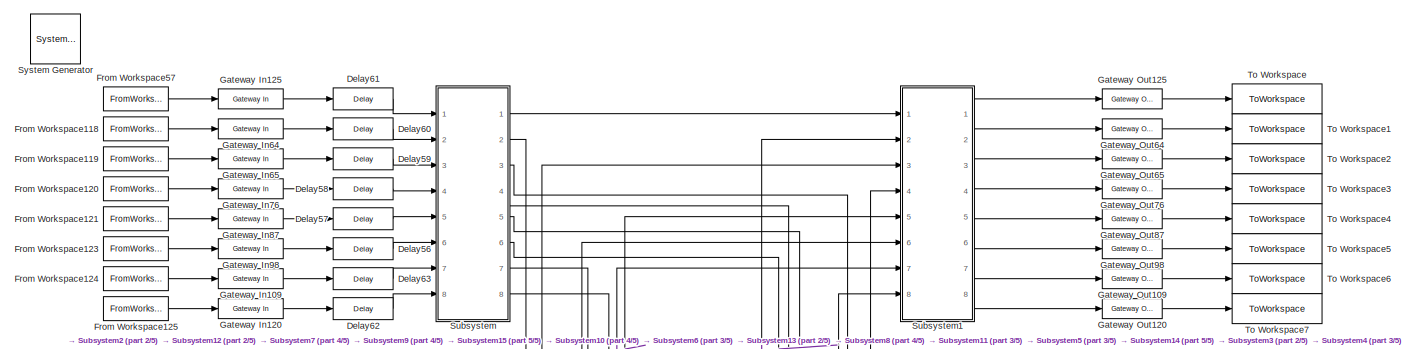
[diagram: root canvas - part 1/5, full width, top band]
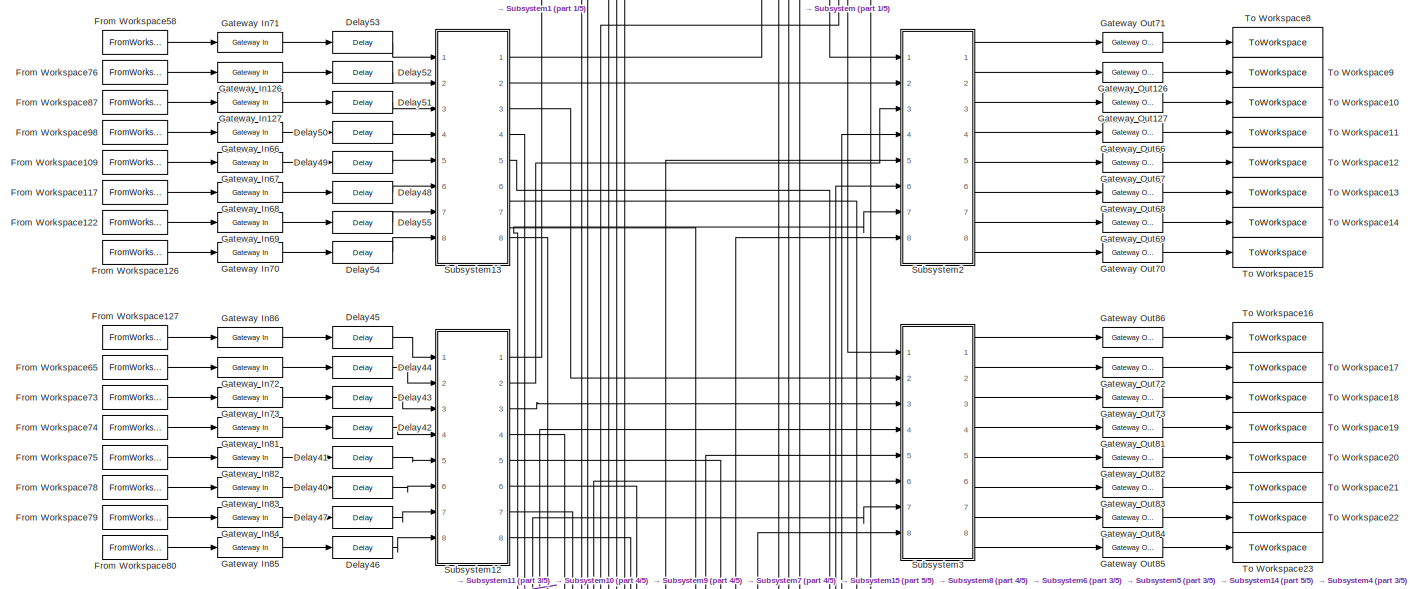
[diagram: root canvas - part 2/5, full width, top band]
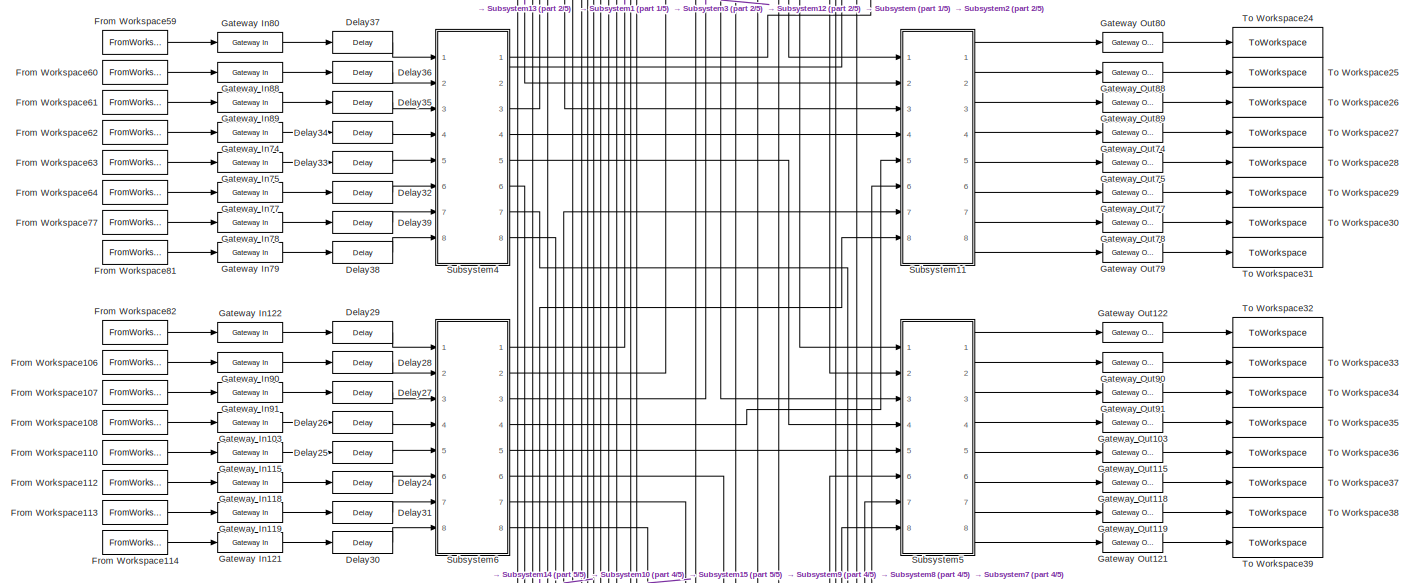
[diagram: root canvas - part 3/5, full width, middle band]
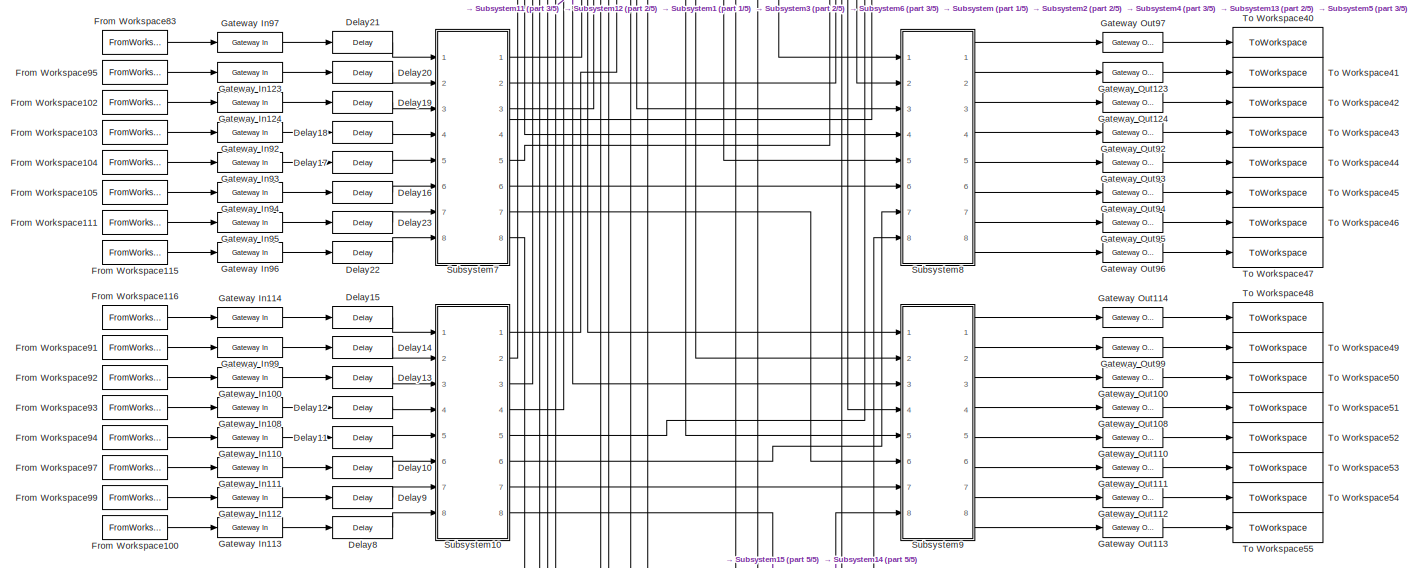
[diagram: root canvas - part 4/5, full width, bottom band]
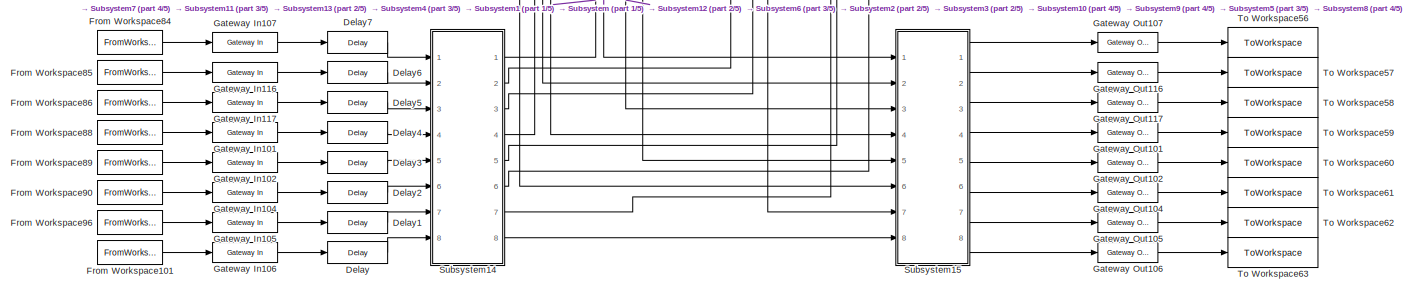
[diagram: root canvas - part 5/5, full width, bottom band]
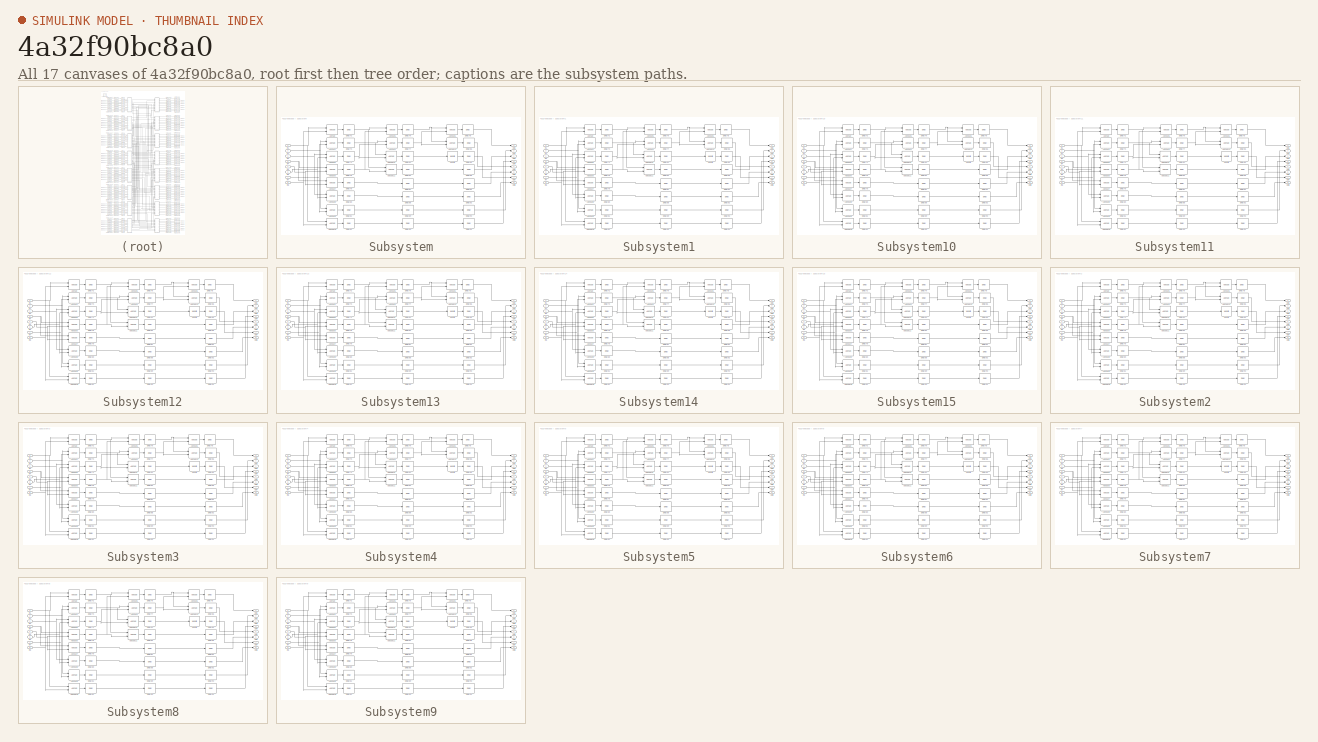
[diagram: thumbnail index - all 17 canvases of the model, root first then tree order]
MODEL slx_4a32f90bc8a0
KIND model
CONFIG AbsTol = auto
CONFIG EnableMultiTasking = off
CONFIG FixedStep = auto
CONFIG MaxStep = auto
CONFIG MinStep = auto
CONFIG RelTol = 1e-3
CONFIG SampleTimeConstraint = Unconstrained
CONFIG SolverName = VariableStepAuto
CONFIG StartTime = 0.0
CONFIG StopTime = 10.0
BLOCK [Reference]  System Generator  REF=xbsIndex_r4/ System Generator
  AttributesFormatString = System\nGenerator
  Ports = []
  SourceBlock = xbsIndex_r4/ System Generator
  SourceType = Xilinx System Generator Block
  Tag = genX
  UserDataPersistent = on
BLOCK [Reference] Delay  REF=xbsIndex_r4/Delay
  Ports = [1, 1]
  SourceBlock = xbsIndex_r4/Delay
  SourceType = Xilinx Delay Block
BLOCK [Reference] Delay1  REF=xbsIndex_r4/Delay
  Ports = [1, 1]
  SourceBlock = xbsIndex_r4/Delay
  SourceType = Xilinx Delay Block
BLOCK [Reference] Delay10  REF=xbsIndex_r4/Delay
  Ports = [1, 1]
  SourceBlock = xbsIndex_r4/Delay
  SourceType = Xilinx Delay Block
BLOCK [Reference] Delay11  REF=xbsIndex_r4/Delay
  Ports = [1, 1]
  SourceBlock = xbsIndex_r4/Delay
  SourceType = Xilinx Delay Block
BLOCK [Reference] Delay12  REF=xbsIndex_r4/Delay
  Ports = [1, 1]
  SourceBlock = xbsIndex_r4/Delay
  SourceType = Xilinx Delay Block
BLOCK [Reference] Delay13  REF=xbsIndex_r4/Delay
  Ports = [1, 1]
  SourceBlock = xbsIndex_r4/Delay
  SourceType = Xilinx Delay Block
BLOCK [Reference] Delay14  REF=xbsIndex_r4/Delay
  Ports = [1, 1]
  SourceBlock = xbsIndex_r4/Delay
  SourceType = Xilinx Delay Block
BLOCK [Reference] Delay15  REF=xbsIndex_r4/Delay
  Ports = [1, 1]
  SourceBlock = xbsIndex_r4/Delay
  SourceType = Xilinx Delay Block
BLOCK [Reference] Delay16  REF=xbsIndex_r4/Delay
  Ports = [1, 1]
  SourceBlock = xbsIndex_r4/Delay
  SourceType = Xilinx Delay Block
BLOCK [Reference] Delay17  REF=xbsIndex_r4/Delay
  Ports = [1, 1]
  SourceBlock = xbsIndex_r4/Delay
  SourceType = Xilinx Delay Block
BLOCK [Reference] Delay18  REF=xbsIndex_r4/Delay
  Ports = [1, 1]
  SourceBlock = xbsIndex_r4/Delay
  SourceType = Xilinx Delay Block
BLOCK [Reference] Delay19  REF=xbsIndex_r4/Delay
  Ports = [1, 1]
  SourceBlock = xbsIndex_r4/Delay
  SourceType = Xilinx Delay Block
BLOCK [Reference] Delay2  REF=xbsIndex_r4/Delay
  Ports = [1, 1]
  SourceBlock = xbsIndex_r4/Delay
  SourceType = Xilinx Delay Block
BLOCK [Reference] Delay20  REF=xbsIndex_r4/Delay
  Ports = [1, 1]
  SourceBlock = xbsIndex_r4/Delay
  SourceType = Xilinx Delay Block
BLOCK [Reference] Delay21  REF=xbsIndex_r4/Delay
  Ports = [1, 1]
  SourceBlock = xbsIndex_r4/Delay
  SourceType = Xilinx Delay Block
BLOCK [Reference] Delay22  REF=xbsIndex_r4/Delay
  Ports = [1, 1]
  SourceBlock = xbsIndex_r4/Delay
  SourceType = Xilinx Delay Block
BLOCK [Reference] Delay23  REF=xbsIndex_r4/Delay
  Ports = [1, 1]
  SourceBlock = xbsIndex_r4/Delay
  SourceType = Xilinx Delay Block
BLOCK [Reference] Delay24  REF=xbsIndex_r4/Delay
  Ports = [1, 1]
  SourceBlock = xbsIndex_r4/Delay
  SourceType = Xilinx Delay Block
BLOCK [Reference] Delay25  REF=xbsIndex_r4/Delay
  Ports = [1, 1]
  SourceBlock = xbsIndex_r4/Delay
  SourceType = Xilinx Delay Block
BLOCK [Reference] Delay26  REF=xbsIndex_r4/Delay
  Ports = [1, 1]
  SourceBlock = xbsIndex_r4/Delay
  SourceType = Xilinx Delay Block
BLOCK [Reference] Delay27  REF=xbsIndex_r4/Delay
  Ports = [1, 1]
  SourceBlock = xbsIndex_r4/Delay
  SourceType = Xilinx Delay Block
BLOCK [Reference] Delay28  REF=xbsIndex_r4/Delay
  Ports = [1, 1]
  SourceBlock = xbsIndex_r4/Delay
  SourceType = Xilinx Delay Block
BLOCK [Reference] Delay29  REF=xbsIndex_r4/Delay
  Ports = [1, 1]
  SourceBlock = xbsIndex_r4/Delay
  SourceType = Xilinx Delay Block
BLOCK [Reference] Delay3  REF=xbsIndex_r4/Delay
  Ports = [1, 1]
  SourceBlock = xbsIndex_r4/Delay
  SourceType = Xilinx Delay Block
BLOCK [Reference] Delay30  REF=xbsIndex_r4/Delay
  Ports = [1, 1]
  SourceBlock = xbsIndex_r4/Delay
  SourceType = Xilinx Delay Block
BLOCK [Reference] Delay31  REF=xbsIndex_r4/Delay
  Ports = [1, 1]
  SourceBlock = xbsIndex_r4/Delay
  SourceType = Xilinx Delay Block
BLOCK [Reference] Delay32  REF=xbsIndex_r4/Delay
  Ports = [1, 1]
  SourceBlock = xbsIndex_r4/Delay
  SourceType = Xilinx Delay Block
BLOCK [Reference] Delay33  REF=xbsIndex_r4/Delay
  Ports = [1, 1]
  SourceBlock = xbsIndex_r4/Delay
  SourceType = Xilinx Delay Block
BLOCK [Reference] Delay34  REF=xbsIndex_r4/Delay
  Ports = [1, 1]
  SourceBlock = xbsIndex_r4/Delay
  SourceType = Xilinx Delay Block
BLOCK [Reference] Delay35  REF=xbsIndex_r4/Delay
  Ports = [1, 1]
  SourceBlock = xbsIndex_r4/Delay
  SourceType = Xilinx Delay Block
BLOCK [Reference] Delay36  REF=xbsIndex_r4/Delay
  Ports = [1, 1]
  SourceBlock = xbsIndex_r4/Delay
  SourceType = Xilinx Delay Block
BLOCK [Reference] Delay37  REF=xbsIndex_r4/Delay
  Ports = [1, 1]
  SourceBlock = xbsIndex_r4/Delay
  SourceType = Xilinx Delay Block
BLOCK [Reference] Delay38  REF=xbsIndex_r4/Delay
  Ports = [1, 1]
  SourceBlock = xbsIndex_r4/Delay
  SourceType = Xilinx Delay Block
BLOCK [Reference] Delay39  REF=xbsIndex_r4/Delay
  Ports = [1, 1]
  SourceBlock = xbsIndex_r4/Delay
  SourceType = Xilinx Delay Block
BLOCK [Reference] Delay4  REF=xbsIndex_r4/Delay
  Ports = [1, 1]
  SourceBlock = xbsIndex_r4/Delay
  SourceType = Xilinx Delay Block
BLOCK [Reference] Delay40  REF=xbsIndex_r4/Delay
  Ports = [1, 1]
  SourceBlock = xbsIndex_r4/Delay
  SourceType = Xilinx Delay Block
BLOCK [Reference] Delay41  REF=xbsIndex_r4/Delay
  Ports = [1, 1]
  SourceBlock = xbsIndex_r4/Delay
  SourceType = Xilinx Delay Block
BLOCK [Reference] Delay42  REF=xbsIndex_r4/Delay
  Ports = [1, 1]
  SourceBlock = xbsIndex_r4/Delay
  SourceType = Xilinx Delay Block
BLOCK [Reference] Delay43  REF=xbsIndex_r4/Delay
  Ports = [1, 1]
  SourceBlock = xbsIndex_r4/Delay
  SourceType = Xilinx Delay Block
BLOCK [Reference] Delay44  REF=xbsIndex_r4/Delay
  Ports = [1, 1]
  SourceBlock = xbsIndex_r4/Delay
  SourceType = Xilinx Delay Block
BLOCK [Reference] Delay45  REF=xbsIndex_r4/Delay
  Ports = [1, 1]
  SourceBlock = xbsIndex_r4/Delay
  SourceType = Xilinx Delay Block
BLOCK [Reference] Delay46  REF=xbsIndex_r4/Delay
  Ports = [1, 1]
  SourceBlock = xbsIndex_r4/Delay
  SourceType = Xilinx Delay Block
BLOCK [Reference] Delay47  REF=xbsIndex_r4/Delay
  Ports = [1, 1]
  SourceBlock = xbsIndex_r4/Delay
  SourceType = Xilinx Delay Block
BLOCK [Reference] Delay48  REF=xbsIndex_r4/Delay
  Ports = [1, 1]
  SourceBlock = xbsIndex_r4/Delay
  SourceType = Xilinx Delay Block
BLOCK [Reference] Delay49  REF=xbsIndex_r4/Delay
  Ports = [1, 1]
  SourceBlock = xbsIndex_r4/Delay
  SourceType = Xilinx Delay Block
BLOCK [Reference] Delay5  REF=xbsIndex_r4/Delay
  Ports = [1, 1]
  SourceBlock = xbsIndex_r4/Delay
  SourceType = Xilinx Delay Block
BLOCK [Reference] Delay50  REF=xbsIndex_r4/Delay
  Ports = [1, 1]
  SourceBlock = xbsIndex_r4/Delay
  SourceType = Xilinx Delay Block
BLOCK [Reference] Delay51  REF=xbsIndex_r4/Delay
  Ports = [1, 1]
  SourceBlock = xbsIndex_r4/Delay
  SourceType = Xilinx Delay Block
BLOCK [Reference] Delay52  REF=xbsIndex_r4/Delay
  Ports = [1, 1]
  SourceBlock = xbsIndex_r4/Delay
  SourceType = Xilinx Delay Block
BLOCK [Reference] Delay53  REF=xbsIndex_r4/Delay
  Ports = [1, 1]
  SourceBlock = xbsIndex_r4/Delay
  SourceType = Xilinx Delay Block
BLOCK [Reference] Delay54  REF=xbsIndex_r4/Delay
  Ports = [1, 1]
  SourceBlock = xbsIndex_r4/Delay
  SourceType = Xilinx Delay Block
BLOCK [Reference] Delay55  REF=xbsIndex_r4/Delay
  Ports = [1, 1]
  SourceBlock = xbsIndex_r4/Delay
  SourceType = Xilinx Delay Block
BLOCK [Reference] Delay56  REF=xbsIndex_r4/Delay
  Ports = [1, 1]
  SourceBlock = xbsIndex_r4/Delay
  SourceType = Xilinx Delay Block
BLOCK [Reference] Delay57  REF=xbsIndex_r4/Delay
  Ports = [1, 1]
  SourceBlock = xbsIndex_r4/Delay
  SourceType = Xilinx Delay Block
BLOCK [Reference] Delay58  REF=xbsIndex_r4/Delay
  Ports = [1, 1]
  SourceBlock = xbsIndex_r4/Delay
  SourceType = Xilinx Delay Block
BLOCK [Reference] Delay59  REF=xbsIndex_r4/Delay
  Ports = [1, 1]
  SourceBlock = xbsIndex_r4/Delay
  SourceType = Xilinx Delay Block
BLOCK [Reference] Delay6  REF=xbsIndex_r4/Delay
  Ports = [1, 1]
  SourceBlock = xbsIndex_r4/Delay
  SourceType = Xilinx Delay Block
BLOCK [Reference] Delay60  REF=xbsIndex_r4/Delay
  Ports = [1, 1]
  SourceBlock = xbsIndex_r4/Delay
  SourceType = Xilinx Delay Block
BLOCK [Reference] Delay61  REF=xbsIndex_r4/Delay
  Ports = [1, 1]
  SourceBlock = xbsIndex_r4/Delay
  SourceType = Xilinx Delay Block
BLOCK [Reference] Delay62  REF=xbsIndex_r4/Delay
  Ports = [1, 1]
  SourceBlock = xbsIndex_r4/Delay
  SourceType = Xilinx Delay Block
BLOCK [Reference] Delay63  REF=xbsIndex_r4/Delay
  Ports = [1, 1]
  SourceBlock = xbsIndex_r4/Delay
  SourceType = Xilinx Delay Block
BLOCK [Reference] Delay7  REF=xbsIndex_r4/Delay
  Ports = [1, 1]
  SourceBlock = xbsIndex_r4/Delay
  SourceType = Xilinx Delay Block
BLOCK [Reference] Delay8  REF=xbsIndex_r4/Delay
  Ports = [1, 1]
  SourceBlock = xbsIndex_r4/Delay
  SourceType = Xilinx Delay Block
BLOCK [Reference] Delay9  REF=xbsIndex_r4/Delay
  Ports = [1, 1]
  SourceBlock = xbsIndex_r4/Delay
  SourceType = Xilinx Delay Block
BLOCK [FromWorkspace] From Workspace100
  VariableName = g8
BLOCK [FromWorkspace] From Workspace101
  VariableName = h8
BLOCK [FromWorkspace] From Workspace102
  VariableName = f3
BLOCK [FromWorkspace] From Workspace103
  VariableName = f4
BLOCK [FromWorkspace] From Workspace104
  VariableName = f5
BLOCK [FromWorkspace] From Workspace105
  VariableName = f6
BLOCK [FromWorkspace] From Workspace106
  VariableName = e2
BLOCK [FromWorkspace] From Workspace107
  VariableName = e3
BLOCK [FromWorkspace] From Workspace108
  VariableName = e4
BLOCK [FromWorkspace] From Workspace109
  VariableName = b5
BLOCK [FromWorkspace] From Workspace110
  VariableName = e5
BLOCK [FromWorkspace] From Workspace111
  VariableName = f7
BLOCK [FromWorkspace] From Workspace112
  VariableName = e6
BLOCK [FromWorkspace] From Workspace113
  VariableName = e7
BLOCK [FromWorkspace] From Workspace114
  VariableName = e8
BLOCK [FromWorkspace] From Workspace115
  VariableName = f8
BLOCK [FromWorkspace] From Workspace116
  VariableName = g1
BLOCK [FromWorkspace] From Workspace117
  VariableName = b6
BLOCK [FromWorkspace] From Workspace118
  VariableName = a2
BLOCK [FromWorkspace] From Workspace119
  VariableName = a3
BLOCK [FromWorkspace] From Workspace120
  VariableName = a4
BLOCK [FromWorkspace] From Workspace121
  VariableName = a5
BLOCK [FromWorkspace] From Workspace122
  VariableName = b7
BLOCK [FromWorkspace] From Workspace123
  VariableName = a6
BLOCK [FromWorkspace] From Workspace124
  VariableName = a7
BLOCK [FromWorkspace] From Workspace125
  VariableName = a8
BLOCK [FromWorkspace] From Workspace126
  VariableName = b8
BLOCK [FromWorkspace] From Workspace127
  VariableName = c1
BLOCK [FromWorkspace] From Workspace57
  VariableName = a1
BLOCK [FromWorkspace] From Workspace58
  VariableName = b1
BLOCK [FromWorkspace] From Workspace59
  VariableName = d1
BLOCK [FromWorkspace] From Workspace60
  VariableName = d2
BLOCK [FromWorkspace] From Workspace61
  VariableName = d3
BLOCK [FromWorkspace] From Workspace62
  VariableName = d4
BLOCK [FromWorkspace] From Workspace63
  VariableName = d5
BLOCK [FromWorkspace] From Workspace64
  VariableName = d6
BLOCK [FromWorkspace] From Workspace65
  VariableName = c2
BLOCK [FromWorkspace] From Workspace73
  VariableName = c3
BLOCK [FromWorkspace] From Workspace74
  VariableName = c4
BLOCK [FromWorkspace] From Workspace75
  VariableName = c5
BLOCK [FromWorkspace] From Workspace76
  VariableName = b2
BLOCK [FromWorkspace] From Workspace77
  VariableName = d7
BLOCK [FromWorkspace] From Workspace78
  VariableName = c6
BLOCK [FromWorkspace] From Workspace79
  VariableName = c7
BLOCK [FromWorkspace] From Workspace80
  VariableName = c8
BLOCK [FromWorkspace] From Workspace81
  VariableName = d8
BLOCK [FromWorkspace] From Workspace82
  VariableName = e1
BLOCK [FromWorkspace] From Workspace83
  VariableName = f1
BLOCK [FromWorkspace] From Workspace84
  VariableName = h1
BLOCK [FromWorkspace] From Workspace85
  VariableName = h2
BLOCK [FromWorkspace] From Workspace86
  VariableName = h3
BLOCK [FromWorkspace] From Workspace87
  VariableName = b3
BLOCK [FromWorkspace] From Workspace88
  VariableName = h4
BLOCK [FromWorkspace] From Workspace89
  VariableName = h5
BLOCK [FromWorkspace] From Workspace90
  VariableName = h6
BLOCK [FromWorkspace] From Workspace91
  VariableName = g2
BLOCK [FromWorkspace] From Workspace92
  VariableName = g3
BLOCK [FromWorkspace] From Workspace93
  VariableName = g4
BLOCK [FromWorkspace] From Workspace94
  VariableName = g5
BLOCK [FromWorkspace] From Workspace95
  VariableName = f2
BLOCK [FromWorkspace] From Workspace96
  VariableName = h7
BLOCK [FromWorkspace] From Workspace97
  VariableName = g6
BLOCK [FromWorkspace] From Workspace98
  VariableName = b4
BLOCK [FromWorkspace] From Workspace99
  VariableName = g7
BLOCK [Reference] Gateway In100  REF=xbsIndex_r4/Gateway In
  Ports = [1, 1]
  SourceBlock = xbsIndex_r4/Gateway In
  SourceType = Xilinx Gateway In Block
BLOCK [Reference] Gateway In101  REF=xbsIndex_r4/Gateway In
  Ports = [1, 1]
  SourceBlock = xbsIndex_r4/Gateway In
  SourceType = Xilinx Gateway In Block
BLOCK [Reference] Gateway In102  REF=xbsIndex_r4/Gateway In
  Ports = [1, 1]
  SourceBlock = xbsIndex_r4/Gateway In
  SourceType = Xilinx Gateway In Block
BLOCK [Reference] Gateway In103  REF=xbsIndex_r4/Gateway In
  Ports = [1, 1]
  SourceBlock = xbsIndex_r4/Gateway In
  SourceType = Xilinx Gateway In Block
BLOCK [Reference] Gateway In104  REF=xbsIndex_r4/Gateway In
  Ports = [1, 1]
  SourceBlock = xbsIndex_r4/Gateway In
  SourceType = Xilinx Gateway In Block
BLOCK [Reference] Gateway In105  REF=xbsIndex_r4/Gateway In
  Ports = [1, 1]
  SourceBlock = xbsIndex_r4/Gateway In
  SourceType = Xilinx Gateway In Block
BLOCK [Reference] Gateway In106  REF=xbsIndex_r4/Gateway In
  Ports = [1, 1]
  SourceBlock = xbsIndex_r4/Gateway In
  SourceType = Xilinx Gateway In Block
BLOCK [Reference] Gateway In107  REF=xbsIndex_r4/Gateway In
  Ports = [1, 1]
  SourceBlock = xbsIndex_r4/Gateway In
  SourceType = Xilinx Gateway In Block
BLOCK [Reference] Gateway In108  REF=xbsIndex_r4/Gateway In
  Ports = [1, 1]
  SourceBlock = xbsIndex_r4/Gateway In
  SourceType = Xilinx Gateway In Block
BLOCK [Reference] Gateway In109  REF=xbsIndex_r4/Gateway In
  Ports = [1, 1]
  SourceBlock = xbsIndex_r4/Gateway In
  SourceType = Xilinx Gateway In Block
BLOCK [Reference] Gateway In110  REF=xbsIndex_r4/Gateway In
  Ports = [1, 1]
  SourceBlock = xbsIndex_r4/Gateway In
  SourceType = Xilinx Gateway In Block
BLOCK [Reference] Gateway In111  REF=xbsIndex_r4/Gateway In
  Ports = [1, 1]
  SourceBlock = xbsIndex_r4/Gateway In
  SourceType = Xilinx Gateway In Block
BLOCK [Reference] Gateway In112  REF=xbsIndex_r4/Gateway In
  Ports = [1, 1]
  SourceBlock = xbsIndex_r4/Gateway In
  SourceType = Xilinx Gateway In Block
BLOCK [Reference] Gateway In113  REF=xbsIndex_r4/Gateway In
  Ports = [1, 1]
  SourceBlock = xbsIndex_r4/Gateway In
  SourceType = Xilinx Gateway In Block
BLOCK [Reference] Gateway In114  REF=xbsIndex_r4/Gateway In
  Ports = [1, 1]
  SourceBlock = xbsIndex_r4/Gateway In
  SourceType = Xilinx Gateway In Block
BLOCK [Reference] Gateway In115  REF=xbsIndex_r4/Gateway In
  Ports = [1, 1]
  SourceBlock = xbsIndex_r4/Gateway In
  SourceType = Xilinx Gateway In Block
BLOCK [Reference] Gateway In116  REF=xbsIndex_r4/Gateway In
  Ports = [1, 1]
  SourceBlock = xbsIndex_r4/Gateway In
  SourceType = Xilinx Gateway In Block
BLOCK [Reference] Gateway In117  REF=xbsIndex_r4/Gateway In
  Ports = [1, 1]
  SourceBlock = xbsIndex_r4/Gateway In
  SourceType = Xilinx Gateway In Block
BLOCK [Reference] Gateway In118  REF=xbsIndex_r4/Gateway In
  Ports = [1, 1]
  SourceBlock = xbsIndex_r4/Gateway In
  SourceType = Xilinx Gateway In Block
BLOCK [Reference] Gateway In119  REF=xbsIndex_r4/Gateway In
  Ports = [1, 1]
  SourceBlock = xbsIndex_r4/Gateway In
  SourceType = Xilinx Gateway In Block
BLOCK [Reference] Gateway In120  REF=xbsIndex_r4/Gateway In
  Ports = [1, 1]
  SourceBlock = xbsIndex_r4/Gateway In
  SourceType = Xilinx Gateway In Block
BLOCK [Reference] Gateway In121  REF=xbsIndex_r4/Gateway In
  Ports = [1, 1]
  SourceBlock = xbsIndex_r4/Gateway In
  SourceType = Xilinx Gateway In Block
BLOCK [Reference] Gateway In122  REF=xbsIndex_r4/Gateway In
  Ports = [1, 1]
  SourceBlock = xbsIndex_r4/Gateway In
  SourceType = Xilinx Gateway In Block
BLOCK [Reference] Gateway In123  REF=xbsIndex_r4/Gateway In
  Ports = [1, 1]
  SourceBlock = xbsIndex_r4/Gateway In
  SourceType = Xilinx Gateway In Block
BLOCK [Reference] Gateway In124  REF=xbsIndex_r4/Gateway In
  Ports = [1, 1]
  SourceBlock = xbsIndex_r4/Gateway In
  SourceType = Xilinx Gateway In Block
BLOCK [Reference] Gateway In125  REF=xbsIndex_r4/Gateway In
  Ports = [1, 1]
  SourceBlock = xbsIndex_r4/Gateway In
  SourceType = Xilinx Gateway In Block
BLOCK [Reference] Gateway In126  REF=xbsIndex_r4/Gateway In
  Ports = [1, 1]
  SourceBlock = xbsIndex_r4/Gateway In
  SourceType = Xilinx Gateway In Block
BLOCK [Reference] Gateway In127  REF=xbsIndex_r4/Gateway In
  Ports = [1, 1]
  SourceBlock = xbsIndex_r4/Gateway In
  SourceType = Xilinx Gateway In Block
BLOCK [Reference] Gateway In64  REF=xbsIndex_r4/Gateway In
  Ports = [1, 1]
  SourceBlock = xbsIndex_r4/Gateway In
  SourceType = Xilinx Gateway In Block
BLOCK [Reference] Gateway In65  REF=xbsIndex_r4/Gateway In
  Ports = [1, 1]
  SourceBlock = xbsIndex_r4/Gateway In
  SourceType = Xilinx Gateway In Block
BLOCK [Reference] Gateway In66  REF=xbsIndex_r4/Gateway In
  Ports = [1, 1]
  SourceBlock = xbsIndex_r4/Gateway In
  SourceType = Xilinx Gateway In Block
BLOCK [Reference] Gateway In67  REF=xbsIndex_r4/Gateway In
  Ports = [1, 1]
  SourceBlock = xbsIndex_r4/Gateway In
  SourceType = Xilinx Gateway In Block
BLOCK [Reference] Gateway In68  REF=xbsIndex_r4/Gateway In
  Ports = [1, 1]
  SourceBlock = xbsIndex_r4/Gateway In
  SourceType = Xilinx Gateway In Block
BLOCK [Reference] Gateway In69  REF=xbsIndex_r4/Gateway In
  Ports = [1, 1]
  SourceBlock = xbsIndex_r4/Gateway In
  SourceType = Xilinx Gateway In Block
BLOCK [Reference] Gateway In70  REF=xbsIndex_r4/Gateway In
  Ports = [1, 1]
  SourceBlock = xbsIndex_r4/Gateway In
  SourceType = Xilinx Gateway In Block
BLOCK [Reference] Gateway In71  REF=xbsIndex_r4/Gateway In
  Ports = [1, 1]
  SourceBlock = xbsIndex_r4/Gateway In
  SourceType = Xilinx Gateway In Block
BLOCK [Reference] Gateway In72  REF=xbsIndex_r4/Gateway In
  Ports = [1, 1]
  SourceBlock = xbsIndex_r4/Gateway In
  SourceType = Xilinx Gateway In Block
BLOCK [Reference] Gateway In73  REF=xbsIndex_r4/Gateway In
  Ports = [1, 1]
  SourceBlock = xbsIndex_r4/Gateway In
  SourceType = Xilinx Gateway In Block
BLOCK [Reference] Gateway In74  REF=xbsIndex_r4/Gateway In
  Ports = [1, 1]
  SourceBlock = xbsIndex_r4/Gateway In
  SourceType = Xilinx Gateway In Block
BLOCK [Reference] Gateway In75  REF=xbsIndex_r4/Gateway In
  Ports = [1, 1]
  SourceBlock = xbsIndex_r4/Gateway In
  SourceType = Xilinx Gateway In Block
BLOCK [Reference] Gateway In76  REF=xbsIndex_r4/Gateway In
  Ports = [1, 1]
  SourceBlock = xbsIndex_r4/Gateway In
  SourceType = Xilinx Gateway In Block
BLOCK [Reference] Gateway In77  REF=xbsIndex_r4/Gateway In
  Ports = [1, 1]
  SourceBlock = xbsIndex_r4/Gateway In
  SourceType = Xilinx Gateway In Block
BLOCK [Reference] Gateway In78  REF=xbsIndex_r4/Gateway In
  Ports = [1, 1]
  SourceBlock = xbsIndex_r4/Gateway In
  SourceType = Xilinx Gateway In Block
BLOCK [Reference] Gateway In79  REF=xbsIndex_r4/Gateway In
  Ports = [1, 1]
  SourceBlock = xbsIndex_r4/Gateway In
  SourceType = Xilinx Gateway In Block
BLOCK [Reference] Gateway In80  REF=xbsIndex_r4/Gateway In
  Ports = [1, 1]
  SourceBlock = xbsIndex_r4/Gateway In
  SourceType = Xilinx Gateway In Block
BLOCK [Reference] Gateway In81  REF=xbsIndex_r4/Gateway In
  Ports = [1, 1]
  SourceBlock = xbsIndex_r4/Gateway In
  SourceType = Xilinx Gateway In Block
BLOCK [Reference] Gateway In82  REF=xbsIndex_r4/Gateway In
  Ports = [1, 1]
  SourceBlock = xbsIndex_r4/Gateway In
  SourceType = Xilinx Gateway In Block
BLOCK [Reference] Gateway In83  REF=xbsIndex_r4/Gateway In
  Ports = [1, 1]
  SourceBlock = xbsIndex_r4/Gateway In
  SourceType = Xilinx Gateway In Block
BLOCK [Reference] Gateway In84  REF=xbsIndex_r4/Gateway In
  Ports = [1, 1]
  SourceBlock = xbsIndex_r4/Gateway In
  SourceType = Xilinx Gateway In Block
BLOCK [Reference] Gateway In85  REF=xbsIndex_r4/Gateway In
  Ports = [1, 1]
  SourceBlock = xbsIndex_r4/Gateway In
  SourceType = Xilinx Gateway In Block
BLOCK [Reference] Gateway In86  REF=xbsIndex_r4/Gateway In
  Ports = [1, 1]
  SourceBlock = xbsIndex_r4/Gateway In
  SourceType = Xilinx Gateway In Block
BLOCK [Reference] Gateway In87  REF=xbsIndex_r4/Gateway In
  Ports = [1, 1]
  SourceBlock = xbsIndex_r4/Gateway In
  SourceType = Xilinx Gateway In Block
BLOCK [Reference] Gateway In88  REF=xbsIndex_r4/Gateway In
  Ports = [1, 1]
  SourceBlock = xbsIndex_r4/Gateway In
  SourceType = Xilinx Gateway In Block
BLOCK [Reference] Gateway In89  REF=xbsIndex_r4/Gateway In
  Ports = [1, 1]
  SourceBlock = xbsIndex_r4/Gateway In
  SourceType = Xilinx Gateway In Block
BLOCK [Reference] Gateway In90  REF=xbsIndex_r4/Gateway In
  Ports = [1, 1]
  SourceBlock = xbsIndex_r4/Gateway In
  SourceType = Xilinx Gateway In Block
BLOCK [Reference] Gateway In91  REF=xbsIndex_r4/Gateway In
  Ports = [1, 1]
  SourceBlock = xbsIndex_r4/Gateway In
  SourceType = Xilinx Gateway In Block
BLOCK [Reference] Gateway In92  REF=xbsIndex_r4/Gateway In
  Ports = [1, 1]
  SourceBlock = xbsIndex_r4/Gateway In
  SourceType = Xilinx Gateway In Block
BLOCK [Reference] Gateway In93  REF=xbsIndex_r4/Gateway In
  Ports = [1, 1]
  SourceBlock = xbsIndex_r4/Gateway In
  SourceType = Xilinx Gateway In Block
BLOCK [Reference] Gateway In94  REF=xbsIndex_r4/Gateway In
  Ports = [1, 1]
  SourceBlock = xbsIndex_r4/Gateway In
  SourceType = Xilinx Gateway In Block
BLOCK [Reference] Gateway In95  REF=xbsIndex_r4/Gateway In
  Ports = [1, 1]
  SourceBlock = xbsIndex_r4/Gateway In
  SourceType = Xilinx Gateway In Block
BLOCK [Reference] Gateway In96  REF=xbsIndex_r4/Gateway In
  Ports = [1, 1]
  SourceBlock = xbsIndex_r4/Gateway In
  SourceType = Xilinx Gateway In Block
BLOCK [Reference] Gateway In97  REF=xbsIndex_r4/Gateway In
  Ports = [1, 1]
  SourceBlock = xbsIndex_r4/Gateway In
  SourceType = Xilinx Gateway In Block
BLOCK [Reference] Gateway In98  REF=xbsIndex_r4/Gateway In
  Ports = [1, 1]
  SourceBlock = xbsIndex_r4/Gateway In
  SourceType = Xilinx Gateway In Block
BLOCK [Reference] Gateway In99  REF=xbsIndex_r4/Gateway In
  Ports = [1, 1]
  SourceBlock = xbsIndex_r4/Gateway In
  SourceType = Xilinx Gateway In Block
BLOCK [Reference] Gateway Out100  REF=xbsIndex_r4/Gateway Out
  Ports = [1, 1]
  SourceBlock = xbsIndex_r4/Gateway Out
  SourceType = Xilinx Gateway Out Block
BLOCK [Reference] Gateway Out101  REF=xbsIndex_r4/Gateway Out
  Ports = [1, 1]
  SourceBlock = xbsIndex_r4/Gateway Out
  SourceType = Xilinx Gateway Out Block
BLOCK [Reference] Gateway Out102  REF=xbsIndex_r4/Gateway Out
  Ports = [1, 1]
  SourceBlock = xbsIndex_r4/Gateway Out
  SourceType = Xilinx Gateway Out Block
BLOCK [Reference] Gateway Out103  REF=xbsIndex_r4/Gateway Out
  Ports = [1, 1]
  SourceBlock = xbsIndex_r4/Gateway Out
  SourceType = Xilinx Gateway Out Block
BLOCK [Reference] Gateway Out104  REF=xbsIndex_r4/Gateway Out
  Ports = [1, 1]
  SourceBlock = xbsIndex_r4/Gateway Out
  SourceType = Xilinx Gateway Out Block
BLOCK [Reference] Gateway Out105  REF=xbsIndex_r4/Gateway Out
  Ports = [1, 1]
  SourceBlock = xbsIndex_r4/Gateway Out
  SourceType = Xilinx Gateway Out Block
BLOCK [Reference] Gateway Out106  REF=xbsIndex_r4/Gateway Out
  Ports = [1, 1]
  SourceBlock = xbsIndex_r4/Gateway Out
  SourceType = Xilinx Gateway Out Block
BLOCK [Reference] Gateway Out107  REF=xbsIndex_r4/Gateway Out
  Ports = [1, 1]
  SourceBlock = xbsIndex_r4/Gateway Out
  SourceType = Xilinx Gateway Out Block
BLOCK [Reference] Gateway Out108  REF=xbsIndex_r4/Gateway Out
  Ports = [1, 1]
  SourceBlock = xbsIndex_r4/Gateway Out
  SourceType = Xilinx Gateway Out Block
BLOCK [Reference] Gateway Out109  REF=xbsIndex_r4/Gateway Out
  Ports = [1, 1]
  SourceBlock = xbsIndex_r4/Gateway Out
  SourceType = Xilinx Gateway Out Block
BLOCK [Reference] Gateway Out110  REF=xbsIndex_r4/Gateway Out
  Ports = [1, 1]
  SourceBlock = xbsIndex_r4/Gateway Out
  SourceType = Xilinx Gateway Out Block
BLOCK [Reference] Gateway Out111  REF=xbsIndex_r4/Gateway Out
  Ports = [1, 1]
  SourceBlock = xbsIndex_r4/Gateway Out
  SourceType = Xilinx Gateway Out Block
BLOCK [Reference] Gateway Out112  REF=xbsIndex_r4/Gateway Out
  Ports = [1, 1]
  SourceBlock = xbsIndex_r4/Gateway Out
  SourceType = Xilinx Gateway Out Block
BLOCK [Reference] Gateway Out113  REF=xbsIndex_r4/Gateway Out
  Ports = [1, 1]
  SourceBlock = xbsIndex_r4/Gateway Out
  SourceType = Xilinx Gateway Out Block
BLOCK [Reference] Gateway Out114  REF=xbsIndex_r4/Gateway Out
  Ports = [1, 1]
  SourceBlock = xbsIndex_r4/Gateway Out
  SourceType = Xilinx Gateway Out Block
BLOCK [Reference] Gateway Out115  REF=xbsIndex_r4/Gateway Out
  Ports = [1, 1]
  SourceBlock = xbsIndex_r4/Gateway Out
  SourceType = Xilinx Gateway Out Block
BLOCK [Reference] Gateway Out116  REF=xbsIndex_r4/Gateway Out
  Ports = [1, 1]
  SourceBlock = xbsIndex_r4/Gateway Out
  SourceType = Xilinx Gateway Out Block
BLOCK [Reference] Gateway Out117  REF=xbsIndex_r4/Gateway Out
  Ports = [1, 1]
  SourceBlock = xbsIndex_r4/Gateway Out
  SourceType = Xilinx Gateway Out Block
BLOCK [Reference] Gateway Out118  REF=xbsIndex_r4/Gateway Out
  Ports = [1, 1]
  SourceBlock = xbsIndex_r4/Gateway Out
  SourceType = Xilinx Gateway Out Block
BLOCK [Reference] Gateway Out119  REF=xbsIndex_r4/Gateway Out
  Ports = [1, 1]
  SourceBlock = xbsIndex_r4/Gateway Out
  SourceType = Xilinx Gateway Out Block
BLOCK [Reference] Gateway Out120  REF=xbsIndex_r4/Gateway Out
  Ports = [1, 1]
  SourceBlock = xbsIndex_r4/Gateway Out
  SourceType = Xilinx Gateway Out Block
BLOCK [Reference] Gateway Out121  REF=xbsIndex_r4/Gateway Out
  Ports = [1, 1]
  SourceBlock = xbsIndex_r4/Gateway Out
  SourceType = Xilinx Gateway Out Block
BLOCK [Reference] Gateway Out122  REF=xbsIndex_r4/Gateway Out
  Ports = [1, 1]
  SourceBlock = xbsIndex_r4/Gateway Out
  SourceType = Xilinx Gateway Out Block
BLOCK [Reference] Gateway Out123  REF=xbsIndex_r4/Gateway Out
  Ports = [1, 1]
  SourceBlock = xbsIndex_r4/Gateway Out
  SourceType = Xilinx Gateway Out Block
BLOCK [Reference] Gateway Out124  REF=xbsIndex_r4/Gateway Out
  Ports = [1, 1]
  SourceBlock = xbsIndex_r4/Gateway Out
  SourceType = Xilinx Gateway Out Block
BLOCK [Reference] Gateway Out125  REF=xbsIndex_r4/Gateway Out
  Ports = [1, 1]
  SourceBlock = xbsIndex_r4/Gateway Out
  SourceType = Xilinx Gateway Out Block
BLOCK [Reference] Gateway Out126  REF=xbsIndex_r4/Gateway Out
  Ports = [1, 1]
  SourceBlock = xbsIndex_r4/Gateway Out
  SourceType = Xilinx Gateway Out Block
BLOCK [Reference] Gateway Out127  REF=xbsIndex_r4/Gateway Out
  Ports = [1, 1]
  SourceBlock = xbsIndex_r4/Gateway Out
  SourceType = Xilinx Gateway Out Block
BLOCK [Reference] Gateway Out64  REF=xbsIndex_r4/Gateway Out
  Ports = [1, 1]
  SourceBlock = xbsIndex_r4/Gateway Out
  SourceType = Xilinx Gateway Out Block
BLOCK [Reference] Gateway Out65  REF=xbsIndex_r4/Gateway Out
  Ports = [1, 1]
  SourceBlock = xbsIndex_r4/Gateway Out
  SourceType = Xilinx Gateway Out Block
BLOCK [Reference] Gateway Out66  REF=xbsIndex_r4/Gateway Out
  Ports = [1, 1]
  SourceBlock = xbsIndex_r4/Gateway Out
  SourceType = Xilinx Gateway Out Block
BLOCK [Reference] Gateway Out67  REF=xbsIndex_r4/Gateway Out
  Ports = [1, 1]
  SourceBlock = xbsIndex_r4/Gateway Out
  SourceType = Xilinx Gateway Out Block
BLOCK [Reference] Gateway Out68  REF=xbsIndex_r4/Gateway Out
  Ports = [1, 1]
  SourceBlock = xbsIndex_r4/Gateway Out
  SourceType = Xilinx Gateway Out Block
BLOCK [Reference] Gateway Out69  REF=xbsIndex_r4/Gateway Out
  Ports = [1, 1]
  SourceBlock = xbsIndex_r4/Gateway Out
  SourceType = Xilinx Gateway Out Block
BLOCK [Reference] Gateway Out70  REF=xbsIndex_r4/Gateway Out
  Ports = [1, 1]
  SourceBlock = xbsIndex_r4/Gateway Out
  SourceType = Xilinx Gateway Out Block
BLOCK [Reference] Gateway Out71  REF=xbsIndex_r4/Gateway Out
  Ports = [1, 1]
  SourceBlock = xbsIndex_r4/Gateway Out
  SourceType = Xilinx Gateway Out Block
BLOCK [Reference] Gateway Out72  REF=xbsIndex_r4/Gateway Out
  Ports = [1, 1]
  SourceBlock = xbsIndex_r4/Gateway Out
  SourceType = Xilinx Gateway Out Block
BLOCK [Reference] Gateway Out73  REF=xbsIndex_r4/Gateway Out
  Ports = [1, 1]
  SourceBlock = xbsIndex_r4/Gateway Out
  SourceType = Xilinx Gateway Out Block
BLOCK [Reference] Gateway Out74  REF=xbsIndex_r4/Gateway Out
  Ports = [1, 1]
  SourceBlock = xbsIndex_r4/Gateway Out
  SourceType = Xilinx Gateway Out Block
BLOCK [Reference] Gateway Out75  REF=xbsIndex_r4/Gateway Out
  Ports = [1, 1]
  SourceBlock = xbsIndex_r4/Gateway Out
  SourceType = Xilinx Gateway Out Block
BLOCK [Reference] Gateway Out76  REF=xbsIndex_r4/Gateway Out
  Ports = [1, 1]
  SourceBlock = xbsIndex_r4/Gateway Out
  SourceType = Xilinx Gateway Out Block
BLOCK [Reference] Gateway Out77  REF=xbsIndex_r4/Gateway Out
  Ports = [1, 1]
  SourceBlock = xbsIndex_r4/Gateway Out
  SourceType = Xilinx Gateway Out Block
BLOCK [Reference] Gateway Out78  REF=xbsIndex_r4/Gateway Out
  Ports = [1, 1]
  SourceBlock = xbsIndex_r4/Gateway Out
  SourceType = Xilinx Gateway Out Block
BLOCK [Reference] Gateway Out79  REF=xbsIndex_r4/Gateway Out
  Ports = [1, 1]
  SourceBlock = xbsIndex_r4/Gateway Out
  SourceType = Xilinx Gateway Out Block
BLOCK [Reference] Gateway Out80  REF=xbsIndex_r4/Gateway Out
  Ports = [1, 1]
  SourceBlock = xbsIndex_r4/Gateway Out
  SourceType = Xilinx Gateway Out Block
BLOCK [Reference] Gateway Out81  REF=xbsIndex_r4/Gateway Out
  Ports = [1, 1]
  SourceBlock = xbsIndex_r4/Gateway Out
  SourceType = Xilinx Gateway Out Block
BLOCK [Reference] Gateway Out82  REF=xbsIndex_r4/Gateway Out
  Ports = [1, 1]
  SourceBlock = xbsIndex_r4/Gateway Out
  SourceType = Xilinx Gateway Out Block
BLOCK [Reference] Gateway Out83  REF=xbsIndex_r4/Gateway Out
  Ports = [1, 1]
  SourceBlock = xbsIndex_r4/Gateway Out
  SourceType = Xilinx Gateway Out Block
BLOCK [Reference] Gateway Out84  REF=xbsIndex_r4/Gateway Out
  Ports = [1, 1]
  SourceBlock = xbsIndex_r4/Gateway Out
  SourceType = Xilinx Gateway Out Block
BLOCK [Reference] Gateway Out85  REF=xbsIndex_r4/Gateway Out
  Ports = [1, 1]
  SourceBlock = xbsIndex_r4/Gateway Out
  SourceType = Xilinx Gateway Out Block
BLOCK [Reference] Gateway Out86  REF=xbsIndex_r4/Gateway Out
  Ports = [1, 1]
  SourceBlock = xbsIndex_r4/Gateway Out
  SourceType = Xilinx Gateway Out Block
BLOCK [Reference] Gateway Out87  REF=xbsIndex_r4/Gateway Out
  Ports = [1, 1]
  SourceBlock = xbsIndex_r4/Gateway Out
  SourceType = Xilinx Gateway Out Block
BLOCK [Reference] Gateway Out88  REF=xbsIndex_r4/Gateway Out
  Ports = [1, 1]
  SourceBlock = xbsIndex_r4/Gateway Out
  SourceType = Xilinx Gateway Out Block
BLOCK [Reference] Gateway Out89  REF=xbsIndex_r4/Gateway Out
  Ports = [1, 1]
  SourceBlock = xbsIndex_r4/Gateway Out
  SourceType = Xilinx Gateway Out Block
BLOCK [Reference] Gateway Out90  REF=xbsIndex_r4/Gateway Out
  Ports = [1, 1]
  SourceBlock = xbsIndex_r4/Gateway Out
  SourceType = Xilinx Gateway Out Block
BLOCK [Reference] Gateway Out91  REF=xbsIndex_r4/Gateway Out
  Ports = [1, 1]
  SourceBlock = xbsIndex_r4/Gateway Out
  SourceType = Xilinx Gateway Out Block
BLOCK [Reference] Gateway Out92  REF=xbsIndex_r4/Gateway Out
  Ports = [1, 1]
  SourceBlock = xbsIndex_r4/Gateway Out
  SourceType = Xilinx Gateway Out Block
BLOCK [Reference] Gateway Out93  REF=xbsIndex_r4/Gateway Out
  Ports = [1, 1]
  SourceBlock = xbsIndex_r4/Gateway Out
  SourceType = Xilinx Gateway Out Block
BLOCK [Reference] Gateway Out94  REF=xbsIndex_r4/Gateway Out
  Ports = [1, 1]
  SourceBlock = xbsIndex_r4/Gateway Out
  SourceType = Xilinx Gateway Out Block
BLOCK [Reference] Gateway Out95  REF=xbsIndex_r4/Gateway Out
  Ports = [1, 1]
  SourceBlock = xbsIndex_r4/Gateway Out
  SourceType = Xilinx Gateway Out Block
BLOCK [Reference] Gateway Out96  REF=xbsIndex_r4/Gateway Out
  Ports = [1, 1]
  SourceBlock = xbsIndex_r4/Gateway Out
  SourceType = Xilinx Gateway Out Block
BLOCK [Reference] Gateway Out97  REF=xbsIndex_r4/Gateway Out
  Ports = [1, 1]
  SourceBlock = xbsIndex_r4/Gateway Out
  SourceType = Xilinx Gateway Out Block
BLOCK [Reference] Gateway Out98  REF=xbsIndex_r4/Gateway Out
  Ports = [1, 1]
  SourceBlock = xbsIndex_r4/Gateway Out
  SourceType = Xilinx Gateway Out Block
BLOCK [Reference] Gateway Out99  REF=xbsIndex_r4/Gateway Out
  Ports = [1, 1]
  SourceBlock = xbsIndex_r4/Gateway Out
  SourceType = Xilinx Gateway Out Block
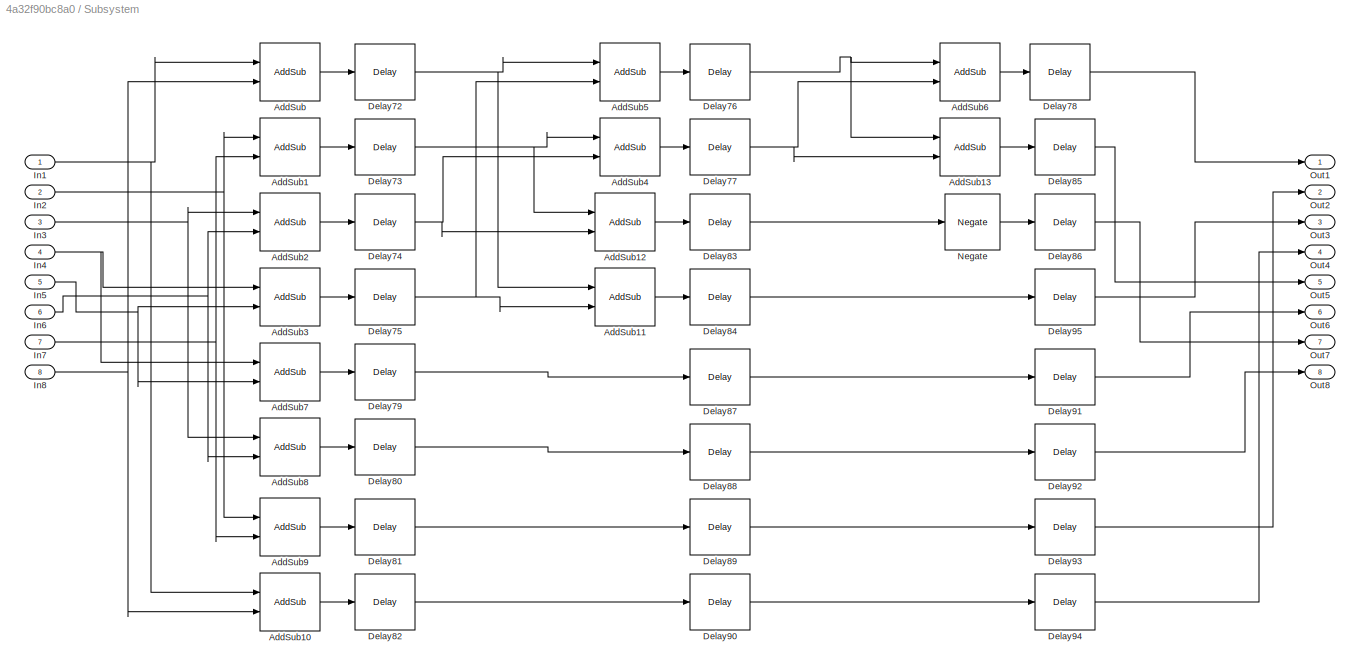
BLOCK [SubSystem] Subsystem
  Ports = [8, 8]
  RequestExecContextInheritance = off
BLOCK [Reference] Subsystem/AddSub  REF=xbsIndex_r4/AddSub
  Ports = [2, 1]
  SourceBlock = xbsIndex_r4/AddSub
  SourceType = Xilinx Adder/Subtracter Block
BLOCK [Reference] Subsystem/AddSub1  REF=xbsIndex_r4/AddSub
  Ports = [2, 1]
  SourceBlock = xbsIndex_r4/AddSub
  SourceType = Xilinx Adder/Subtracter Block
BLOCK [Reference] Subsystem/AddSub10  REF=xbsIndex_r4/AddSub
  Ports = [2, 1]
  SourceBlock = xbsIndex_r4/AddSub
  SourceType = Xilinx Adder/Subtracter Block
BLOCK [Reference] Subsystem/AddSub11  REF=xbsIndex_r4/AddSub
  Ports = [2, 1]
  SourceBlock = xbsIndex_r4/AddSub
  SourceType = Xilinx Adder/Subtracter Block
BLOCK [Reference] Subsystem/AddSub12  REF=xbsIndex_r4/AddSub
  Ports = [2, 1]
  SourceBlock = xbsIndex_r4/AddSub
  SourceType = Xilinx Adder/Subtracter Block
BLOCK [Reference] Subsystem/AddSub13  REF=xbsIndex_r4/AddSub
  Ports = [2, 1]
  SourceBlock = xbsIndex_r4/AddSub
  SourceType = Xilinx Adder/Subtracter Block
BLOCK [Reference] Subsystem/AddSub2  REF=xbsIndex_r4/AddSub
  Ports = [2, 1]
  SourceBlock = xbsIndex_r4/AddSub
  SourceType = Xilinx Adder/Subtracter Block
BLOCK [Reference] Subsystem/AddSub3  REF=xbsIndex_r4/AddSub
  Ports = [2, 1]
  SourceBlock = xbsIndex_r4/AddSub
  SourceType = Xilinx Adder/Subtracter Block
BLOCK [Reference] Subsystem/AddSub4  REF=xbsIndex_r4/AddSub
  Ports = [2, 1]
  SourceBlock = xbsIndex_r4/AddSub
  SourceType = Xilinx Adder/Subtracter Block
BLOCK [Reference] Subsystem/AddSub5  REF=xbsIndex_r4/AddSub
  Ports = [2, 1]
  SourceBlock = xbsIndex_r4/AddSub
  SourceType = Xilinx Adder/Subtracter Block
BLOCK [Reference] Subsystem/AddSub6  REF=xbsIndex_r4/AddSub
  Ports = [2, 1]
  SourceBlock = xbsIndex_r4/AddSub
  SourceType = Xilinx Adder/Subtracter Block
BLOCK [Reference] Subsystem/AddSub7  REF=xbsIndex_r4/AddSub
  Ports = [2, 1]
  SourceBlock = xbsIndex_r4/AddSub
  SourceType = Xilinx Adder/Subtracter Block
BLOCK [Reference] Subsystem/AddSub8  REF=xbsIndex_r4/AddSub
  Ports = [2, 1]
  SourceBlock = xbsIndex_r4/AddSub
  SourceType = Xilinx Adder/Subtracter Block
BLOCK [Reference] Subsystem/AddSub9  REF=xbsIndex_r4/AddSub
  Ports = [2, 1]
  SourceBlock = xbsIndex_r4/AddSub
  SourceType = Xilinx Adder/Subtracter Block
BLOCK [Reference] Subsystem/Delay72  REF=xbsIndex_r4/Delay
  Ports = [1, 1]
  SourceBlock = xbsIndex_r4/Delay
  SourceType = Xilinx Delay Block
BLOCK [Reference] Subsystem/Delay73  REF=xbsIndex_r4/Delay
  Ports = [1, 1]
  SourceBlock = xbsIndex_r4/Delay
  SourceType = Xilinx Delay Block
BLOCK [Reference] Subsystem/Delay74  REF=xbsIndex_r4/Delay
  Ports = [1, 1]
  SourceBlock = xbsIndex_r4/Delay
  SourceType = Xilinx Delay Block
BLOCK [Reference] Subsystem/Delay75  REF=xbsIndex_r4/Delay
  Ports = [1, 1]
  SourceBlock = xbsIndex_r4/Delay
  SourceType = Xilinx Delay Block
BLOCK [Reference] Subsystem/Delay76  REF=xbsIndex_r4/Delay
  Ports = [1, 1]
  SourceBlock = xbsIndex_r4/Delay
  SourceType = Xilinx Delay Block
BLOCK [Reference] Subsystem/Delay77  REF=xbsIndex_r4/Delay
  Ports = [1, 1]
  SourceBlock = xbsIndex_r4/Delay
  SourceType = Xilinx Delay Block
BLOCK [Reference] Subsystem/Delay78  REF=xbsIndex_r4/Delay
  Ports = [1, 1]
  SourceBlock = xbsIndex_r4/Delay
  SourceType = Xilinx Delay Block
BLOCK [Reference] Subsystem/Delay79  REF=xbsIndex_r4/Delay
  Ports = [1, 1]
  SourceBlock = xbsIndex_r4/Delay
  SourceType = Xilinx Delay Block
BLOCK [Reference] Subsystem/Delay80  REF=xbsIndex_r4/Delay
  Ports = [1, 1]
  SourceBlock = xbsIndex_r4/Delay
  SourceType = Xilinx Delay Block
BLOCK [Reference] Subsystem/Delay81  REF=xbsIndex_r4/Delay
  Ports = [1, 1]
  SourceBlock = xbsIndex_r4/Delay
  SourceType = Xilinx Delay Block
BLOCK [Reference] Subsystem/Delay82  REF=xbsIndex_r4/Delay
  Ports = [1, 1]
  SourceBlock = xbsIndex_r4/Delay
  SourceType = Xilinx Delay Block
BLOCK [Reference] Subsystem/Delay83  REF=xbsIndex_r4/Delay
  Ports = [1, 1]
  SourceBlock = xbsIndex_r4/Delay
  SourceType = Xilinx Delay Block
BLOCK [Reference] Subsystem/Delay84  REF=xbsIndex_r4/Delay
  Ports = [1, 1]
  SourceBlock = xbsIndex_r4/Delay
  SourceType = Xilinx Delay Block
BLOCK [Reference] Subsystem/Delay85  REF=xbsIndex_r4/Delay
  Ports = [1, 1]
  SourceBlock = xbsIndex_r4/Delay
  SourceType = Xilinx Delay Block
BLOCK [Reference] Subsystem/Delay86  REF=xbsIndex_r4/Delay
  Ports = [1, 1]
  SourceBlock = xbsIndex_r4/Delay
  SourceType = Xilinx Delay Block
BLOCK [Reference] Subsystem/Delay87  REF=xbsIndex_r4/Delay
  Ports = [1, 1]
  SourceBlock = xbsIndex_r4/Delay
  SourceType = Xilinx Delay Block
BLOCK [Reference] Subsystem/Delay88  REF=xbsIndex_r4/Delay
  Ports = [1, 1]
  SourceBlock = xbsIndex_r4/Delay
  SourceType = Xilinx Delay Block
BLOCK [Reference] Subsystem/Delay89  REF=xbsIndex_r4/Delay
  Ports = [1, 1]
  SourceBlock = xbsIndex_r4/Delay
  SourceType = Xilinx Delay Block
BLOCK [Reference] Subsystem/Delay90  REF=xbsIndex_r4/Delay
  Ports = [1, 1]
  SourceBlock = xbsIndex_r4/Delay
  SourceType = Xilinx Delay Block
BLOCK [Reference] Subsystem/Delay91  REF=xbsIndex_r4/Delay
  Ports = [1, 1]
  SourceBlock = xbsIndex_r4/Delay
  SourceType = Xilinx Delay Block
BLOCK [Reference] Subsystem/Delay92  REF=xbsIndex_r4/Delay
  Ports = [1, 1]
  SourceBlock = xbsIndex_r4/Delay
  SourceType = Xilinx Delay Block
BLOCK [Reference] Subsystem/Delay93  REF=xbsIndex_r4/Delay
  Ports = [1, 1]
  SourceBlock = xbsIndex_r4/Delay
  SourceType = Xilinx Delay Block
BLOCK [Reference] Subsystem/Delay94  REF=xbsIndex_r4/Delay
  Ports = [1, 1]
  SourceBlock = xbsIndex_r4/Delay
  SourceType = Xilinx Delay Block
BLOCK [Reference] Subsystem/Delay95  REF=xbsIndex_r4/Delay
  Ports = [1, 1]
  SourceBlock = xbsIndex_r4/Delay
  SourceType = Xilinx Delay Block
BLOCK [Inport] Subsystem/In1
BLOCK [Inport] Subsystem/In2
  Port = 2
BLOCK [Inport] Subsystem/In3
  Port = 3
BLOCK [Inport] Subsystem/In4
  Port = 4
BLOCK [Inport] Subsystem/In5
  Port = 5
BLOCK [Inport] Subsystem/In6
  Port = 6
BLOCK [Inport] Subsystem/In7
  Port = 7
BLOCK [Inport] Subsystem/In8
  Port = 8
BLOCK [Reference] Subsystem/Negate  REF=xbsIndex_r4/Negate
  Ports = [1, 1]
  SourceBlock = xbsIndex_r4/Negate
  SourceType = Xilinx Negate Block Block
BLOCK [Outport] Subsystem/Out1
BLOCK [Outport] Subsystem/Out2
  Port = 2
BLOCK [Outport] Subsystem/Out3
  Port = 3
BLOCK [Outport] Subsystem/Out4
  Port = 4
BLOCK [Outport] Subsystem/Out5
  Port = 5
BLOCK [Outport] Subsystem/Out6
  Port = 6
BLOCK [Outport] Subsystem/Out7
  Port = 7
BLOCK [Outport] Subsystem/Out8
  Port = 8
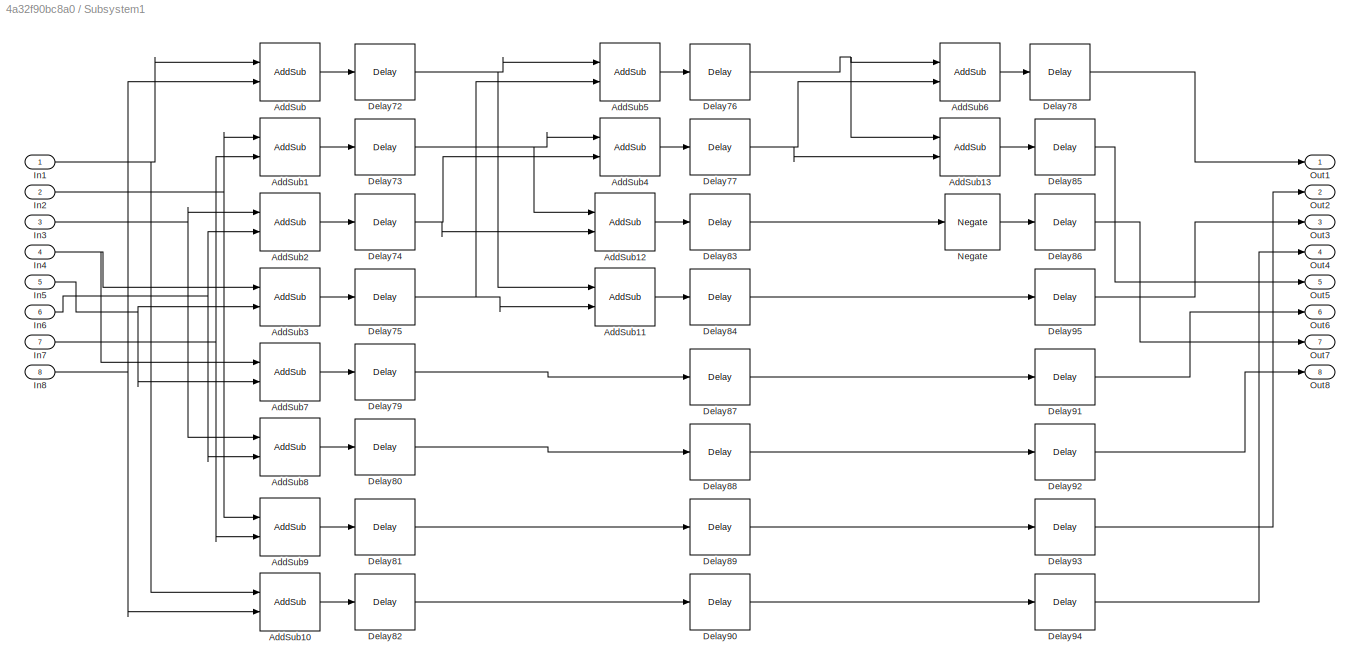
BLOCK [SubSystem] Subsystem1
  Ports = [8, 8]
  RequestExecContextInheritance = off
BLOCK [Reference] Subsystem1/AddSub  REF=xbsIndex_r4/AddSub
  Ports = [2, 1]
  SourceBlock = xbsIndex_r4/AddSub
  SourceType = Xilinx Adder/Subtracter Block
BLOCK [Reference] Subsystem1/AddSub1  REF=xbsIndex_r4/AddSub
  Ports = [2, 1]
  SourceBlock = xbsIndex_r4/AddSub
  SourceType = Xilinx Adder/Subtracter Block
BLOCK [Reference] Subsystem1/AddSub10  REF=xbsIndex_r4/AddSub
  Ports = [2, 1]
  SourceBlock = xbsIndex_r4/AddSub
  SourceType = Xilinx Adder/Subtracter Block
BLOCK [Reference] Subsystem1/AddSub11  REF=xbsIndex_r4/AddSub
  Ports = [2, 1]
  SourceBlock = xbsIndex_r4/AddSub
  SourceType = Xilinx Adder/Subtracter Block
BLOCK [Reference] Subsystem1/AddSub12  REF=xbsIndex_r4/AddSub
  Ports = [2, 1]
  SourceBlock = xbsIndex_r4/AddSub
  SourceType = Xilinx Adder/Subtracter Block
BLOCK [Reference] Subsystem1/AddSub13  REF=xbsIndex_r4/AddSub
  Ports = [2, 1]
  SourceBlock = xbsIndex_r4/AddSub
  SourceType = Xilinx Adder/Subtracter Block
BLOCK [Reference] Subsystem1/AddSub2  REF=xbsIndex_r4/AddSub
  Ports = [2, 1]
  SourceBlock = xbsIndex_r4/AddSub
  SourceType = Xilinx Adder/Subtracter Block
BLOCK [Reference] Subsystem1/AddSub3  REF=xbsIndex_r4/AddSub
  Ports = [2, 1]
  SourceBlock = xbsIndex_r4/AddSub
  SourceType = Xilinx Adder/Subtracter Block
BLOCK [Reference] Subsystem1/AddSub4  REF=xbsIndex_r4/AddSub
  Ports = [2, 1]
  SourceBlock = xbsIndex_r4/AddSub
  SourceType = Xilinx Adder/Subtracter Block
BLOCK [Reference] Subsystem1/AddSub5  REF=xbsIndex_r4/AddSub
  Ports = [2, 1]
  SourceBlock = xbsIndex_r4/AddSub
  SourceType = Xilinx Adder/Subtracter Block
BLOCK [Reference] Subsystem1/AddSub6  REF=xbsIndex_r4/AddSub
  Ports = [2, 1]
  SourceBlock = xbsIndex_r4/AddSub
  SourceType = Xilinx Adder/Subtracter Block
BLOCK [Reference] Subsystem1/AddSub7  REF=xbsIndex_r4/AddSub
  Ports = [2, 1]
  SourceBlock = xbsIndex_r4/AddSub
  SourceType = Xilinx Adder/Subtracter Block
BLOCK [Reference] Subsystem1/AddSub8  REF=xbsIndex_r4/AddSub
  Ports = [2, 1]
  SourceBlock = xbsIndex_r4/AddSub
  SourceType = Xilinx Adder/Subtracter Block
BLOCK [Reference] Subsystem1/AddSub9  REF=xbsIndex_r4/AddSub
  Ports = [2, 1]
  SourceBlock = xbsIndex_r4/AddSub
  SourceType = Xilinx Adder/Subtracter Block
BLOCK [Reference] Subsystem1/Delay72  REF=xbsIndex_r4/Delay
  Ports = [1, 1]
  SourceBlock = xbsIndex_r4/Delay
  SourceType = Xilinx Delay Block
BLOCK [Reference] Subsystem1/Delay73  REF=xbsIndex_r4/Delay
  Ports = [1, 1]
  SourceBlock = xbsIndex_r4/Delay
  SourceType = Xilinx Delay Block
BLOCK [Reference] Subsystem1/Delay74  REF=xbsIndex_r4/Delay
  Ports = [1, 1]
  SourceBlock = xbsIndex_r4/Delay
  SourceType = Xilinx Delay Block
BLOCK [Reference] Subsystem1/Delay75  REF=xbsIndex_r4/Delay
  Ports = [1, 1]
  SourceBlock = xbsIndex_r4/Delay
  SourceType = Xilinx Delay Block
BLOCK [Reference] Subsystem1/Delay76  REF=xbsIndex_r4/Delay
  Ports = [1, 1]
  SourceBlock = xbsIndex_r4/Delay
  SourceType = Xilinx Delay Block
BLOCK [Reference] Subsystem1/Delay77  REF=xbsIndex_r4/Delay
  Ports = [1, 1]
  SourceBlock = xbsIndex_r4/Delay
  SourceType = Xilinx Delay Block
BLOCK [Reference] Subsystem1/Delay78  REF=xbsIndex_r4/Delay
  Ports = [1, 1]
  SourceBlock = xbsIndex_r4/Delay
  SourceType = Xilinx Delay Block
BLOCK [Reference] Subsystem1/Delay79  REF=xbsIndex_r4/Delay
  Ports = [1, 1]
  SourceBlock = xbsIndex_r4/Delay
  SourceType = Xilinx Delay Block
BLOCK [Reference] Subsystem1/Delay80  REF=xbsIndex_r4/Delay
  Ports = [1, 1]
  SourceBlock = xbsIndex_r4/Delay
  SourceType = Xilinx Delay Block
BLOCK [Reference] Subsystem1/Delay81  REF=xbsIndex_r4/Delay
  Ports = [1, 1]
  SourceBlock = xbsIndex_r4/Delay
  SourceType = Xilinx Delay Block
BLOCK [Reference] Subsystem1/Delay82  REF=xbsIndex_r4/Delay
  Ports = [1, 1]
  SourceBlock = xbsIndex_r4/Delay
  SourceType = Xilinx Delay Block
BLOCK [Reference] Subsystem1/Delay83  REF=xbsIndex_r4/Delay
  Ports = [1, 1]
  SourceBlock = xbsIndex_r4/Delay
  SourceType = Xilinx Delay Block
BLOCK [Reference] Subsystem1/Delay84  REF=xbsIndex_r4/Delay
  Ports = [1, 1]
  SourceBlock = xbsIndex_r4/Delay
  SourceType = Xilinx Delay Block
BLOCK [Reference] Subsystem1/Delay85  REF=xbsIndex_r4/Delay
  Ports = [1, 1]
  SourceBlock = xbsIndex_r4/Delay
  SourceType = Xilinx Delay Block
BLOCK [Reference] Subsystem1/Delay86  REF=xbsIndex_r4/Delay
  Ports = [1, 1]
  SourceBlock = xbsIndex_r4/Delay
  SourceType = Xilinx Delay Block
BLOCK [Reference] Subsystem1/Delay87  REF=xbsIndex_r4/Delay
  Ports = [1, 1]
  SourceBlock = xbsIndex_r4/Delay
  SourceType = Xilinx Delay Block
BLOCK [Reference] Subsystem1/Delay88  REF=xbsIndex_r4/Delay
  Ports = [1, 1]
  SourceBlock = xbsIndex_r4/Delay
  SourceType = Xilinx Delay Block
BLOCK [Reference] Subsystem1/Delay89  REF=xbsIndex_r4/Delay
  Ports = [1, 1]
  SourceBlock = xbsIndex_r4/Delay
  SourceType = Xilinx Delay Block
BLOCK [Reference] Subsystem1/Delay90  REF=xbsIndex_r4/Delay
  Ports = [1, 1]
  SourceBlock = xbsIndex_r4/Delay
  SourceType = Xilinx Delay Block
BLOCK [Reference] Subsystem1/Delay91  REF=xbsIndex_r4/Delay
  Ports = [1, 1]
  SourceBlock = xbsIndex_r4/Delay
  SourceType = Xilinx Delay Block
BLOCK [Reference] Subsystem1/Delay92  REF=xbsIndex_r4/Delay
  Ports = [1, 1]
  SourceBlock = xbsIndex_r4/Delay
  SourceType = Xilinx Delay Block
BLOCK [Reference] Subsystem1/Delay93  REF=xbsIndex_r4/Delay
  Ports = [1, 1]
  SourceBlock = xbsIndex_r4/Delay
  SourceType = Xilinx Delay Block
BLOCK [Reference] Subsystem1/Delay94  REF=xbsIndex_r4/Delay
  Ports = [1, 1]
  SourceBlock = xbsIndex_r4/Delay
  SourceType = Xilinx Delay Block
BLOCK [Reference] Subsystem1/Delay95  REF=xbsIndex_r4/Delay
  Ports = [1, 1]
  SourceBlock = xbsIndex_r4/Delay
  SourceType = Xilinx Delay Block
BLOCK [Inport] Subsystem1/In1
BLOCK [Inport] Subsystem1/In2
  Port = 2
BLOCK [Inport] Subsystem1/In3
  Port = 3
BLOCK [Inport] Subsystem1/In4
  Port = 4
BLOCK [Inport] Subsystem1/In5
  Port = 5
BLOCK [Inport] Subsystem1/In6
  Port = 6
BLOCK [Inport] Subsystem1/In7
  Port = 7
BLOCK [Inport] Subsystem1/In8
  Port = 8
BLOCK [Reference] Subsystem1/Negate  REF=xbsIndex_r4/Negate
  Ports = [1, 1]
  SourceBlock = xbsIndex_r4/Negate
  SourceType = Xilinx Negate Block Block
BLOCK [Outport] Subsystem1/Out1
BLOCK [Outport] Subsystem1/Out2
  Port = 2
BLOCK [Outport] Subsystem1/Out3
  Port = 3
BLOCK [Outport] Subsystem1/Out4
  Port = 4
BLOCK [Outport] Subsystem1/Out5
  Port = 5
BLOCK [Outport] Subsystem1/Out6
  Port = 6
BLOCK [Outport] Subsystem1/Out7
  Port = 7
BLOCK [Outport] Subsystem1/Out8
  Port = 8
BLOCK [SubSystem] Subsystem10
  Ports = [8, 8]
  RequestExecContextInheritance = off
BLOCK [Reference] Subsystem10/AddSub  REF=xbsIndex_r4/AddSub
  Ports = [2, 1]
  SourceBlock = xbsIndex_r4/AddSub
  SourceType = Xilinx Adder/Subtracter Block
BLOCK [Reference] Subsystem10/AddSub1  REF=xbsIndex_r4/AddSub
  Ports = [2, 1]
  SourceBlock = xbsIndex_r4/AddSub
  SourceType = Xilinx Adder/Subtracter Block
BLOCK [Reference] Subsystem10/AddSub10  REF=xbsIndex_r4/AddSub
  Ports = [2, 1]
  SourceBlock = xbsIndex_r4/AddSub
  SourceType = Xilinx Adder/Subtracter Block
BLOCK [Reference] Subsystem10/AddSub11  REF=xbsIndex_r4/AddSub
  Ports = [2, 1]
  SourceBlock = xbsIndex_r4/AddSub
  SourceType = Xilinx Adder/Subtracter Block
BLOCK [Reference] Subsystem10/AddSub12  REF=xbsIndex_r4/AddSub
  Ports = [2, 1]
  SourceBlock = xbsIndex_r4/AddSub
  SourceType = Xilinx Adder/Subtracter Block
BLOCK [Reference] Subsystem10/AddSub13  REF=xbsIndex_r4/AddSub
  Ports = [2, 1]
  SourceBlock = xbsIndex_r4/AddSub
  SourceType = Xilinx Adder/Subtracter Block
BLOCK [Reference] Subsystem10/AddSub2  REF=xbsIndex_r4/AddSub
  Ports = [2, 1]
  SourceBlock = xbsIndex_r4/AddSub
  SourceType = Xilinx Adder/Subtracter Block
BLOCK [Reference] Subsystem10/AddSub3  REF=xbsIndex_r4/AddSub
  Ports = [2, 1]
  SourceBlock = xbsIndex_r4/AddSub
  SourceType = Xilinx Adder/Subtracter Block
BLOCK [Reference] Subsystem10/AddSub4  REF=xbsIndex_r4/AddSub
  Ports = [2, 1]
  SourceBlock = xbsIndex_r4/AddSub
  SourceType = Xilinx Adder/Subtracter Block
BLOCK [Reference] Subsystem10/AddSub5  REF=xbsIndex_r4/AddSub
  Ports = [2, 1]
  SourceBlock = xbsIndex_r4/AddSub
  SourceType = Xilinx Adder/Subtracter Block
BLOCK [Reference] Subsystem10/AddSub6  REF=xbsIndex_r4/AddSub
  Ports = [2, 1]
  SourceBlock = xbsIndex_r4/AddSub
  SourceType = Xilinx Adder/Subtracter Block
BLOCK [Reference] Subsystem10/AddSub7  REF=xbsIndex_r4/AddSub
  Ports = [2, 1]
  SourceBlock = xbsIndex_r4/AddSub
  SourceType = Xilinx Adder/Subtracter Block
BLOCK [Reference] Subsystem10/AddSub8  REF=xbsIndex_r4/AddSub
  Ports = [2, 1]
  SourceBlock = xbsIndex_r4/AddSub
  SourceType = Xilinx Adder/Subtracter Block
BLOCK [Reference] Subsystem10/AddSub9  REF=xbsIndex_r4/AddSub
  Ports = [2, 1]
  SourceBlock = xbsIndex_r4/AddSub
  SourceType = Xilinx Adder/Subtracter Block
BLOCK [Reference] Subsystem10/Delay72  REF=xbsIndex_r4/Delay
  Ports = [1, 1]
  SourceBlock = xbsIndex_r4/Delay
  SourceType = Xilinx Delay Block
BLOCK [Reference] Subsystem10/Delay73  REF=xbsIndex_r4/Delay
  Ports = [1, 1]
  SourceBlock = xbsIndex_r4/Delay
  SourceType = Xilinx Delay Block
BLOCK [Reference] Subsystem10/Delay74  REF=xbsIndex_r4/Delay
  Ports = [1, 1]
  SourceBlock = xbsIndex_r4/Delay
  SourceType = Xilinx Delay Block
BLOCK [Reference] Subsystem10/Delay75  REF=xbsIndex_r4/Delay
  Ports = [1, 1]
  SourceBlock = xbsIndex_r4/Delay
  SourceType = Xilinx Delay Block
BLOCK [Reference] Subsystem10/Delay76  REF=xbsIndex_r4/Delay
  Ports = [1, 1]
  SourceBlock = xbsIndex_r4/Delay
  SourceType = Xilinx Delay Block
BLOCK [Reference] Subsystem10/Delay77  REF=xbsIndex_r4/Delay
  Ports = [1, 1]
  SourceBlock = xbsIndex_r4/Delay
  SourceType = Xilinx Delay Block
BLOCK [Reference] Subsystem10/Delay78  REF=xbsIndex_r4/Delay
  Ports = [1, 1]
  SourceBlock = xbsIndex_r4/Delay
  SourceType = Xilinx Delay Block
BLOCK [Reference] Subsystem10/Delay79  REF=xbsIndex_r4/Delay
  Ports = [1, 1]
  SourceBlock = xbsIndex_r4/Delay
  SourceType = Xilinx Delay Block
BLOCK [Reference] Subsystem10/Delay80  REF=xbsIndex_r4/Delay
  Ports = [1, 1]
  SourceBlock = xbsIndex_r4/Delay
  SourceType = Xilinx Delay Block
BLOCK [Reference] Subsystem10/Delay81  REF=xbsIndex_r4/Delay
  Ports = [1, 1]
  SourceBlock = xbsIndex_r4/Delay
  SourceType = Xilinx Delay Block
BLOCK [Reference] Subsystem10/Delay82  REF=xbsIndex_r4/Delay
  Ports = [1, 1]
  SourceBlock = xbsIndex_r4/Delay
  SourceType = Xilinx Delay Block
BLOCK [Reference] Subsystem10/Delay83  REF=xbsIndex_r4/Delay
  Ports = [1, 1]
  SourceBlock = xbsIndex_r4/Delay
  SourceType = Xilinx Delay Block
BLOCK [Reference] Subsystem10/Delay84  REF=xbsIndex_r4/Delay
  Ports = [1, 1]
  SourceBlock = xbsIndex_r4/Delay
  SourceType = Xilinx Delay Block
BLOCK [Reference] Subsystem10/Delay85  REF=xbsIndex_r4/Delay
  Ports = [1, 1]
  SourceBlock = xbsIndex_r4/Delay
  SourceType = Xilinx Delay Block
BLOCK [Reference] Subsystem10/Delay86  REF=xbsIndex_r4/Delay
  Ports = [1, 1]
  SourceBlock = xbsIndex_r4/Delay
  SourceType = Xilinx Delay Block
BLOCK [Reference] Subsystem10/Delay87  REF=xbsIndex_r4/Delay
  Ports = [1, 1]
  SourceBlock = xbsIndex_r4/Delay
  SourceType = Xilinx Delay Block
BLOCK [Reference] Subsystem10/Delay88  REF=xbsIndex_r4/Delay
  Ports = [1, 1]
  SourceBlock = xbsIndex_r4/Delay
  SourceType = Xilinx Delay Block
BLOCK [Reference] Subsystem10/Delay89  REF=xbsIndex_r4/Delay
  Ports = [1, 1]
  SourceBlock = xbsIndex_r4/Delay
  SourceType = Xilinx Delay Block
BLOCK [Reference] Subsystem10/Delay90  REF=xbsIndex_r4/Delay
  Ports = [1, 1]
  SourceBlock = xbsIndex_r4/Delay
  SourceType = Xilinx Delay Block
BLOCK [Reference] Subsystem10/Delay91  REF=xbsIndex_r4/Delay
  Ports = [1, 1]
  SourceBlock = xbsIndex_r4/Delay
  SourceType = Xilinx Delay Block
BLOCK [Reference] Subsystem10/Delay92  REF=xbsIndex_r4/Delay
  Ports = [1, 1]
  SourceBlock = xbsIndex_r4/Delay
  SourceType = Xilinx Delay Block
BLOCK [Reference] Subsystem10/Delay93  REF=xbsIndex_r4/Delay
  Ports = [1, 1]
  SourceBlock = xbsIndex_r4/Delay
  SourceType = Xilinx Delay Block
BLOCK [Reference] Subsystem10/Delay94  REF=xbsIndex_r4/Delay
  Ports = [1, 1]
  SourceBlock = xbsIndex_r4/Delay
  SourceType = Xilinx Delay Block
BLOCK [Reference] Subsystem10/Delay95  REF=xbsIndex_r4/Delay
  Ports = [1, 1]
  SourceBlock = xbsIndex_r4/Delay
  SourceType = Xilinx Delay Block
BLOCK [Inport] Subsystem10/In1
BLOCK [Inport] Subsystem10/In2
  Port = 2
BLOCK [Inport] Subsystem10/In3
  Port = 3
BLOCK [Inport] Subsystem10/In4
  Port = 4
BLOCK [Inport] Subsystem10/In5
  Port = 5
BLOCK [Inport] Subsystem10/In6
  Port = 6
BLOCK [Inport] Subsystem10/In7
  Port = 7
BLOCK [Inport] Subsystem10/In8
  Port = 8
BLOCK [Reference] Subsystem10/Negate  REF=xbsIndex_r4/Negate
  Ports = [1, 1]
  SourceBlock = xbsIndex_r4/Negate
  SourceType = Xilinx Negate Block Block
BLOCK [Outport] Subsystem10/Out1
BLOCK [Outport] Subsystem10/Out2
  Port = 2
BLOCK [Outport] Subsystem10/Out3
  Port = 3
BLOCK [Outport] Subsystem10/Out4
  Port = 4
BLOCK [Outport] Subsystem10/Out5
  Port = 5
BLOCK [Outport] Subsystem10/Out6
  Port = 6
BLOCK [Outport] Subsystem10/Out7
  Port = 7
BLOCK [Outport] Subsystem10/Out8
  Port = 8
BLOCK [SubSystem] Subsystem11
  Ports = [8, 8]
  RequestExecContextInheritance = off
BLOCK [Reference] Subsystem11/AddSub  REF=xbsIndex_r4/AddSub
  Ports = [2, 1]
  SourceBlock = xbsIndex_r4/AddSub
  SourceType = Xilinx Adder/Subtracter Block
BLOCK [Reference] Subsystem11/AddSub1  REF=xbsIndex_r4/AddSub
  Ports = [2, 1]
  SourceBlock = xbsIndex_r4/AddSub
  SourceType = Xilinx Adder/Subtracter Block
BLOCK [Reference] Subsystem11/AddSub10  REF=xbsIndex_r4/AddSub
  Ports = [2, 1]
  SourceBlock = xbsIndex_r4/AddSub
  SourceType = Xilinx Adder/Subtracter Block
BLOCK [Reference] Subsystem11/AddSub11  REF=xbsIndex_r4/AddSub
  Ports = [2, 1]
  SourceBlock = xbsIndex_r4/AddSub
  SourceType = Xilinx Adder/Subtracter Block
BLOCK [Reference] Subsystem11/AddSub12  REF=xbsIndex_r4/AddSub
  Ports = [2, 1]
  SourceBlock = xbsIndex_r4/AddSub
  SourceType = Xilinx Adder/Subtracter Block
BLOCK [Reference] Subsystem11/AddSub13  REF=xbsIndex_r4/AddSub
  Ports = [2, 1]
  SourceBlock = xbsIndex_r4/AddSub
  SourceType = Xilinx Adder/Subtracter Block
BLOCK [Reference] Subsystem11/AddSub2  REF=xbsIndex_r4/AddSub
  Ports = [2, 1]
  SourceBlock = xbsIndex_r4/AddSub
  SourceType = Xilinx Adder/Subtracter Block
BLOCK [Reference] Subsystem11/AddSub3  REF=xbsIndex_r4/AddSub
  Ports = [2, 1]
  SourceBlock = xbsIndex_r4/AddSub
  SourceType = Xilinx Adder/Subtracter Block
BLOCK [Reference] Subsystem11/AddSub4  REF=xbsIndex_r4/AddSub
  Ports = [2, 1]
  SourceBlock = xbsIndex_r4/AddSub
  SourceType = Xilinx Adder/Subtracter Block
BLOCK [Reference] Subsystem11/AddSub5  REF=xbsIndex_r4/AddSub
  Ports = [2, 1]
  SourceBlock = xbsIndex_r4/AddSub
  SourceType = Xilinx Adder/Subtracter Block
BLOCK [Reference] Subsystem11/AddSub6  REF=xbsIndex_r4/AddSub
  Ports = [2, 1]
  SourceBlock = xbsIndex_r4/AddSub
  SourceType = Xilinx Adder/Subtracter Block
BLOCK [Reference] Subsystem11/AddSub7  REF=xbsIndex_r4/AddSub
  Ports = [2, 1]
  SourceBlock = xbsIndex_r4/AddSub
  SourceType = Xilinx Adder/Subtracter Block
BLOCK [Reference] Subsystem11/AddSub8  REF=xbsIndex_r4/AddSub
  Ports = [2, 1]
  SourceBlock = xbsIndex_r4/AddSub
  SourceType = Xilinx Adder/Subtracter Block
BLOCK [Reference] Subsystem11/AddSub9  REF=xbsIndex_r4/AddSub
  Ports = [2, 1]
  SourceBlock = xbsIndex_r4/AddSub
  SourceType = Xilinx Adder/Subtracter Block
BLOCK [Reference] Subsystem11/Delay72  REF=xbsIndex_r4/Delay
  Ports = [1, 1]
  SourceBlock = xbsIndex_r4/Delay
  SourceType = Xilinx Delay Block
BLOCK [Reference] Subsystem11/Delay73  REF=xbsIndex_r4/Delay
  Ports = [1, 1]
  SourceBlock = xbsIndex_r4/Delay
  SourceType = Xilinx Delay Block
BLOCK [Reference] Subsystem11/Delay74  REF=xbsIndex_r4/Delay
  Ports = [1, 1]
  SourceBlock = xbsIndex_r4/Delay
  SourceType = Xilinx Delay Block
BLOCK [Reference] Subsystem11/Delay75  REF=xbsIndex_r4/Delay
  Ports = [1, 1]
  SourceBlock = xbsIndex_r4/Delay
  SourceType = Xilinx Delay Block
BLOCK [Reference] Subsystem11/Delay76  REF=xbsIndex_r4/Delay
  Ports = [1, 1]
  SourceBlock = xbsIndex_r4/Delay
  SourceType = Xilinx Delay Block
BLOCK [Reference] Subsystem11/Delay77  REF=xbsIndex_r4/Delay
  Ports = [1, 1]
  SourceBlock = xbsIndex_r4/Delay
  SourceType = Xilinx Delay Block
BLOCK [Reference] Subsystem11/Delay78  REF=xbsIndex_r4/Delay
  Ports = [1, 1]
  SourceBlock = xbsIndex_r4/Delay
  SourceType = Xilinx Delay Block
BLOCK [Reference] Subsystem11/Delay79  REF=xbsIndex_r4/Delay
  Ports = [1, 1]
  SourceBlock = xbsIndex_r4/Delay
  SourceType = Xilinx Delay Block
BLOCK [Reference] Subsystem11/Delay80  REF=xbsIndex_r4/Delay
  Ports = [1, 1]
  SourceBlock = xbsIndex_r4/Delay
  SourceType = Xilinx Delay Block
BLOCK [Reference] Subsystem11/Delay81  REF=xbsIndex_r4/Delay
  Ports = [1, 1]
  SourceBlock = xbsIndex_r4/Delay
  SourceType = Xilinx Delay Block
BLOCK [Reference] Subsystem11/Delay82  REF=xbsIndex_r4/Delay
  Ports = [1, 1]
  SourceBlock = xbsIndex_r4/Delay
  SourceType = Xilinx Delay Block
BLOCK [Reference] Subsystem11/Delay83  REF=xbsIndex_r4/Delay
  Ports = [1, 1]
  SourceBlock = xbsIndex_r4/Delay
  SourceType = Xilinx Delay Block
BLOCK [Reference] Subsystem11/Delay84  REF=xbsIndex_r4/Delay
  Ports = [1, 1]
  SourceBlock = xbsIndex_r4/Delay
  SourceType = Xilinx Delay Block
BLOCK [Reference] Subsystem11/Delay85  REF=xbsIndex_r4/Delay
  Ports = [1, 1]
  SourceBlock = xbsIndex_r4/Delay
  SourceType = Xilinx Delay Block
BLOCK [Reference] Subsystem11/Delay86  REF=xbsIndex_r4/Delay
  Ports = [1, 1]
  SourceBlock = xbsIndex_r4/Delay
  SourceType = Xilinx Delay Block
BLOCK [Reference] Subsystem11/Delay87  REF=xbsIndex_r4/Delay
  Ports = [1, 1]
  SourceBlock = xbsIndex_r4/Delay
  SourceType = Xilinx Delay Block
BLOCK [Reference] Subsystem11/Delay88  REF=xbsIndex_r4/Delay
  Ports = [1, 1]
  SourceBlock = xbsIndex_r4/Delay
  SourceType = Xilinx Delay Block
BLOCK [Reference] Subsystem11/Delay89  REF=xbsIndex_r4/Delay
  Ports = [1, 1]
  SourceBlock = xbsIndex_r4/Delay
  SourceType = Xilinx Delay Block
BLOCK [Reference] Subsystem11/Delay90  REF=xbsIndex_r4/Delay
  Ports = [1, 1]
  SourceBlock = xbsIndex_r4/Delay
  SourceType = Xilinx Delay Block
BLOCK [Reference] Subsystem11/Delay91  REF=xbsIndex_r4/Delay
  Ports = [1, 1]
  SourceBlock = xbsIndex_r4/Delay
  SourceType = Xilinx Delay Block
BLOCK [Reference] Subsystem11/Delay92  REF=xbsIndex_r4/Delay
  Ports = [1, 1]
  SourceBlock = xbsIndex_r4/Delay
  SourceType = Xilinx Delay Block
BLOCK [Reference] Subsystem11/Delay93  REF=xbsIndex_r4/Delay
  Ports = [1, 1]
  SourceBlock = xbsIndex_r4/Delay
  SourceType = Xilinx Delay Block
BLOCK [Reference] Subsystem11/Delay94  REF=xbsIndex_r4/Delay
  Ports = [1, 1]
  SourceBlock = xbsIndex_r4/Delay
  SourceType = Xilinx Delay Block
BLOCK [Reference] Subsystem11/Delay95  REF=xbsIndex_r4/Delay
  Ports = [1, 1]
  SourceBlock = xbsIndex_r4/Delay
  SourceType = Xilinx Delay Block
BLOCK [Inport] Subsystem11/In1
BLOCK [Inport] Subsystem11/In2
  Port = 2
BLOCK [Inport] Subsystem11/In3
  Port = 3
BLOCK [Inport] Subsystem11/In4
  Port = 4
BLOCK [Inport] Subsystem11/In5
  Port = 5
BLOCK [Inport] Subsystem11/In6
  Port = 6
BLOCK [Inport] Subsystem11/In7
  Port = 7
BLOCK [Inport] Subsystem11/In8
  Port = 8
BLOCK [Reference] Subsystem11/Negate  REF=xbsIndex_r4/Negate
  Ports = [1, 1]
  SourceBlock = xbsIndex_r4/Negate
  SourceType = Xilinx Negate Block Block
BLOCK [Outport] Subsystem11/Out1
BLOCK [Outport] Subsystem11/Out2
  Port = 2
BLOCK [Outport] Subsystem11/Out3
  Port = 3
BLOCK [Outport] Subsystem11/Out4
  Port = 4
BLOCK [Outport] Subsystem11/Out5
  Port = 5
BLOCK [Outport] Subsystem11/Out6
  Port = 6
BLOCK [Outport] Subsystem11/Out7
  Port = 7
BLOCK [Outport] Subsystem11/Out8
  Port = 8
BLOCK [SubSystem] Subsystem12
  Ports = [8, 8]
  RequestExecContextInheritance = off
BLOCK [Reference] Subsystem12/AddSub  REF=xbsIndex_r4/AddSub
  Ports = [2, 1]
  SourceBlock = xbsIndex_r4/AddSub
  SourceType = Xilinx Adder/Subtracter Block
BLOCK [Reference] Subsystem12/AddSub1  REF=xbsIndex_r4/AddSub
  Ports = [2, 1]
  SourceBlock = xbsIndex_r4/AddSub
  SourceType = Xilinx Adder/Subtracter Block
BLOCK [Reference] Subsystem12/AddSub10  REF=xbsIndex_r4/AddSub
  Ports = [2, 1]
  SourceBlock = xbsIndex_r4/AddSub
  SourceType = Xilinx Adder/Subtracter Block
BLOCK [Reference] Subsystem12/AddSub11  REF=xbsIndex_r4/AddSub
  Ports = [2, 1]
  SourceBlock = xbsIndex_r4/AddSub
  SourceType = Xilinx Adder/Subtracter Block
BLOCK [Reference] Subsystem12/AddSub12  REF=xbsIndex_r4/AddSub
  Ports = [2, 1]
  SourceBlock = xbsIndex_r4/AddSub
  SourceType = Xilinx Adder/Subtracter Block
BLOCK [Reference] Subsystem12/AddSub13  REF=xbsIndex_r4/AddSub
  Ports = [2, 1]
  SourceBlock = xbsIndex_r4/AddSub
  SourceType = Xilinx Adder/Subtracter Block
BLOCK [Reference] Subsystem12/AddSub2  REF=xbsIndex_r4/AddSub
  Ports = [2, 1]
  SourceBlock = xbsIndex_r4/AddSub
  SourceType = Xilinx Adder/Subtracter Block
BLOCK [Reference] Subsystem12/AddSub3  REF=xbsIndex_r4/AddSub
  Ports = [2, 1]
  SourceBlock = xbsIndex_r4/AddSub
  SourceType = Xilinx Adder/Subtracter Block
BLOCK [Reference] Subsystem12/AddSub4  REF=xbsIndex_r4/AddSub
  Ports = [2, 1]
  SourceBlock = xbsIndex_r4/AddSub
  SourceType = Xilinx Adder/Subtracter Block
BLOCK [Reference] Subsystem12/AddSub5  REF=xbsIndex_r4/AddSub
  Ports = [2, 1]
  SourceBlock = xbsIndex_r4/AddSub
  SourceType = Xilinx Adder/Subtracter Block
BLOCK [Reference] Subsystem12/AddSub6  REF=xbsIndex_r4/AddSub
  Ports = [2, 1]
  SourceBlock = xbsIndex_r4/AddSub
  SourceType = Xilinx Adder/Subtracter Block
BLOCK [Reference] Subsystem12/AddSub7  REF=xbsIndex_r4/AddSub
  Ports = [2, 1]
  SourceBlock = xbsIndex_r4/AddSub
  SourceType = Xilinx Adder/Subtracter Block
BLOCK [Reference] Subsystem12/AddSub8  REF=xbsIndex_r4/AddSub
  Ports = [2, 1]
  SourceBlock = xbsIndex_r4/AddSub
  SourceType = Xilinx Adder/Subtracter Block
BLOCK [Reference] Subsystem12/AddSub9  REF=xbsIndex_r4/AddSub
  Ports = [2, 1]
  SourceBlock = xbsIndex_r4/AddSub
  SourceType = Xilinx Adder/Subtracter Block
BLOCK [Reference] Subsystem12/Delay72  REF=xbsIndex_r4/Delay
  Ports = [1, 1]
  SourceBlock = xbsIndex_r4/Delay
  SourceType = Xilinx Delay Block
BLOCK [Reference] Subsystem12/Delay73  REF=xbsIndex_r4/Delay
  Ports = [1, 1]
  SourceBlock = xbsIndex_r4/Delay
  SourceType = Xilinx Delay Block
BLOCK [Reference] Subsystem12/Delay74  REF=xbsIndex_r4/Delay
  Ports = [1, 1]
  SourceBlock = xbsIndex_r4/Delay
  SourceType = Xilinx Delay Block
BLOCK [Reference] Subsystem12/Delay75  REF=xbsIndex_r4/Delay
  Ports = [1, 1]
  SourceBlock = xbsIndex_r4/Delay
  SourceType = Xilinx Delay Block
BLOCK [Reference] Subsystem12/Delay76  REF=xbsIndex_r4/Delay
  Ports = [1, 1]
  SourceBlock = xbsIndex_r4/Delay
  SourceType = Xilinx Delay Block
BLOCK [Reference] Subsystem12/Delay77  REF=xbsIndex_r4/Delay
  Ports = [1, 1]
  SourceBlock = xbsIndex_r4/Delay
  SourceType = Xilinx Delay Block
BLOCK [Reference] Subsystem12/Delay78  REF=xbsIndex_r4/Delay
  Ports = [1, 1]
  SourceBlock = xbsIndex_r4/Delay
  SourceType = Xilinx Delay Block
BLOCK [Reference] Subsystem12/Delay79  REF=xbsIndex_r4/Delay
  Ports = [1, 1]
  SourceBlock = xbsIndex_r4/Delay
  SourceType = Xilinx Delay Block
BLOCK [Reference] Subsystem12/Delay80  REF=xbsIndex_r4/Delay
  Ports = [1, 1]
  SourceBlock = xbsIndex_r4/Delay
  SourceType = Xilinx Delay Block
BLOCK [Reference] Subsystem12/Delay81  REF=xbsIndex_r4/Delay
  Ports = [1, 1]
  SourceBlock = xbsIndex_r4/Delay
  SourceType = Xilinx Delay Block
BLOCK [Reference] Subsystem12/Delay82  REF=xbsIndex_r4/Delay
  Ports = [1, 1]
  SourceBlock = xbsIndex_r4/Delay
  SourceType = Xilinx Delay Block
BLOCK [Reference] Subsystem12/Delay83  REF=xbsIndex_r4/Delay
  Ports = [1, 1]
  SourceBlock = xbsIndex_r4/Delay
  SourceType = Xilinx Delay Block
BLOCK [Reference] Subsystem12/Delay84  REF=xbsIndex_r4/Delay
  Ports = [1, 1]
  SourceBlock = xbsIndex_r4/Delay
  SourceType = Xilinx Delay Block
BLOCK [Reference] Subsystem12/Delay85  REF=xbsIndex_r4/Delay
  Ports = [1, 1]
  SourceBlock = xbsIndex_r4/Delay
  SourceType = Xilinx Delay Block
BLOCK [Reference] Subsystem12/Delay86  REF=xbsIndex_r4/Delay
  Ports = [1, 1]
  SourceBlock = xbsIndex_r4/Delay
  SourceType = Xilinx Delay Block
BLOCK [Reference] Subsystem12/Delay87  REF=xbsIndex_r4/Delay
  Ports = [1, 1]
  SourceBlock = xbsIndex_r4/Delay
  SourceType = Xilinx Delay Block
BLOCK [Reference] Subsystem12/Delay88  REF=xbsIndex_r4/Delay
  Ports = [1, 1]
  SourceBlock = xbsIndex_r4/Delay
  SourceType = Xilinx Delay Block
BLOCK [Reference] Subsystem12/Delay89  REF=xbsIndex_r4/Delay
  Ports = [1, 1]
  SourceBlock = xbsIndex_r4/Delay
  SourceType = Xilinx Delay Block
BLOCK [Reference] Subsystem12/Delay90  REF=xbsIndex_r4/Delay
  Ports = [1, 1]
  SourceBlock = xbsIndex_r4/Delay
  SourceType = Xilinx Delay Block
BLOCK [Reference] Subsystem12/Delay91  REF=xbsIndex_r4/Delay
  Ports = [1, 1]
  SourceBlock = xbsIndex_r4/Delay
  SourceType = Xilinx Delay Block
BLOCK [Reference] Subsystem12/Delay92  REF=xbsIndex_r4/Delay
  Ports = [1, 1]
  SourceBlock = xbsIndex_r4/Delay
  SourceType = Xilinx Delay Block
BLOCK [Reference] Subsystem12/Delay93  REF=xbsIndex_r4/Delay
  Ports = [1, 1]
  SourceBlock = xbsIndex_r4/Delay
  SourceType = Xilinx Delay Block
BLOCK [Reference] Subsystem12/Delay94  REF=xbsIndex_r4/Delay
  Ports = [1, 1]
  SourceBlock = xbsIndex_r4/Delay
  SourceType = Xilinx Delay Block
BLOCK [Reference] Subsystem12/Delay95  REF=xbsIndex_r4/Delay
  Ports = [1, 1]
  SourceBlock = xbsIndex_r4/Delay
  SourceType = Xilinx Delay Block
BLOCK [Inport] Subsystem12/In1
BLOCK [Inport] Subsystem12/In2
  Port = 2
BLOCK [Inport] Subsystem12/In3
  Port = 3
BLOCK [Inport] Subsystem12/In4
  Port = 4
BLOCK [Inport] Subsystem12/In5
  Port = 5
BLOCK [Inport] Subsystem12/In6
  Port = 6
BLOCK [Inport] Subsystem12/In7
  Port = 7
BLOCK [Inport] Subsystem12/In8
  Port = 8
BLOCK [Reference] Subsystem12/Negate  REF=xbsIndex_r4/Negate
  Ports = [1, 1]
  SourceBlock = xbsIndex_r4/Negate
  SourceType = Xilinx Negate Block Block
BLOCK [Outport] Subsystem12/Out1
BLOCK [Outport] Subsystem12/Out2
  Port = 2
BLOCK [Outport] Subsystem12/Out3
  Port = 3
BLOCK [Outport] Subsystem12/Out4
  Port = 4
BLOCK [Outport] Subsystem12/Out5
  Port = 5
BLOCK [Outport] Subsystem12/Out6
  Port = 6
BLOCK [Outport] Subsystem12/Out7
  Port = 7
BLOCK [Outport] Subsystem12/Out8
  Port = 8
BLOCK [SubSystem] Subsystem13
  Ports = [8, 8]
  RequestExecContextInheritance = off
BLOCK [Reference] Subsystem13/AddSub  REF=xbsIndex_r4/AddSub
  Ports = [2, 1]
  SourceBlock = xbsIndex_r4/AddSub
  SourceType = Xilinx Adder/Subtracter Block
BLOCK [Reference] Subsystem13/AddSub1  REF=xbsIndex_r4/AddSub
  Ports = [2, 1]
  SourceBlock = xbsIndex_r4/AddSub
  SourceType = Xilinx Adder/Subtracter Block
BLOCK [Reference] Subsystem13/AddSub10  REF=xbsIndex_r4/AddSub
  Ports = [2, 1]
  SourceBlock = xbsIndex_r4/AddSub
  SourceType = Xilinx Adder/Subtracter Block
BLOCK [Reference] Subsystem13/AddSub11  REF=xbsIndex_r4/AddSub
  Ports = [2, 1]
  SourceBlock = xbsIndex_r4/AddSub
  SourceType = Xilinx Adder/Subtracter Block
BLOCK [Reference] Subsystem13/AddSub12  REF=xbsIndex_r4/AddSub
  Ports = [2, 1]
  SourceBlock = xbsIndex_r4/AddSub
  SourceType = Xilinx Adder/Subtracter Block
BLOCK [Reference] Subsystem13/AddSub13  REF=xbsIndex_r4/AddSub
  Ports = [2, 1]
  SourceBlock = xbsIndex_r4/AddSub
  SourceType = Xilinx Adder/Subtracter Block
BLOCK [Reference] Subsystem13/AddSub2  REF=xbsIndex_r4/AddSub
  Ports = [2, 1]
  SourceBlock = xbsIndex_r4/AddSub
  SourceType = Xilinx Adder/Subtracter Block
BLOCK [Reference] Subsystem13/AddSub3  REF=xbsIndex_r4/AddSub
  Ports = [2, 1]
  SourceBlock = xbsIndex_r4/AddSub
  SourceType = Xilinx Adder/Subtracter Block
BLOCK [Reference] Subsystem13/AddSub4  REF=xbsIndex_r4/AddSub
  Ports = [2, 1]
  SourceBlock = xbsIndex_r4/AddSub
  SourceType = Xilinx Adder/Subtracter Block
BLOCK [Reference] Subsystem13/AddSub5  REF=xbsIndex_r4/AddSub
  Ports = [2, 1]
  SourceBlock = xbsIndex_r4/AddSub
  SourceType = Xilinx Adder/Subtracter Block
BLOCK [Reference] Subsystem13/AddSub6  REF=xbsIndex_r4/AddSub
  Ports = [2, 1]
  SourceBlock = xbsIndex_r4/AddSub
  SourceType = Xilinx Adder/Subtracter Block
BLOCK [Reference] Subsystem13/AddSub7  REF=xbsIndex_r4/AddSub
  Ports = [2, 1]
  SourceBlock = xbsIndex_r4/AddSub
  SourceType = Xilinx Adder/Subtracter Block
BLOCK [Reference] Subsystem13/AddSub8  REF=xbsIndex_r4/AddSub
  Ports = [2, 1]
  SourceBlock = xbsIndex_r4/AddSub
  SourceType = Xilinx Adder/Subtracter Block
BLOCK [Reference] Subsystem13/AddSub9  REF=xbsIndex_r4/AddSub
  Ports = [2, 1]
  SourceBlock = xbsIndex_r4/AddSub
  SourceType = Xilinx Adder/Subtracter Block
BLOCK [Reference] Subsystem13/Delay72  REF=xbsIndex_r4/Delay
  Ports = [1, 1]
  SourceBlock = xbsIndex_r4/Delay
  SourceType = Xilinx Delay Block
BLOCK [Reference] Subsystem13/Delay73  REF=xbsIndex_r4/Delay
  Ports = [1, 1]
  SourceBlock = xbsIndex_r4/Delay
  SourceType = Xilinx Delay Block
BLOCK [Reference] Subsystem13/Delay74  REF=xbsIndex_r4/Delay
  Ports = [1, 1]
  SourceBlock = xbsIndex_r4/Delay
  SourceType = Xilinx Delay Block
BLOCK [Reference] Subsystem13/Delay75  REF=xbsIndex_r4/Delay
  Ports = [1, 1]
  SourceBlock = xbsIndex_r4/Delay
  SourceType = Xilinx Delay Block
BLOCK [Reference] Subsystem13/Delay76  REF=xbsIndex_r4/Delay
  Ports = [1, 1]
  SourceBlock = xbsIndex_r4/Delay
  SourceType = Xilinx Delay Block
BLOCK [Reference] Subsystem13/Delay77  REF=xbsIndex_r4/Delay
  Ports = [1, 1]
  SourceBlock = xbsIndex_r4/Delay
  SourceType = Xilinx Delay Block
BLOCK [Reference] Subsystem13/Delay78  REF=xbsIndex_r4/Delay
  Ports = [1, 1]
  SourceBlock = xbsIndex_r4/Delay
  SourceType = Xilinx Delay Block
BLOCK [Reference] Subsystem13/Delay79  REF=xbsIndex_r4/Delay
  Ports = [1, 1]
  SourceBlock = xbsIndex_r4/Delay
  SourceType = Xilinx Delay Block
BLOCK [Reference] Subsystem13/Delay80  REF=xbsIndex_r4/Delay
  Ports = [1, 1]
  SourceBlock = xbsIndex_r4/Delay
  SourceType = Xilinx Delay Block
BLOCK [Reference] Subsystem13/Delay81  REF=xbsIndex_r4/Delay
  Ports = [1, 1]
  SourceBlock = xbsIndex_r4/Delay
  SourceType = Xilinx Delay Block
BLOCK [Reference] Subsystem13/Delay82  REF=xbsIndex_r4/Delay
  Ports = [1, 1]
  SourceBlock = xbsIndex_r4/Delay
  SourceType = Xilinx Delay Block
BLOCK [Reference] Subsystem13/Delay83  REF=xbsIndex_r4/Delay
  Ports = [1, 1]
  SourceBlock = xbsIndex_r4/Delay
  SourceType = Xilinx Delay Block
BLOCK [Reference] Subsystem13/Delay84  REF=xbsIndex_r4/Delay
  Ports = [1, 1]
  SourceBlock = xbsIndex_r4/Delay
  SourceType = Xilinx Delay Block
BLOCK [Reference] Subsystem13/Delay85  REF=xbsIndex_r4/Delay
  Ports = [1, 1]
  SourceBlock = xbsIndex_r4/Delay
  SourceType = Xilinx Delay Block
BLOCK [Reference] Subsystem13/Delay86  REF=xbsIndex_r4/Delay
  Ports = [1, 1]
  SourceBlock = xbsIndex_r4/Delay
  SourceType = Xilinx Delay Block
BLOCK [Reference] Subsystem13/Delay87  REF=xbsIndex_r4/Delay
  Ports = [1, 1]
  SourceBlock = xbsIndex_r4/Delay
  SourceType = Xilinx Delay Block
BLOCK [Reference] Subsystem13/Delay88  REF=xbsIndex_r4/Delay
  Ports = [1, 1]
  SourceBlock = xbsIndex_r4/Delay
  SourceType = Xilinx Delay Block
BLOCK [Reference] Subsystem13/Delay89  REF=xbsIndex_r4/Delay
  Ports = [1, 1]
  SourceBlock = xbsIndex_r4/Delay
  SourceType = Xilinx Delay Block
BLOCK [Reference] Subsystem13/Delay90  REF=xbsIndex_r4/Delay
  Ports = [1, 1]
  SourceBlock = xbsIndex_r4/Delay
  SourceType = Xilinx Delay Block
BLOCK [Reference] Subsystem13/Delay91  REF=xbsIndex_r4/Delay
  Ports = [1, 1]
  SourceBlock = xbsIndex_r4/Delay
  SourceType = Xilinx Delay Block
BLOCK [Reference] Subsystem13/Delay92  REF=xbsIndex_r4/Delay
  Ports = [1, 1]
  SourceBlock = xbsIndex_r4/Delay
  SourceType = Xilinx Delay Block
BLOCK [Reference] Subsystem13/Delay93  REF=xbsIndex_r4/Delay
  Ports = [1, 1]
  SourceBlock = xbsIndex_r4/Delay
  SourceType = Xilinx Delay Block
BLOCK [Reference] Subsystem13/Delay94  REF=xbsIndex_r4/Delay
  Ports = [1, 1]
  SourceBlock = xbsIndex_r4/Delay
  SourceType = Xilinx Delay Block
BLOCK [Reference] Subsystem13/Delay95  REF=xbsIndex_r4/Delay
  Ports = [1, 1]
  SourceBlock = xbsIndex_r4/Delay
  SourceType = Xilinx Delay Block
BLOCK [Inport] Subsystem13/In1
BLOCK [Inport] Subsystem13/In2
  Port = 2
BLOCK [Inport] Subsystem13/In3
  Port = 3
BLOCK [Inport] Subsystem13/In4
  Port = 4
BLOCK [Inport] Subsystem13/In5
  Port = 5
BLOCK [Inport] Subsystem13/In6
  Port = 6
BLOCK [Inport] Subsystem13/In7
  Port = 7
BLOCK [Inport] Subsystem13/In8
  Port = 8
BLOCK [Reference] Subsystem13/Negate  REF=xbsIndex_r4/Negate
  Ports = [1, 1]
  SourceBlock = xbsIndex_r4/Negate
  SourceType = Xilinx Negate Block Block
BLOCK [Outport] Subsystem13/Out1
BLOCK [Outport] Subsystem13/Out2
  Port = 2
BLOCK [Outport] Subsystem13/Out3
  Port = 3
BLOCK [Outport] Subsystem13/Out4
  Port = 4
BLOCK [Outport] Subsystem13/Out5
  Port = 5
BLOCK [Outport] Subsystem13/Out6
  Port = 6
BLOCK [Outport] Subsystem13/Out7
  Port = 7
BLOCK [Outport] Subsystem13/Out8
  Port = 8
BLOCK [SubSystem] Subsystem14
  Ports = [8, 8]
  RequestExecContextInheritance = off
BLOCK [Reference] Subsystem14/AddSub  REF=xbsIndex_r4/AddSub
  Ports = [2, 1]
  SourceBlock = xbsIndex_r4/AddSub
  SourceType = Xilinx Adder/Subtracter Block
BLOCK [Reference] Subsystem14/AddSub1  REF=xbsIndex_r4/AddSub
  Ports = [2, 1]
  SourceBlock = xbsIndex_r4/AddSub
  SourceType = Xilinx Adder/Subtracter Block
BLOCK [Reference] Subsystem14/AddSub10  REF=xbsIndex_r4/AddSub
  Ports = [2, 1]
  SourceBlock = xbsIndex_r4/AddSub
  SourceType = Xilinx Adder/Subtracter Block
BLOCK [Reference] Subsystem14/AddSub11  REF=xbsIndex_r4/AddSub
  Ports = [2, 1]
  SourceBlock = xbsIndex_r4/AddSub
  SourceType = Xilinx Adder/Subtracter Block
BLOCK [Reference] Subsystem14/AddSub12  REF=xbsIndex_r4/AddSub
  Ports = [2, 1]
  SourceBlock = xbsIndex_r4/AddSub
  SourceType = Xilinx Adder/Subtracter Block
BLOCK [Reference] Subsystem14/AddSub13  REF=xbsIndex_r4/AddSub
  Ports = [2, 1]
  SourceBlock = xbsIndex_r4/AddSub
  SourceType = Xilinx Adder/Subtracter Block
BLOCK [Reference] Subsystem14/AddSub2  REF=xbsIndex_r4/AddSub
  Ports = [2, 1]
  SourceBlock = xbsIndex_r4/AddSub
  SourceType = Xilinx Adder/Subtracter Block
BLOCK [Reference] Subsystem14/AddSub3  REF=xbsIndex_r4/AddSub
  Ports = [2, 1]
  SourceBlock = xbsIndex_r4/AddSub
  SourceType = Xilinx Adder/Subtracter Block
BLOCK [Reference] Subsystem14/AddSub4  REF=xbsIndex_r4/AddSub
  Ports = [2, 1]
  SourceBlock = xbsIndex_r4/AddSub
  SourceType = Xilinx Adder/Subtracter Block
BLOCK [Reference] Subsystem14/AddSub5  REF=xbsIndex_r4/AddSub
  Ports = [2, 1]
  SourceBlock = xbsIndex_r4/AddSub
  SourceType = Xilinx Adder/Subtracter Block
BLOCK [Reference] Subsystem14/AddSub6  REF=xbsIndex_r4/AddSub
  Ports = [2, 1]
  SourceBlock = xbsIndex_r4/AddSub
  SourceType = Xilinx Adder/Subtracter Block
BLOCK [Reference] Subsystem14/AddSub7  REF=xbsIndex_r4/AddSub
  Ports = [2, 1]
  SourceBlock = xbsIndex_r4/AddSub
  SourceType = Xilinx Adder/Subtracter Block
BLOCK [Reference] Subsystem14/AddSub8  REF=xbsIndex_r4/AddSub
  Ports = [2, 1]
  SourceBlock = xbsIndex_r4/AddSub
  SourceType = Xilinx Adder/Subtracter Block
BLOCK [Reference] Subsystem14/AddSub9  REF=xbsIndex_r4/AddSub
  Ports = [2, 1]
  SourceBlock = xbsIndex_r4/AddSub
  SourceType = Xilinx Adder/Subtracter Block
BLOCK [Reference] Subsystem14/Delay72  REF=xbsIndex_r4/Delay
  Ports = [1, 1]
  SourceBlock = xbsIndex_r4/Delay
  SourceType = Xilinx Delay Block
BLOCK [Reference] Subsystem14/Delay73  REF=xbsIndex_r4/Delay
  Ports = [1, 1]
  SourceBlock = xbsIndex_r4/Delay
  SourceType = Xilinx Delay Block
BLOCK [Reference] Subsystem14/Delay74  REF=xbsIndex_r4/Delay
  Ports = [1, 1]
  SourceBlock = xbsIndex_r4/Delay
  SourceType = Xilinx Delay Block
BLOCK [Reference] Subsystem14/Delay75  REF=xbsIndex_r4/Delay
  Ports = [1, 1]
  SourceBlock = xbsIndex_r4/Delay
  SourceType = Xilinx Delay Block
BLOCK [Reference] Subsystem14/Delay76  REF=xbsIndex_r4/Delay
  Ports = [1, 1]
  SourceBlock = xbsIndex_r4/Delay
  SourceType = Xilinx Delay Block
BLOCK [Reference] Subsystem14/Delay77  REF=xbsIndex_r4/Delay
  Ports = [1, 1]
  SourceBlock = xbsIndex_r4/Delay
  SourceType = Xilinx Delay Block
BLOCK [Reference] Subsystem14/Delay78  REF=xbsIndex_r4/Delay
  Ports = [1, 1]
  SourceBlock = xbsIndex_r4/Delay
  SourceType = Xilinx Delay Block
BLOCK [Reference] Subsystem14/Delay79  REF=xbsIndex_r4/Delay
  Ports = [1, 1]
  SourceBlock = xbsIndex_r4/Delay
  SourceType = Xilinx Delay Block
BLOCK [Reference] Subsystem14/Delay80  REF=xbsIndex_r4/Delay
  Ports = [1, 1]
  SourceBlock = xbsIndex_r4/Delay
  SourceType = Xilinx Delay Block
BLOCK [Reference] Subsystem14/Delay81  REF=xbsIndex_r4/Delay
  Ports = [1, 1]
  SourceBlock = xbsIndex_r4/Delay
  SourceType = Xilinx Delay Block
BLOCK [Reference] Subsystem14/Delay82  REF=xbsIndex_r4/Delay
  Ports = [1, 1]
  SourceBlock = xbsIndex_r4/Delay
  SourceType = Xilinx Delay Block
BLOCK [Reference] Subsystem14/Delay83  REF=xbsIndex_r4/Delay
  Ports = [1, 1]
  SourceBlock = xbsIndex_r4/Delay
  SourceType = Xilinx Delay Block
BLOCK [Reference] Subsystem14/Delay84  REF=xbsIndex_r4/Delay
  Ports = [1, 1]
  SourceBlock = xbsIndex_r4/Delay
  SourceType = Xilinx Delay Block
BLOCK [Reference] Subsystem14/Delay85  REF=xbsIndex_r4/Delay
  Ports = [1, 1]
  SourceBlock = xbsIndex_r4/Delay
  SourceType = Xilinx Delay Block
BLOCK [Reference] Subsystem14/Delay86  REF=xbsIndex_r4/Delay
  Ports = [1, 1]
  SourceBlock = xbsIndex_r4/Delay
  SourceType = Xilinx Delay Block
BLOCK [Reference] Subsystem14/Delay87  REF=xbsIndex_r4/Delay
  Ports = [1, 1]
  SourceBlock = xbsIndex_r4/Delay
  SourceType = Xilinx Delay Block
BLOCK [Reference] Subsystem14/Delay88  REF=xbsIndex_r4/Delay
  Ports = [1, 1]
  SourceBlock = xbsIndex_r4/Delay
  SourceType = Xilinx Delay Block
BLOCK [Reference] Subsystem14/Delay89  REF=xbsIndex_r4/Delay
  Ports = [1, 1]
  SourceBlock = xbsIndex_r4/Delay
  SourceType = Xilinx Delay Block
BLOCK [Reference] Subsystem14/Delay90  REF=xbsIndex_r4/Delay
  Ports = [1, 1]
  SourceBlock = xbsIndex_r4/Delay
  SourceType = Xilinx Delay Block
BLOCK [Reference] Subsystem14/Delay91  REF=xbsIndex_r4/Delay
  Ports = [1, 1]
  SourceBlock = xbsIndex_r4/Delay
  SourceType = Xilinx Delay Block
BLOCK [Reference] Subsystem14/Delay92  REF=xbsIndex_r4/Delay
  Ports = [1, 1]
  SourceBlock = xbsIndex_r4/Delay
  SourceType = Xilinx Delay Block
BLOCK [Reference] Subsystem14/Delay93  REF=xbsIndex_r4/Delay
  Ports = [1, 1]
  SourceBlock = xbsIndex_r4/Delay
  SourceType = Xilinx Delay Block
BLOCK [Reference] Subsystem14/Delay94  REF=xbsIndex_r4/Delay
  Ports = [1, 1]
  SourceBlock = xbsIndex_r4/Delay
  SourceType = Xilinx Delay Block
BLOCK [Reference] Subsystem14/Delay95  REF=xbsIndex_r4/Delay
  Ports = [1, 1]
  SourceBlock = xbsIndex_r4/Delay
  SourceType = Xilinx Delay Block
BLOCK [Inport] Subsystem14/In1
BLOCK [Inport] Subsystem14/In2
  Port = 2
BLOCK [Inport] Subsystem14/In3
  Port = 3
BLOCK [Inport] Subsystem14/In4
  Port = 4
BLOCK [Inport] Subsystem14/In5
  Port = 5
BLOCK [Inport] Subsystem14/In6
  Port = 6
BLOCK [Inport] Subsystem14/In7
  Port = 7
BLOCK [Inport] Subsystem14/In8
  Port = 8
BLOCK [Reference] Subsystem14/Negate  REF=xbsIndex_r4/Negate
  Ports = [1, 1]
  SourceBlock = xbsIndex_r4/Negate
  SourceType = Xilinx Negate Block Block
BLOCK [Outport] Subsystem14/Out1
BLOCK [Outport] Subsystem14/Out2
  Port = 2
BLOCK [Outport] Subsystem14/Out3
  Port = 3
BLOCK [Outport] Subsystem14/Out4
  Port = 4
BLOCK [Outport] Subsystem14/Out5
  Port = 5
BLOCK [Outport] Subsystem14/Out6
  Port = 6
BLOCK [Outport] Subsystem14/Out7
  Port = 7
BLOCK [Outport] Subsystem14/Out8
  Port = 8
BLOCK [SubSystem] Subsystem15
  Ports = [8, 8]
  RequestExecContextInheritance = off
BLOCK [Reference] Subsystem15/AddSub  REF=xbsIndex_r4/AddSub
  Ports = [2, 1]
  SourceBlock = xbsIndex_r4/AddSub
  SourceType = Xilinx Adder/Subtracter Block
BLOCK [Reference] Subsystem15/AddSub1  REF=xbsIndex_r4/AddSub
  Ports = [2, 1]
  SourceBlock = xbsIndex_r4/AddSub
  SourceType = Xilinx Adder/Subtracter Block
BLOCK [Reference] Subsystem15/AddSub10  REF=xbsIndex_r4/AddSub
  Ports = [2, 1]
  SourceBlock = xbsIndex_r4/AddSub
  SourceType = Xilinx Adder/Subtracter Block
BLOCK [Reference] Subsystem15/AddSub11  REF=xbsIndex_r4/AddSub
  Ports = [2, 1]
  SourceBlock = xbsIndex_r4/AddSub
  SourceType = Xilinx Adder/Subtracter Block
BLOCK [Reference] Subsystem15/AddSub12  REF=xbsIndex_r4/AddSub
  Ports = [2, 1]
  SourceBlock = xbsIndex_r4/AddSub
  SourceType = Xilinx Adder/Subtracter Block
BLOCK [Reference] Subsystem15/AddSub13  REF=xbsIndex_r4/AddSub
  Ports = [2, 1]
  SourceBlock = xbsIndex_r4/AddSub
  SourceType = Xilinx Adder/Subtracter Block
BLOCK [Reference] Subsystem15/AddSub2  REF=xbsIndex_r4/AddSub
  Ports = [2, 1]
  SourceBlock = xbsIndex_r4/AddSub
  SourceType = Xilinx Adder/Subtracter Block
BLOCK [Reference] Subsystem15/AddSub3  REF=xbsIndex_r4/AddSub
  Ports = [2, 1]
  SourceBlock = xbsIndex_r4/AddSub
  SourceType = Xilinx Adder/Subtracter Block
BLOCK [Reference] Subsystem15/AddSub4  REF=xbsIndex_r4/AddSub
  Ports = [2, 1]
  SourceBlock = xbsIndex_r4/AddSub
  SourceType = Xilinx Adder/Subtracter Block
BLOCK [Reference] Subsystem15/AddSub5  REF=xbsIndex_r4/AddSub
  Ports = [2, 1]
  SourceBlock = xbsIndex_r4/AddSub
  SourceType = Xilinx Adder/Subtracter Block
BLOCK [Reference] Subsystem15/AddSub6  REF=xbsIndex_r4/AddSub
  Ports = [2, 1]
  SourceBlock = xbsIndex_r4/AddSub
  SourceType = Xilinx Adder/Subtracter Block
BLOCK [Reference] Subsystem15/AddSub7  REF=xbsIndex_r4/AddSub
  Ports = [2, 1]
  SourceBlock = xbsIndex_r4/AddSub
  SourceType = Xilinx Adder/Subtracter Block
BLOCK [Reference] Subsystem15/AddSub8  REF=xbsIndex_r4/AddSub
  Ports = [2, 1]
  SourceBlock = xbsIndex_r4/AddSub
  SourceType = Xilinx Adder/Subtracter Block
BLOCK [Reference] Subsystem15/AddSub9  REF=xbsIndex_r4/AddSub
  Ports = [2, 1]
  SourceBlock = xbsIndex_r4/AddSub
  SourceType = Xilinx Adder/Subtracter Block
BLOCK [Reference] Subsystem15/Delay72  REF=xbsIndex_r4/Delay
  Ports = [1, 1]
  SourceBlock = xbsIndex_r4/Delay
  SourceType = Xilinx Delay Block
BLOCK [Reference] Subsystem15/Delay73  REF=xbsIndex_r4/Delay
  Ports = [1, 1]
  SourceBlock = xbsIndex_r4/Delay
  SourceType = Xilinx Delay Block
BLOCK [Reference] Subsystem15/Delay74  REF=xbsIndex_r4/Delay
  Ports = [1, 1]
  SourceBlock = xbsIndex_r4/Delay
  SourceType = Xilinx Delay Block
BLOCK [Reference] Subsystem15/Delay75  REF=xbsIndex_r4/Delay
  Ports = [1, 1]
  SourceBlock = xbsIndex_r4/Delay
  SourceType = Xilinx Delay Block
BLOCK [Reference] Subsystem15/Delay76  REF=xbsIndex_r4/Delay
  Ports = [1, 1]
  SourceBlock = xbsIndex_r4/Delay
  SourceType = Xilinx Delay Block
BLOCK [Reference] Subsystem15/Delay77  REF=xbsIndex_r4/Delay
  Ports = [1, 1]
  SourceBlock = xbsIndex_r4/Delay
  SourceType = Xilinx Delay Block
BLOCK [Reference] Subsystem15/Delay78  REF=xbsIndex_r4/Delay
  Ports = [1, 1]
  SourceBlock = xbsIndex_r4/Delay
  SourceType = Xilinx Delay Block
BLOCK [Reference] Subsystem15/Delay79  REF=xbsIndex_r4/Delay
  Ports = [1, 1]
  SourceBlock = xbsIndex_r4/Delay
  SourceType = Xilinx Delay Block
BLOCK [Reference] Subsystem15/Delay80  REF=xbsIndex_r4/Delay
  Ports = [1, 1]
  SourceBlock = xbsIndex_r4/Delay
  SourceType = Xilinx Delay Block
BLOCK [Reference] Subsystem15/Delay81  REF=xbsIndex_r4/Delay
  Ports = [1, 1]
  SourceBlock = xbsIndex_r4/Delay
  SourceType = Xilinx Delay Block
BLOCK [Reference] Subsystem15/Delay82  REF=xbsIndex_r4/Delay
  Ports = [1, 1]
  SourceBlock = xbsIndex_r4/Delay
  SourceType = Xilinx Delay Block
BLOCK [Reference] Subsystem15/Delay83  REF=xbsIndex_r4/Delay
  Ports = [1, 1]
  SourceBlock = xbsIndex_r4/Delay
  SourceType = Xilinx Delay Block
BLOCK [Reference] Subsystem15/Delay84  REF=xbsIndex_r4/Delay
  Ports = [1, 1]
  SourceBlock = xbsIndex_r4/Delay
  SourceType = Xilinx Delay Block
BLOCK [Reference] Subsystem15/Delay85  REF=xbsIndex_r4/Delay
  Ports = [1, 1]
  SourceBlock = xbsIndex_r4/Delay
  SourceType = Xilinx Delay Block
BLOCK [Reference] Subsystem15/Delay86  REF=xbsIndex_r4/Delay
  Ports = [1, 1]
  SourceBlock = xbsIndex_r4/Delay
  SourceType = Xilinx Delay Block
BLOCK [Reference] Subsystem15/Delay87  REF=xbsIndex_r4/Delay
  Ports = [1, 1]
  SourceBlock = xbsIndex_r4/Delay
  SourceType = Xilinx Delay Block
BLOCK [Reference] Subsystem15/Delay88  REF=xbsIndex_r4/Delay
  Ports = [1, 1]
  SourceBlock = xbsIndex_r4/Delay
  SourceType = Xilinx Delay Block
BLOCK [Reference] Subsystem15/Delay89  REF=xbsIndex_r4/Delay
  Ports = [1, 1]
  SourceBlock = xbsIndex_r4/Delay
  SourceType = Xilinx Delay Block
BLOCK [Reference] Subsystem15/Delay90  REF=xbsIndex_r4/Delay
  Ports = [1, 1]
  SourceBlock = xbsIndex_r4/Delay
  SourceType = Xilinx Delay Block
BLOCK [Reference] Subsystem15/Delay91  REF=xbsIndex_r4/Delay
  Ports = [1, 1]
  SourceBlock = xbsIndex_r4/Delay
  SourceType = Xilinx Delay Block
BLOCK [Reference] Subsystem15/Delay92  REF=xbsIndex_r4/Delay
  Ports = [1, 1]
  SourceBlock = xbsIndex_r4/Delay
  SourceType = Xilinx Delay Block
BLOCK [Reference] Subsystem15/Delay93  REF=xbsIndex_r4/Delay
  Ports = [1, 1]
  SourceBlock = xbsIndex_r4/Delay
  SourceType = Xilinx Delay Block
BLOCK [Reference] Subsystem15/Delay94  REF=xbsIndex_r4/Delay
  Ports = [1, 1]
  SourceBlock = xbsIndex_r4/Delay
  SourceType = Xilinx Delay Block
BLOCK [Reference] Subsystem15/Delay95  REF=xbsIndex_r4/Delay
  Ports = [1, 1]
  SourceBlock = xbsIndex_r4/Delay
  SourceType = Xilinx Delay Block
BLOCK [Inport] Subsystem15/In1
BLOCK [Inport] Subsystem15/In2
  Port = 2
BLOCK [Inport] Subsystem15/In3
  Port = 3
BLOCK [Inport] Subsystem15/In4
  Port = 4
BLOCK [Inport] Subsystem15/In5
  Port = 5
BLOCK [Inport] Subsystem15/In6
  Port = 6
BLOCK [Inport] Subsystem15/In7
  Port = 7
BLOCK [Inport] Subsystem15/In8
  Port = 8
BLOCK [Reference] Subsystem15/Negate  REF=xbsIndex_r4/Negate
  Ports = [1, 1]
  SourceBlock = xbsIndex_r4/Negate
  SourceType = Xilinx Negate Block Block
BLOCK [Outport] Subsystem15/Out1
BLOCK [Outport] Subsystem15/Out2
  Port = 2
BLOCK [Outport] Subsystem15/Out3
  Port = 3
BLOCK [Outport] Subsystem15/Out4
  Port = 4
BLOCK [Outport] Subsystem15/Out5
  Port = 5
BLOCK [Outport] Subsystem15/Out6
  Port = 6
BLOCK [Outport] Subsystem15/Out7
  Port = 7
BLOCK [Outport] Subsystem15/Out8
  Port = 8
BLOCK [SubSystem] Subsystem2
  Ports = [8, 8]
  RequestExecContextInheritance = off
BLOCK [Reference] Subsystem2/AddSub  REF=xbsIndex_r4/AddSub
  Ports = [2, 1]
  SourceBlock = xbsIndex_r4/AddSub
  SourceType = Xilinx Adder/Subtracter Block
BLOCK [Reference] Subsystem2/AddSub1  REF=xbsIndex_r4/AddSub
  Ports = [2, 1]
  SourceBlock = xbsIndex_r4/AddSub
  SourceType = Xilinx Adder/Subtracter Block
BLOCK [Reference] Subsystem2/AddSub10  REF=xbsIndex_r4/AddSub
  Ports = [2, 1]
  SourceBlock = xbsIndex_r4/AddSub
  SourceType = Xilinx Adder/Subtracter Block
BLOCK [Reference] Subsystem2/AddSub11  REF=xbsIndex_r4/AddSub
  Ports = [2, 1]
  SourceBlock = xbsIndex_r4/AddSub
  SourceType = Xilinx Adder/Subtracter Block
BLOCK [Reference] Subsystem2/AddSub12  REF=xbsIndex_r4/AddSub
  Ports = [2, 1]
  SourceBlock = xbsIndex_r4/AddSub
  SourceType = Xilinx Adder/Subtracter Block
BLOCK [Reference] Subsystem2/AddSub13  REF=xbsIndex_r4/AddSub
  Ports = [2, 1]
  SourceBlock = xbsIndex_r4/AddSub
  SourceType = Xilinx Adder/Subtracter Block
BLOCK [Reference] Subsystem2/AddSub2  REF=xbsIndex_r4/AddSub
  Ports = [2, 1]
  SourceBlock = xbsIndex_r4/AddSub
  SourceType = Xilinx Adder/Subtracter Block
BLOCK [Reference] Subsystem2/AddSub3  REF=xbsIndex_r4/AddSub
  Ports = [2, 1]
  SourceBlock = xbsIndex_r4/AddSub
  SourceType = Xilinx Adder/Subtracter Block
BLOCK [Reference] Subsystem2/AddSub4  REF=xbsIndex_r4/AddSub
  Ports = [2, 1]
  SourceBlock = xbsIndex_r4/AddSub
  SourceType = Xilinx Adder/Subtracter Block
BLOCK [Reference] Subsystem2/AddSub5  REF=xbsIndex_r4/AddSub
  Ports = [2, 1]
  SourceBlock = xbsIndex_r4/AddSub
  SourceType = Xilinx Adder/Subtracter Block
BLOCK [Reference] Subsystem2/AddSub6  REF=xbsIndex_r4/AddSub
  Ports = [2, 1]
  SourceBlock = xbsIndex_r4/AddSub
  SourceType = Xilinx Adder/Subtracter Block
BLOCK [Reference] Subsystem2/AddSub7  REF=xbsIndex_r4/AddSub
  Ports = [2, 1]
  SourceBlock = xbsIndex_r4/AddSub
  SourceType = Xilinx Adder/Subtracter Block
BLOCK [Reference] Subsystem2/AddSub8  REF=xbsIndex_r4/AddSub
  Ports = [2, 1]
  SourceBlock = xbsIndex_r4/AddSub
  SourceType = Xilinx Adder/Subtracter Block
BLOCK [Reference] Subsystem2/AddSub9  REF=xbsIndex_r4/AddSub
  Ports = [2, 1]
  SourceBlock = xbsIndex_r4/AddSub
  SourceType = Xilinx Adder/Subtracter Block
BLOCK [Reference] Subsystem2/Delay72  REF=xbsIndex_r4/Delay
  Ports = [1, 1]
  SourceBlock = xbsIndex_r4/Delay
  SourceType = Xilinx Delay Block
BLOCK [Reference] Subsystem2/Delay73  REF=xbsIndex_r4/Delay
  Ports = [1, 1]
  SourceBlock = xbsIndex_r4/Delay
  SourceType = Xilinx Delay Block
BLOCK [Reference] Subsystem2/Delay74  REF=xbsIndex_r4/Delay
  Ports = [1, 1]
  SourceBlock = xbsIndex_r4/Delay
  SourceType = Xilinx Delay Block
BLOCK [Reference] Subsystem2/Delay75  REF=xbsIndex_r4/Delay
  Ports = [1, 1]
  SourceBlock = xbsIndex_r4/Delay
  SourceType = Xilinx Delay Block
BLOCK [Reference] Subsystem2/Delay76  REF=xbsIndex_r4/Delay
  Ports = [1, 1]
  SourceBlock = xbsIndex_r4/Delay
  SourceType = Xilinx Delay Block
BLOCK [Reference] Subsystem2/Delay77  REF=xbsIndex_r4/Delay
  Ports = [1, 1]
  SourceBlock = xbsIndex_r4/Delay
  SourceType = Xilinx Delay Block
BLOCK [Reference] Subsystem2/Delay78  REF=xbsIndex_r4/Delay
  Ports = [1, 1]
  SourceBlock = xbsIndex_r4/Delay
  SourceType = Xilinx Delay Block
BLOCK [Reference] Subsystem2/Delay79  REF=xbsIndex_r4/Delay
  Ports = [1, 1]
  SourceBlock = xbsIndex_r4/Delay
  SourceType = Xilinx Delay Block
BLOCK [Reference] Subsystem2/Delay80  REF=xbsIndex_r4/Delay
  Ports = [1, 1]
  SourceBlock = xbsIndex_r4/Delay
  SourceType = Xilinx Delay Block
BLOCK [Reference] Subsystem2/Delay81  REF=xbsIndex_r4/Delay
  Ports = [1, 1]
  SourceBlock = xbsIndex_r4/Delay
  SourceType = Xilinx Delay Block
BLOCK [Reference] Subsystem2/Delay82  REF=xbsIndex_r4/Delay
  Ports = [1, 1]
  SourceBlock = xbsIndex_r4/Delay
  SourceType = Xilinx Delay Block
BLOCK [Reference] Subsystem2/Delay83  REF=xbsIndex_r4/Delay
  Ports = [1, 1]
  SourceBlock = xbsIndex_r4/Delay
  SourceType = Xilinx Delay Block
BLOCK [Reference] Subsystem2/Delay84  REF=xbsIndex_r4/Delay
  Ports = [1, 1]
  SourceBlock = xbsIndex_r4/Delay
  SourceType = Xilinx Delay Block
BLOCK [Reference] Subsystem2/Delay85  REF=xbsIndex_r4/Delay
  Ports = [1, 1]
  SourceBlock = xbsIndex_r4/Delay
  SourceType = Xilinx Delay Block
BLOCK [Reference] Subsystem2/Delay86  REF=xbsIndex_r4/Delay
  Ports = [1, 1]
  SourceBlock = xbsIndex_r4/Delay
  SourceType = Xilinx Delay Block
BLOCK [Reference] Subsystem2/Delay87  REF=xbsIndex_r4/Delay
  Ports = [1, 1]
  SourceBlock = xbsIndex_r4/Delay
  SourceType = Xilinx Delay Block
BLOCK [Reference] Subsystem2/Delay88  REF=xbsIndex_r4/Delay
  Ports = [1, 1]
  SourceBlock = xbsIndex_r4/Delay
  SourceType = Xilinx Delay Block
BLOCK [Reference] Subsystem2/Delay89  REF=xbsIndex_r4/Delay
  Ports = [1, 1]
  SourceBlock = xbsIndex_r4/Delay
  SourceType = Xilinx Delay Block
BLOCK [Reference] Subsystem2/Delay90  REF=xbsIndex_r4/Delay
  Ports = [1, 1]
  SourceBlock = xbsIndex_r4/Delay
  SourceType = Xilinx Delay Block
BLOCK [Reference] Subsystem2/Delay91  REF=xbsIndex_r4/Delay
  Ports = [1, 1]
  SourceBlock = xbsIndex_r4/Delay
  SourceType = Xilinx Delay Block
BLOCK [Reference] Subsystem2/Delay92  REF=xbsIndex_r4/Delay
  Ports = [1, 1]
  SourceBlock = xbsIndex_r4/Delay
  SourceType = Xilinx Delay Block
BLOCK [Reference] Subsystem2/Delay93  REF=xbsIndex_r4/Delay
  Ports = [1, 1]
  SourceBlock = xbsIndex_r4/Delay
  SourceType = Xilinx Delay Block
BLOCK [Reference] Subsystem2/Delay94  REF=xbsIndex_r4/Delay
  Ports = [1, 1]
  SourceBlock = xbsIndex_r4/Delay
  SourceType = Xilinx Delay Block
BLOCK [Reference] Subsystem2/Delay95  REF=xbsIndex_r4/Delay
  Ports = [1, 1]
  SourceBlock = xbsIndex_r4/Delay
  SourceType = Xilinx Delay Block
BLOCK [Inport] Subsystem2/In1
BLOCK [Inport] Subsystem2/In2
  Port = 2
BLOCK [Inport] Subsystem2/In3
  Port = 3
BLOCK [Inport] Subsystem2/In4
  Port = 4
BLOCK [Inport] Subsystem2/In5
  Port = 5
BLOCK [Inport] Subsystem2/In6
  Port = 6
BLOCK [Inport] Subsystem2/In7
  Port = 7
BLOCK [Inport] Subsystem2/In8
  Port = 8
BLOCK [Reference] Subsystem2/Negate  REF=xbsIndex_r4/Negate
  Ports = [1, 1]
  SourceBlock = xbsIndex_r4/Negate
  SourceType = Xilinx Negate Block Block
BLOCK [Outport] Subsystem2/Out1
BLOCK [Outport] Subsystem2/Out2
  Port = 2
BLOCK [Outport] Subsystem2/Out3
  Port = 3
BLOCK [Outport] Subsystem2/Out4
  Port = 4
BLOCK [Outport] Subsystem2/Out5
  Port = 5
BLOCK [Outport] Subsystem2/Out6
  Port = 6
BLOCK [Outport] Subsystem2/Out7
  Port = 7
BLOCK [Outport] Subsystem2/Out8
  Port = 8
BLOCK [SubSystem] Subsystem3
  Ports = [8, 8]
  RequestExecContextInheritance = off
BLOCK [Reference] Subsystem3/AddSub  REF=xbsIndex_r4/AddSub
  Ports = [2, 1]
  SourceBlock = xbsIndex_r4/AddSub
  SourceType = Xilinx Adder/Subtracter Block
BLOCK [Reference] Subsystem3/AddSub1  REF=xbsIndex_r4/AddSub
  Ports = [2, 1]
  SourceBlock = xbsIndex_r4/AddSub
  SourceType = Xilinx Adder/Subtracter Block
BLOCK [Reference] Subsystem3/AddSub10  REF=xbsIndex_r4/AddSub
  Ports = [2, 1]
  SourceBlock = xbsIndex_r4/AddSub
  SourceType = Xilinx Adder/Subtracter Block
BLOCK [Reference] Subsystem3/AddSub11  REF=xbsIndex_r4/AddSub
  Ports = [2, 1]
  SourceBlock = xbsIndex_r4/AddSub
  SourceType = Xilinx Adder/Subtracter Block
BLOCK [Reference] Subsystem3/AddSub12  REF=xbsIndex_r4/AddSub
  Ports = [2, 1]
  SourceBlock = xbsIndex_r4/AddSub
  SourceType = Xilinx Adder/Subtracter Block
BLOCK [Reference] Subsystem3/AddSub13  REF=xbsIndex_r4/AddSub
  Ports = [2, 1]
  SourceBlock = xbsIndex_r4/AddSub
  SourceType = Xilinx Adder/Subtracter Block
BLOCK [Reference] Subsystem3/AddSub2  REF=xbsIndex_r4/AddSub
  Ports = [2, 1]
  SourceBlock = xbsIndex_r4/AddSub
  SourceType = Xilinx Adder/Subtracter Block
BLOCK [Reference] Subsystem3/AddSub3  REF=xbsIndex_r4/AddSub
  Ports = [2, 1]
  SourceBlock = xbsIndex_r4/AddSub
  SourceType = Xilinx Adder/Subtracter Block
BLOCK [Reference] Subsystem3/AddSub4  REF=xbsIndex_r4/AddSub
  Ports = [2, 1]
  SourceBlock = xbsIndex_r4/AddSub
  SourceType = Xilinx Adder/Subtracter Block
BLOCK [Reference] Subsystem3/AddSub5  REF=xbsIndex_r4/AddSub
  Ports = [2, 1]
  SourceBlock = xbsIndex_r4/AddSub
  SourceType = Xilinx Adder/Subtracter Block
BLOCK [Reference] Subsystem3/AddSub6  REF=xbsIndex_r4/AddSub
  Ports = [2, 1]
  SourceBlock = xbsIndex_r4/AddSub
  SourceType = Xilinx Adder/Subtracter Block
BLOCK [Reference] Subsystem3/AddSub7  REF=xbsIndex_r4/AddSub
  Ports = [2, 1]
  SourceBlock = xbsIndex_r4/AddSub
  SourceType = Xilinx Adder/Subtracter Block
BLOCK [Reference] Subsystem3/AddSub8  REF=xbsIndex_r4/AddSub
  Ports = [2, 1]
  SourceBlock = xbsIndex_r4/AddSub
  SourceType = Xilinx Adder/Subtracter Block
BLOCK [Reference] Subsystem3/AddSub9  REF=xbsIndex_r4/AddSub
  Ports = [2, 1]
  SourceBlock = xbsIndex_r4/AddSub
  SourceType = Xilinx Adder/Subtracter Block
BLOCK [Reference] Subsystem3/Delay72  REF=xbsIndex_r4/Delay
  Ports = [1, 1]
  SourceBlock = xbsIndex_r4/Delay
  SourceType = Xilinx Delay Block
BLOCK [Reference] Subsystem3/Delay73  REF=xbsIndex_r4/Delay
  Ports = [1, 1]
  SourceBlock = xbsIndex_r4/Delay
  SourceType = Xilinx Delay Block
BLOCK [Reference] Subsystem3/Delay74  REF=xbsIndex_r4/Delay
  Ports = [1, 1]
  SourceBlock = xbsIndex_r4/Delay
  SourceType = Xilinx Delay Block
BLOCK [Reference] Subsystem3/Delay75  REF=xbsIndex_r4/Delay
  Ports = [1, 1]
  SourceBlock = xbsIndex_r4/Delay
  SourceType = Xilinx Delay Block
BLOCK [Reference] Subsystem3/Delay76  REF=xbsIndex_r4/Delay
  Ports = [1, 1]
  SourceBlock = xbsIndex_r4/Delay
  SourceType = Xilinx Delay Block
BLOCK [Reference] Subsystem3/Delay77  REF=xbsIndex_r4/Delay
  Ports = [1, 1]
  SourceBlock = xbsIndex_r4/Delay
  SourceType = Xilinx Delay Block
BLOCK [Reference] Subsystem3/Delay78  REF=xbsIndex_r4/Delay
  Ports = [1, 1]
  SourceBlock = xbsIndex_r4/Delay
  SourceType = Xilinx Delay Block
BLOCK [Reference] Subsystem3/Delay79  REF=xbsIndex_r4/Delay
  Ports = [1, 1]
  SourceBlock = xbsIndex_r4/Delay
  SourceType = Xilinx Delay Block
BLOCK [Reference] Subsystem3/Delay80  REF=xbsIndex_r4/Delay
  Ports = [1, 1]
  SourceBlock = xbsIndex_r4/Delay
  SourceType = Xilinx Delay Block
BLOCK [Reference] Subsystem3/Delay81  REF=xbsIndex_r4/Delay
  Ports = [1, 1]
  SourceBlock = xbsIndex_r4/Delay
  SourceType = Xilinx Delay Block
BLOCK [Reference] Subsystem3/Delay82  REF=xbsIndex_r4/Delay
  Ports = [1, 1]
  SourceBlock = xbsIndex_r4/Delay
  SourceType = Xilinx Delay Block
BLOCK [Reference] Subsystem3/Delay83  REF=xbsIndex_r4/Delay
  Ports = [1, 1]
  SourceBlock = xbsIndex_r4/Delay
  SourceType = Xilinx Delay Block
BLOCK [Reference] Subsystem3/Delay84  REF=xbsIndex_r4/Delay
  Ports = [1, 1]
  SourceBlock = xbsIndex_r4/Delay
  SourceType = Xilinx Delay Block
BLOCK [Reference] Subsystem3/Delay85  REF=xbsIndex_r4/Delay
  Ports = [1, 1]
  SourceBlock = xbsIndex_r4/Delay
  SourceType = Xilinx Delay Block
BLOCK [Reference] Subsystem3/Delay86  REF=xbsIndex_r4/Delay
  Ports = [1, 1]
  SourceBlock = xbsIndex_r4/Delay
  SourceType = Xilinx Delay Block
BLOCK [Reference] Subsystem3/Delay87  REF=xbsIndex_r4/Delay
  Ports = [1, 1]
  SourceBlock = xbsIndex_r4/Delay
  SourceType = Xilinx Delay Block
BLOCK [Reference] Subsystem3/Delay88  REF=xbsIndex_r4/Delay
  Ports = [1, 1]
  SourceBlock = xbsIndex_r4/Delay
  SourceType = Xilinx Delay Block
BLOCK [Reference] Subsystem3/Delay89  REF=xbsIndex_r4/Delay
  Ports = [1, 1]
  SourceBlock = xbsIndex_r4/Delay
  SourceType = Xilinx Delay Block
BLOCK [Reference] Subsystem3/Delay90  REF=xbsIndex_r4/Delay
  Ports = [1, 1]
  SourceBlock = xbsIndex_r4/Delay
  SourceType = Xilinx Delay Block
BLOCK [Reference] Subsystem3/Delay91  REF=xbsIndex_r4/Delay
  Ports = [1, 1]
  SourceBlock = xbsIndex_r4/Delay
  SourceType = Xilinx Delay Block
BLOCK [Reference] Subsystem3/Delay92  REF=xbsIndex_r4/Delay
  Ports = [1, 1]
  SourceBlock = xbsIndex_r4/Delay
  SourceType = Xilinx Delay Block
BLOCK [Reference] Subsystem3/Delay93  REF=xbsIndex_r4/Delay
  Ports = [1, 1]
  SourceBlock = xbsIndex_r4/Delay
  SourceType = Xilinx Delay Block
BLOCK [Reference] Subsystem3/Delay94  REF=xbsIndex_r4/Delay
  Ports = [1, 1]
  SourceBlock = xbsIndex_r4/Delay
  SourceType = Xilinx Delay Block
BLOCK [Reference] Subsystem3/Delay95  REF=xbsIndex_r4/Delay
  Ports = [1, 1]
  SourceBlock = xbsIndex_r4/Delay
  SourceType = Xilinx Delay Block
BLOCK [Inport] Subsystem3/In1
BLOCK [Inport] Subsystem3/In2
  Port = 2
BLOCK [Inport] Subsystem3/In3
  Port = 3
BLOCK [Inport] Subsystem3/In4
  Port = 4
BLOCK [Inport] Subsystem3/In5
  Port = 5
BLOCK [Inport] Subsystem3/In6
  Port = 6
BLOCK [Inport] Subsystem3/In7
  Port = 7
BLOCK [Inport] Subsystem3/In8
  Port = 8
BLOCK [Reference] Subsystem3/Negate  REF=xbsIndex_r4/Negate
  Ports = [1, 1]
  SourceBlock = xbsIndex_r4/Negate
  SourceType = Xilinx Negate Block Block
BLOCK [Outport] Subsystem3/Out1
BLOCK [Outport] Subsystem3/Out2
  Port = 2
BLOCK [Outport] Subsystem3/Out3
  Port = 3
BLOCK [Outport] Subsystem3/Out4
  Port = 4
BLOCK [Outport] Subsystem3/Out5
  Port = 5
BLOCK [Outport] Subsystem3/Out6
  Port = 6
BLOCK [Outport] Subsystem3/Out7
  Port = 7
BLOCK [Outport] Subsystem3/Out8
  Port = 8
BLOCK [SubSystem] Subsystem4
  Ports = [8, 8]
  RequestExecContextInheritance = off
BLOCK [Reference] Subsystem4/AddSub  REF=xbsIndex_r4/AddSub
  Ports = [2, 1]
  SourceBlock = xbsIndex_r4/AddSub
  SourceType = Xilinx Adder/Subtracter Block
BLOCK [Reference] Subsystem4/AddSub1  REF=xbsIndex_r4/AddSub
  Ports = [2, 1]
  SourceBlock = xbsIndex_r4/AddSub
  SourceType = Xilinx Adder/Subtracter Block
BLOCK [Reference] Subsystem4/AddSub10  REF=xbsIndex_r4/AddSub
  Ports = [2, 1]
  SourceBlock = xbsIndex_r4/AddSub
  SourceType = Xilinx Adder/Subtracter Block
BLOCK [Reference] Subsystem4/AddSub11  REF=xbsIndex_r4/AddSub
  Ports = [2, 1]
  SourceBlock = xbsIndex_r4/AddSub
  SourceType = Xilinx Adder/Subtracter Block
BLOCK [Reference] Subsystem4/AddSub12  REF=xbsIndex_r4/AddSub
  Ports = [2, 1]
  SourceBlock = xbsIndex_r4/AddSub
  SourceType = Xilinx Adder/Subtracter Block
BLOCK [Reference] Subsystem4/AddSub13  REF=xbsIndex_r4/AddSub
  Ports = [2, 1]
  SourceBlock = xbsIndex_r4/AddSub
  SourceType = Xilinx Adder/Subtracter Block
BLOCK [Reference] Subsystem4/AddSub2  REF=xbsIndex_r4/AddSub
  Ports = [2, 1]
  SourceBlock = xbsIndex_r4/AddSub
  SourceType = Xilinx Adder/Subtracter Block
BLOCK [Reference] Subsystem4/AddSub3  REF=xbsIndex_r4/AddSub
  Ports = [2, 1]
  SourceBlock = xbsIndex_r4/AddSub
  SourceType = Xilinx Adder/Subtracter Block
BLOCK [Reference] Subsystem4/AddSub4  REF=xbsIndex_r4/AddSub
  Ports = [2, 1]
  SourceBlock = xbsIndex_r4/AddSub
  SourceType = Xilinx Adder/Subtracter Block
BLOCK [Reference] Subsystem4/AddSub5  REF=xbsIndex_r4/AddSub
  Ports = [2, 1]
  SourceBlock = xbsIndex_r4/AddSub
  SourceType = Xilinx Adder/Subtracter Block
BLOCK [Reference] Subsystem4/AddSub6  REF=xbsIndex_r4/AddSub
  Ports = [2, 1]
  SourceBlock = xbsIndex_r4/AddSub
  SourceType = Xilinx Adder/Subtracter Block
BLOCK [Reference] Subsystem4/AddSub7  REF=xbsIndex_r4/AddSub
  Ports = [2, 1]
  SourceBlock = xbsIndex_r4/AddSub
  SourceType = Xilinx Adder/Subtracter Block
BLOCK [Reference] Subsystem4/AddSub8  REF=xbsIndex_r4/AddSub
  Ports = [2, 1]
  SourceBlock = xbsIndex_r4/AddSub
  SourceType = Xilinx Adder/Subtracter Block
BLOCK [Reference] Subsystem4/AddSub9  REF=xbsIndex_r4/AddSub
  Ports = [2, 1]
  SourceBlock = xbsIndex_r4/AddSub
  SourceType = Xilinx Adder/Subtracter Block
BLOCK [Reference] Subsystem4/Delay72  REF=xbsIndex_r4/Delay
  Ports = [1, 1]
  SourceBlock = xbsIndex_r4/Delay
  SourceType = Xilinx Delay Block
BLOCK [Reference] Subsystem4/Delay73  REF=xbsIndex_r4/Delay
  Ports = [1, 1]
  SourceBlock = xbsIndex_r4/Delay
  SourceType = Xilinx Delay Block
BLOCK [Reference] Subsystem4/Delay74  REF=xbsIndex_r4/Delay
  Ports = [1, 1]
  SourceBlock = xbsIndex_r4/Delay
  SourceType = Xilinx Delay Block
BLOCK [Reference] Subsystem4/Delay75  REF=xbsIndex_r4/Delay
  Ports = [1, 1]
  SourceBlock = xbsIndex_r4/Delay
  SourceType = Xilinx Delay Block
BLOCK [Reference] Subsystem4/Delay76  REF=xbsIndex_r4/Delay
  Ports = [1, 1]
  SourceBlock = xbsIndex_r4/Delay
  SourceType = Xilinx Delay Block
BLOCK [Reference] Subsystem4/Delay77  REF=xbsIndex_r4/Delay
  Ports = [1, 1]
  SourceBlock = xbsIndex_r4/Delay
  SourceType = Xilinx Delay Block
BLOCK [Reference] Subsystem4/Delay78  REF=xbsIndex_r4/Delay
  Ports = [1, 1]
  SourceBlock = xbsIndex_r4/Delay
  SourceType = Xilinx Delay Block
BLOCK [Reference] Subsystem4/Delay79  REF=xbsIndex_r4/Delay
  Ports = [1, 1]
  SourceBlock = xbsIndex_r4/Delay
  SourceType = Xilinx Delay Block
BLOCK [Reference] Subsystem4/Delay80  REF=xbsIndex_r4/Delay
  Ports = [1, 1]
  SourceBlock = xbsIndex_r4/Delay
  SourceType = Xilinx Delay Block
BLOCK [Reference] Subsystem4/Delay81  REF=xbsIndex_r4/Delay
  Ports = [1, 1]
  SourceBlock = xbsIndex_r4/Delay
  SourceType = Xilinx Delay Block
BLOCK [Reference] Subsystem4/Delay82  REF=xbsIndex_r4/Delay
  Ports = [1, 1]
  SourceBlock = xbsIndex_r4/Delay
  SourceType = Xilinx Delay Block
BLOCK [Reference] Subsystem4/Delay83  REF=xbsIndex_r4/Delay
  Ports = [1, 1]
  SourceBlock = xbsIndex_r4/Delay
  SourceType = Xilinx Delay Block
BLOCK [Reference] Subsystem4/Delay84  REF=xbsIndex_r4/Delay
  Ports = [1, 1]
  SourceBlock = xbsIndex_r4/Delay
  SourceType = Xilinx Delay Block
BLOCK [Reference] Subsystem4/Delay85  REF=xbsIndex_r4/Delay
  Ports = [1, 1]
  SourceBlock = xbsIndex_r4/Delay
  SourceType = Xilinx Delay Block
BLOCK [Reference] Subsystem4/Delay86  REF=xbsIndex_r4/Delay
  Ports = [1, 1]
  SourceBlock = xbsIndex_r4/Delay
  SourceType = Xilinx Delay Block
BLOCK [Reference] Subsystem4/Delay87  REF=xbsIndex_r4/Delay
  Ports = [1, 1]
  SourceBlock = xbsIndex_r4/Delay
  SourceType = Xilinx Delay Block
BLOCK [Reference] Subsystem4/Delay88  REF=xbsIndex_r4/Delay
  Ports = [1, 1]
  SourceBlock = xbsIndex_r4/Delay
  SourceType = Xilinx Delay Block
BLOCK [Reference] Subsystem4/Delay89  REF=xbsIndex_r4/Delay
  Ports = [1, 1]
  SourceBlock = xbsIndex_r4/Delay
  SourceType = Xilinx Delay Block
BLOCK [Reference] Subsystem4/Delay90  REF=xbsIndex_r4/Delay
  Ports = [1, 1]
  SourceBlock = xbsIndex_r4/Delay
  SourceType = Xilinx Delay Block
BLOCK [Reference] Subsystem4/Delay91  REF=xbsIndex_r4/Delay
  Ports = [1, 1]
  SourceBlock = xbsIndex_r4/Delay
  SourceType = Xilinx Delay Block
BLOCK [Reference] Subsystem4/Delay92  REF=xbsIndex_r4/Delay
  Ports = [1, 1]
  SourceBlock = xbsIndex_r4/Delay
  SourceType = Xilinx Delay Block
BLOCK [Reference] Subsystem4/Delay93  REF=xbsIndex_r4/Delay
  Ports = [1, 1]
  SourceBlock = xbsIndex_r4/Delay
  SourceType = Xilinx Delay Block
BLOCK [Reference] Subsystem4/Delay94  REF=xbsIndex_r4/Delay
  Ports = [1, 1]
  SourceBlock = xbsIndex_r4/Delay
  SourceType = Xilinx Delay Block
BLOCK [Reference] Subsystem4/Delay95  REF=xbsIndex_r4/Delay
  Ports = [1, 1]
  SourceBlock = xbsIndex_r4/Delay
  SourceType = Xilinx Delay Block
BLOCK [Inport] Subsystem4/In1
BLOCK [Inport] Subsystem4/In2
  Port = 2
BLOCK [Inport] Subsystem4/In3
  Port = 3
BLOCK [Inport] Subsystem4/In4
  Port = 4
BLOCK [Inport] Subsystem4/In5
  Port = 5
BLOCK [Inport] Subsystem4/In6
  Port = 6
BLOCK [Inport] Subsystem4/In7
  Port = 7
BLOCK [Inport] Subsystem4/In8
  Port = 8
BLOCK [Reference] Subsystem4/Negate  REF=xbsIndex_r4/Negate
  Ports = [1, 1]
  SourceBlock = xbsIndex_r4/Negate
  SourceType = Xilinx Negate Block Block
BLOCK [Outport] Subsystem4/Out1
BLOCK [Outport] Subsystem4/Out2
  Port = 2
BLOCK [Outport] Subsystem4/Out3
  Port = 3
BLOCK [Outport] Subsystem4/Out4
  Port = 4
BLOCK [Outport] Subsystem4/Out5
  Port = 5
BLOCK [Outport] Subsystem4/Out6
  Port = 6
BLOCK [Outport] Subsystem4/Out7
  Port = 7
BLOCK [Outport] Subsystem4/Out8
  Port = 8
BLOCK [SubSystem] Subsystem5
  Ports = [8, 8]
  RequestExecContextInheritance = off
BLOCK [Reference] Subsystem5/AddSub  REF=xbsIndex_r4/AddSub
  Ports = [2, 1]
  SourceBlock = xbsIndex_r4/AddSub
  SourceType = Xilinx Adder/Subtracter Block
BLOCK [Reference] Subsystem5/AddSub1  REF=xbsIndex_r4/AddSub
  Ports = [2, 1]
  SourceBlock = xbsIndex_r4/AddSub
  SourceType = Xilinx Adder/Subtracter Block
BLOCK [Reference] Subsystem5/AddSub10  REF=xbsIndex_r4/AddSub
  Ports = [2, 1]
  SourceBlock = xbsIndex_r4/AddSub
  SourceType = Xilinx Adder/Subtracter Block
BLOCK [Reference] Subsystem5/AddSub11  REF=xbsIndex_r4/AddSub
  Ports = [2, 1]
  SourceBlock = xbsIndex_r4/AddSub
  SourceType = Xilinx Adder/Subtracter Block
BLOCK [Reference] Subsystem5/AddSub12  REF=xbsIndex_r4/AddSub
  Ports = [2, 1]
  SourceBlock = xbsIndex_r4/AddSub
  SourceType = Xilinx Adder/Subtracter Block
BLOCK [Reference] Subsystem5/AddSub13  REF=xbsIndex_r4/AddSub
  Ports = [2, 1]
  SourceBlock = xbsIndex_r4/AddSub
  SourceType = Xilinx Adder/Subtracter Block
BLOCK [Reference] Subsystem5/AddSub2  REF=xbsIndex_r4/AddSub
  Ports = [2, 1]
  SourceBlock = xbsIndex_r4/AddSub
  SourceType = Xilinx Adder/Subtracter Block
BLOCK [Reference] Subsystem5/AddSub3  REF=xbsIndex_r4/AddSub
  Ports = [2, 1]
  SourceBlock = xbsIndex_r4/AddSub
  SourceType = Xilinx Adder/Subtracter Block
BLOCK [Reference] Subsystem5/AddSub4  REF=xbsIndex_r4/AddSub
  Ports = [2, 1]
  SourceBlock = xbsIndex_r4/AddSub
  SourceType = Xilinx Adder/Subtracter Block
BLOCK [Reference] Subsystem5/AddSub5  REF=xbsIndex_r4/AddSub
  Ports = [2, 1]
  SourceBlock = xbsIndex_r4/AddSub
  SourceType = Xilinx Adder/Subtracter Block
BLOCK [Reference] Subsystem5/AddSub6  REF=xbsIndex_r4/AddSub
  Ports = [2, 1]
  SourceBlock = xbsIndex_r4/AddSub
  SourceType = Xilinx Adder/Subtracter Block
BLOCK [Reference] Subsystem5/AddSub7  REF=xbsIndex_r4/AddSub
  Ports = [2, 1]
  SourceBlock = xbsIndex_r4/AddSub
  SourceType = Xilinx Adder/Subtracter Block
BLOCK [Reference] Subsystem5/AddSub8  REF=xbsIndex_r4/AddSub
  Ports = [2, 1]
  SourceBlock = xbsIndex_r4/AddSub
  SourceType = Xilinx Adder/Subtracter Block
BLOCK [Reference] Subsystem5/AddSub9  REF=xbsIndex_r4/AddSub
  Ports = [2, 1]
  SourceBlock = xbsIndex_r4/AddSub
  SourceType = Xilinx Adder/Subtracter Block
BLOCK [Reference] Subsystem5/Delay72  REF=xbsIndex_r4/Delay
  Ports = [1, 1]
  SourceBlock = xbsIndex_r4/Delay
  SourceType = Xilinx Delay Block
BLOCK [Reference] Subsystem5/Delay73  REF=xbsIndex_r4/Delay
  Ports = [1, 1]
  SourceBlock = xbsIndex_r4/Delay
  SourceType = Xilinx Delay Block
BLOCK [Reference] Subsystem5/Delay74  REF=xbsIndex_r4/Delay
  Ports = [1, 1]
  SourceBlock = xbsIndex_r4/Delay
  SourceType = Xilinx Delay Block
BLOCK [Reference] Subsystem5/Delay75  REF=xbsIndex_r4/Delay
  Ports = [1, 1]
  SourceBlock = xbsIndex_r4/Delay
  SourceType = Xilinx Delay Block
BLOCK [Reference] Subsystem5/Delay76  REF=xbsIndex_r4/Delay
  Ports = [1, 1]
  SourceBlock = xbsIndex_r4/Delay
  SourceType = Xilinx Delay Block
BLOCK [Reference] Subsystem5/Delay77  REF=xbsIndex_r4/Delay
  Ports = [1, 1]
  SourceBlock = xbsIndex_r4/Delay
  SourceType = Xilinx Delay Block
BLOCK [Reference] Subsystem5/Delay78  REF=xbsIndex_r4/Delay
  Ports = [1, 1]
  SourceBlock = xbsIndex_r4/Delay
  SourceType = Xilinx Delay Block
BLOCK [Reference] Subsystem5/Delay79  REF=xbsIndex_r4/Delay
  Ports = [1, 1]
  SourceBlock = xbsIndex_r4/Delay
  SourceType = Xilinx Delay Block
BLOCK [Reference] Subsystem5/Delay80  REF=xbsIndex_r4/Delay
  Ports = [1, 1]
  SourceBlock = xbsIndex_r4/Delay
  SourceType = Xilinx Delay Block
BLOCK [Reference] Subsystem5/Delay81  REF=xbsIndex_r4/Delay
  Ports = [1, 1]
  SourceBlock = xbsIndex_r4/Delay
  SourceType = Xilinx Delay Block
BLOCK [Reference] Subsystem5/Delay82  REF=xbsIndex_r4/Delay
  Ports = [1, 1]
  SourceBlock = xbsIndex_r4/Delay
  SourceType = Xilinx Delay Block
BLOCK [Reference] Subsystem5/Delay83  REF=xbsIndex_r4/Delay
  Ports = [1, 1]
  SourceBlock = xbsIndex_r4/Delay
  SourceType = Xilinx Delay Block
BLOCK [Reference] Subsystem5/Delay84  REF=xbsIndex_r4/Delay
  Ports = [1, 1]
  SourceBlock = xbsIndex_r4/Delay
  SourceType = Xilinx Delay Block
BLOCK [Reference] Subsystem5/Delay85  REF=xbsIndex_r4/Delay
  Ports = [1, 1]
  SourceBlock = xbsIndex_r4/Delay
  SourceType = Xilinx Delay Block
BLOCK [Reference] Subsystem5/Delay86  REF=xbsIndex_r4/Delay
  Ports = [1, 1]
  SourceBlock = xbsIndex_r4/Delay
  SourceType = Xilinx Delay Block
BLOCK [Reference] Subsystem5/Delay87  REF=xbsIndex_r4/Delay
  Ports = [1, 1]
  SourceBlock = xbsIndex_r4/Delay
  SourceType = Xilinx Delay Block
BLOCK [Reference] Subsystem5/Delay88  REF=xbsIndex_r4/Delay
  Ports = [1, 1]
  SourceBlock = xbsIndex_r4/Delay
  SourceType = Xilinx Delay Block
BLOCK [Reference] Subsystem5/Delay89  REF=xbsIndex_r4/Delay
  Ports = [1, 1]
  SourceBlock = xbsIndex_r4/Delay
  SourceType = Xilinx Delay Block
BLOCK [Reference] Subsystem5/Delay90  REF=xbsIndex_r4/Delay
  Ports = [1, 1]
  SourceBlock = xbsIndex_r4/Delay
  SourceType = Xilinx Delay Block
BLOCK [Reference] Subsystem5/Delay91  REF=xbsIndex_r4/Delay
  Ports = [1, 1]
  SourceBlock = xbsIndex_r4/Delay
  SourceType = Xilinx Delay Block
BLOCK [Reference] Subsystem5/Delay92  REF=xbsIndex_r4/Delay
  Ports = [1, 1]
  SourceBlock = xbsIndex_r4/Delay
  SourceType = Xilinx Delay Block
BLOCK [Reference] Subsystem5/Delay93  REF=xbsIndex_r4/Delay
  Ports = [1, 1]
  SourceBlock = xbsIndex_r4/Delay
  SourceType = Xilinx Delay Block
BLOCK [Reference] Subsystem5/Delay94  REF=xbsIndex_r4/Delay
  Ports = [1, 1]
  SourceBlock = xbsIndex_r4/Delay
  SourceType = Xilinx Delay Block
BLOCK [Reference] Subsystem5/Delay95  REF=xbsIndex_r4/Delay
  Ports = [1, 1]
  SourceBlock = xbsIndex_r4/Delay
  SourceType = Xilinx Delay Block
BLOCK [Inport] Subsystem5/In1
BLOCK [Inport] Subsystem5/In2
  Port = 2
BLOCK [Inport] Subsystem5/In3
  Port = 3
BLOCK [Inport] Subsystem5/In4
  Port = 4
BLOCK [Inport] Subsystem5/In5
  Port = 5
BLOCK [Inport] Subsystem5/In6
  Port = 6
BLOCK [Inport] Subsystem5/In7
  Port = 7
BLOCK [Inport] Subsystem5/In8
  Port = 8
BLOCK [Reference] Subsystem5/Negate  REF=xbsIndex_r4/Negate
  Ports = [1, 1]
  SourceBlock = xbsIndex_r4/Negate
  SourceType = Xilinx Negate Block Block
BLOCK [Outport] Subsystem5/Out1
BLOCK [Outport] Subsystem5/Out2
  Port = 2
BLOCK [Outport] Subsystem5/Out3
  Port = 3
BLOCK [Outport] Subsystem5/Out4
  Port = 4
BLOCK [Outport] Subsystem5/Out5
  Port = 5
BLOCK [Outport] Subsystem5/Out6
  Port = 6
BLOCK [Outport] Subsystem5/Out7
  Port = 7
BLOCK [Outport] Subsystem5/Out8
  Port = 8
BLOCK [SubSystem] Subsystem6
  Ports = [8, 8]
  RequestExecContextInheritance = off
BLOCK [Reference] Subsystem6/AddSub  REF=xbsIndex_r4/AddSub
  Ports = [2, 1]
  SourceBlock = xbsIndex_r4/AddSub
  SourceType = Xilinx Adder/Subtracter Block
BLOCK [Reference] Subsystem6/AddSub1  REF=xbsIndex_r4/AddSub
  Ports = [2, 1]
  SourceBlock = xbsIndex_r4/AddSub
  SourceType = Xilinx Adder/Subtracter Block
BLOCK [Reference] Subsystem6/AddSub10  REF=xbsIndex_r4/AddSub
  Ports = [2, 1]
  SourceBlock = xbsIndex_r4/AddSub
  SourceType = Xilinx Adder/Subtracter Block
BLOCK [Reference] Subsystem6/AddSub11  REF=xbsIndex_r4/AddSub
  Ports = [2, 1]
  SourceBlock = xbsIndex_r4/AddSub
  SourceType = Xilinx Adder/Subtracter Block
BLOCK [Reference] Subsystem6/AddSub12  REF=xbsIndex_r4/AddSub
  Ports = [2, 1]
  SourceBlock = xbsIndex_r4/AddSub
  SourceType = Xilinx Adder/Subtracter Block
BLOCK [Reference] Subsystem6/AddSub13  REF=xbsIndex_r4/AddSub
  Ports = [2, 1]
  SourceBlock = xbsIndex_r4/AddSub
  SourceType = Xilinx Adder/Subtracter Block
BLOCK [Reference] Subsystem6/AddSub2  REF=xbsIndex_r4/AddSub
  Ports = [2, 1]
  SourceBlock = xbsIndex_r4/AddSub
  SourceType = Xilinx Adder/Subtracter Block
BLOCK [Reference] Subsystem6/AddSub3  REF=xbsIndex_r4/AddSub
  Ports = [2, 1]
  SourceBlock = xbsIndex_r4/AddSub
  SourceType = Xilinx Adder/Subtracter Block
BLOCK [Reference] Subsystem6/AddSub4  REF=xbsIndex_r4/AddSub
  Ports = [2, 1]
  SourceBlock = xbsIndex_r4/AddSub
  SourceType = Xilinx Adder/Subtracter Block
BLOCK [Reference] Subsystem6/AddSub5  REF=xbsIndex_r4/AddSub
  Ports = [2, 1]
  SourceBlock = xbsIndex_r4/AddSub
  SourceType = Xilinx Adder/Subtracter Block
BLOCK [Reference] Subsystem6/AddSub6  REF=xbsIndex_r4/AddSub
  Ports = [2, 1]
  SourceBlock = xbsIndex_r4/AddSub
  SourceType = Xilinx Adder/Subtracter Block
BLOCK [Reference] Subsystem6/AddSub7  REF=xbsIndex_r4/AddSub
  Ports = [2, 1]
  SourceBlock = xbsIndex_r4/AddSub
  SourceType = Xilinx Adder/Subtracter Block
BLOCK [Reference] Subsystem6/AddSub8  REF=xbsIndex_r4/AddSub
  Ports = [2, 1]
  SourceBlock = xbsIndex_r4/AddSub
  SourceType = Xilinx Adder/Subtracter Block
BLOCK [Reference] Subsystem6/AddSub9  REF=xbsIndex_r4/AddSub
  Ports = [2, 1]
  SourceBlock = xbsIndex_r4/AddSub
  SourceType = Xilinx Adder/Subtracter Block
BLOCK [Reference] Subsystem6/Delay72  REF=xbsIndex_r4/Delay
  Ports = [1, 1]
  SourceBlock = xbsIndex_r4/Delay
  SourceType = Xilinx Delay Block
BLOCK [Reference] Subsystem6/Delay73  REF=xbsIndex_r4/Delay
  Ports = [1, 1]
  SourceBlock = xbsIndex_r4/Delay
  SourceType = Xilinx Delay Block
BLOCK [Reference] Subsystem6/Delay74  REF=xbsIndex_r4/Delay
  Ports = [1, 1]
  SourceBlock = xbsIndex_r4/Delay
  SourceType = Xilinx Delay Block
BLOCK [Reference] Subsystem6/Delay75  REF=xbsIndex_r4/Delay
  Ports = [1, 1]
  SourceBlock = xbsIndex_r4/Delay
  SourceType = Xilinx Delay Block
BLOCK [Reference] Subsystem6/Delay76  REF=xbsIndex_r4/Delay
  Ports = [1, 1]
  SourceBlock = xbsIndex_r4/Delay
  SourceType = Xilinx Delay Block
BLOCK [Reference] Subsystem6/Delay77  REF=xbsIndex_r4/Delay
  Ports = [1, 1]
  SourceBlock = xbsIndex_r4/Delay
  SourceType = Xilinx Delay Block
BLOCK [Reference] Subsystem6/Delay78  REF=xbsIndex_r4/Delay
  Ports = [1, 1]
  SourceBlock = xbsIndex_r4/Delay
  SourceType = Xilinx Delay Block
BLOCK [Reference] Subsystem6/Delay79  REF=xbsIndex_r4/Delay
  Ports = [1, 1]
  SourceBlock = xbsIndex_r4/Delay
  SourceType = Xilinx Delay Block
BLOCK [Reference] Subsystem6/Delay80  REF=xbsIndex_r4/Delay
  Ports = [1, 1]
  SourceBlock = xbsIndex_r4/Delay
  SourceType = Xilinx Delay Block
BLOCK [Reference] Subsystem6/Delay81  REF=xbsIndex_r4/Delay
  Ports = [1, 1]
  SourceBlock = xbsIndex_r4/Delay
  SourceType = Xilinx Delay Block
BLOCK [Reference] Subsystem6/Delay82  REF=xbsIndex_r4/Delay
  Ports = [1, 1]
  SourceBlock = xbsIndex_r4/Delay
  SourceType = Xilinx Delay Block
BLOCK [Reference] Subsystem6/Delay83  REF=xbsIndex_r4/Delay
  Ports = [1, 1]
  SourceBlock = xbsIndex_r4/Delay
  SourceType = Xilinx Delay Block
BLOCK [Reference] Subsystem6/Delay84  REF=xbsIndex_r4/Delay
  Ports = [1, 1]
  SourceBlock = xbsIndex_r4/Delay
  SourceType = Xilinx Delay Block
BLOCK [Reference] Subsystem6/Delay85  REF=xbsIndex_r4/Delay
  Ports = [1, 1]
  SourceBlock = xbsIndex_r4/Delay
  SourceType = Xilinx Delay Block
BLOCK [Reference] Subsystem6/Delay86  REF=xbsIndex_r4/Delay
  Ports = [1, 1]
  SourceBlock = xbsIndex_r4/Delay
  SourceType = Xilinx Delay Block
BLOCK [Reference] Subsystem6/Delay87  REF=xbsIndex_r4/Delay
  Ports = [1, 1]
  SourceBlock = xbsIndex_r4/Delay
  SourceType = Xilinx Delay Block
BLOCK [Reference] Subsystem6/Delay88  REF=xbsIndex_r4/Delay
  Ports = [1, 1]
  SourceBlock = xbsIndex_r4/Delay
  SourceType = Xilinx Delay Block
BLOCK [Reference] Subsystem6/Delay89  REF=xbsIndex_r4/Delay
  Ports = [1, 1]
  SourceBlock = xbsIndex_r4/Delay
  SourceType = Xilinx Delay Block
BLOCK [Reference] Subsystem6/Delay90  REF=xbsIndex_r4/Delay
  Ports = [1, 1]
  SourceBlock = xbsIndex_r4/Delay
  SourceType = Xilinx Delay Block
BLOCK [Reference] Subsystem6/Delay91  REF=xbsIndex_r4/Delay
  Ports = [1, 1]
  SourceBlock = xbsIndex_r4/Delay
  SourceType = Xilinx Delay Block
BLOCK [Reference] Subsystem6/Delay92  REF=xbsIndex_r4/Delay
  Ports = [1, 1]
  SourceBlock = xbsIndex_r4/Delay
  SourceType = Xilinx Delay Block
BLOCK [Reference] Subsystem6/Delay93  REF=xbsIndex_r4/Delay
  Ports = [1, 1]
  SourceBlock = xbsIndex_r4/Delay
  SourceType = Xilinx Delay Block
BLOCK [Reference] Subsystem6/Delay94  REF=xbsIndex_r4/Delay
  Ports = [1, 1]
  SourceBlock = xbsIndex_r4/Delay
  SourceType = Xilinx Delay Block
BLOCK [Reference] Subsystem6/Delay95  REF=xbsIndex_r4/Delay
  Ports = [1, 1]
  SourceBlock = xbsIndex_r4/Delay
  SourceType = Xilinx Delay Block
BLOCK [Inport] Subsystem6/In1
BLOCK [Inport] Subsystem6/In2
  Port = 2
BLOCK [Inport] Subsystem6/In3
  Port = 3
BLOCK [Inport] Subsystem6/In4
  Port = 4
BLOCK [Inport] Subsystem6/In5
  Port = 5
BLOCK [Inport] Subsystem6/In6
  Port = 6
BLOCK [Inport] Subsystem6/In7
  Port = 7
BLOCK [Inport] Subsystem6/In8
  Port = 8
BLOCK [Reference] Subsystem6/Negate  REF=xbsIndex_r4/Negate
  Ports = [1, 1]
  SourceBlock = xbsIndex_r4/Negate
  SourceType = Xilinx Negate Block Block
BLOCK [Outport] Subsystem6/Out1
BLOCK [Outport] Subsystem6/Out2
  Port = 2
BLOCK [Outport] Subsystem6/Out3
  Port = 3
BLOCK [Outport] Subsystem6/Out4
  Port = 4
BLOCK [Outport] Subsystem6/Out5
  Port = 5
BLOCK [Outport] Subsystem6/Out6
  Port = 6
BLOCK [Outport] Subsystem6/Out7
  Port = 7
BLOCK [Outport] Subsystem6/Out8
  Port = 8
BLOCK [SubSystem] Subsystem7
  Ports = [8, 8]
  RequestExecContextInheritance = off
BLOCK [Reference] Subsystem7/AddSub  REF=xbsIndex_r4/AddSub
  Ports = [2, 1]
  SourceBlock = xbsIndex_r4/AddSub
  SourceType = Xilinx Adder/Subtracter Block
BLOCK [Reference] Subsystem7/AddSub1  REF=xbsIndex_r4/AddSub
  Ports = [2, 1]
  SourceBlock = xbsIndex_r4/AddSub
  SourceType = Xilinx Adder/Subtracter Block
BLOCK [Reference] Subsystem7/AddSub10  REF=xbsIndex_r4/AddSub
  Ports = [2, 1]
  SourceBlock = xbsIndex_r4/AddSub
  SourceType = Xilinx Adder/Subtracter Block
BLOCK [Reference] Subsystem7/AddSub11  REF=xbsIndex_r4/AddSub
  Ports = [2, 1]
  SourceBlock = xbsIndex_r4/AddSub
  SourceType = Xilinx Adder/Subtracter Block
BLOCK [Reference] Subsystem7/AddSub12  REF=xbsIndex_r4/AddSub
  Ports = [2, 1]
  SourceBlock = xbsIndex_r4/AddSub
  SourceType = Xilinx Adder/Subtracter Block
BLOCK [Reference] Subsystem7/AddSub13  REF=xbsIndex_r4/AddSub
  Ports = [2, 1]
  SourceBlock = xbsIndex_r4/AddSub
  SourceType = Xilinx Adder/Subtracter Block
BLOCK [Reference] Subsystem7/AddSub2  REF=xbsIndex_r4/AddSub
  Ports = [2, 1]
  SourceBlock = xbsIndex_r4/AddSub
  SourceType = Xilinx Adder/Subtracter Block
BLOCK [Reference] Subsystem7/AddSub3  REF=xbsIndex_r4/AddSub
  Ports = [2, 1]
  SourceBlock = xbsIndex_r4/AddSub
  SourceType = Xilinx Adder/Subtracter Block
BLOCK [Reference] Subsystem7/AddSub4  REF=xbsIndex_r4/AddSub
  Ports = [2, 1]
  SourceBlock = xbsIndex_r4/AddSub
  SourceType = Xilinx Adder/Subtracter Block
BLOCK [Reference] Subsystem7/AddSub5  REF=xbsIndex_r4/AddSub
  Ports = [2, 1]
  SourceBlock = xbsIndex_r4/AddSub
  SourceType = Xilinx Adder/Subtracter Block
BLOCK [Reference] Subsystem7/AddSub6  REF=xbsIndex_r4/AddSub
  Ports = [2, 1]
  SourceBlock = xbsIndex_r4/AddSub
  SourceType = Xilinx Adder/Subtracter Block
BLOCK [Reference] Subsystem7/AddSub7  REF=xbsIndex_r4/AddSub
  Ports = [2, 1]
  SourceBlock = xbsIndex_r4/AddSub
  SourceType = Xilinx Adder/Subtracter Block
BLOCK [Reference] Subsystem7/AddSub8  REF=xbsIndex_r4/AddSub
  Ports = [2, 1]
  SourceBlock = xbsIndex_r4/AddSub
  SourceType = Xilinx Adder/Subtracter Block
BLOCK [Reference] Subsystem7/AddSub9  REF=xbsIndex_r4/AddSub
  Ports = [2, 1]
  SourceBlock = xbsIndex_r4/AddSub
  SourceType = Xilinx Adder/Subtracter Block
BLOCK [Reference] Subsystem7/Delay72  REF=xbsIndex_r4/Delay
  Ports = [1, 1]
  SourceBlock = xbsIndex_r4/Delay
  SourceType = Xilinx Delay Block
BLOCK [Reference] Subsystem7/Delay73  REF=xbsIndex_r4/Delay
  Ports = [1, 1]
  SourceBlock = xbsIndex_r4/Delay
  SourceType = Xilinx Delay Block
BLOCK [Reference] Subsystem7/Delay74  REF=xbsIndex_r4/Delay
  Ports = [1, 1]
  SourceBlock = xbsIndex_r4/Delay
  SourceType = Xilinx Delay Block
BLOCK [Reference] Subsystem7/Delay75  REF=xbsIndex_r4/Delay
  Ports = [1, 1]
  SourceBlock = xbsIndex_r4/Delay
  SourceType = Xilinx Delay Block
BLOCK [Reference] Subsystem7/Delay76  REF=xbsIndex_r4/Delay
  Ports = [1, 1]
  SourceBlock = xbsIndex_r4/Delay
  SourceType = Xilinx Delay Block
BLOCK [Reference] Subsystem7/Delay77  REF=xbsIndex_r4/Delay
  Ports = [1, 1]
  SourceBlock = xbsIndex_r4/Delay
  SourceType = Xilinx Delay Block
BLOCK [Reference] Subsystem7/Delay78  REF=xbsIndex_r4/Delay
  Ports = [1, 1]
  SourceBlock = xbsIndex_r4/Delay
  SourceType = Xilinx Delay Block
BLOCK [Reference] Subsystem7/Delay79  REF=xbsIndex_r4/Delay
  Ports = [1, 1]
  SourceBlock = xbsIndex_r4/Delay
  SourceType = Xilinx Delay Block
BLOCK [Reference] Subsystem7/Delay80  REF=xbsIndex_r4/Delay
  Ports = [1, 1]
  SourceBlock = xbsIndex_r4/Delay
  SourceType = Xilinx Delay Block
BLOCK [Reference] Subsystem7/Delay81  REF=xbsIndex_r4/Delay
  Ports = [1, 1]
  SourceBlock = xbsIndex_r4/Delay
  SourceType = Xilinx Delay Block
BLOCK [Reference] Subsystem7/Delay82  REF=xbsIndex_r4/Delay
  Ports = [1, 1]
  SourceBlock = xbsIndex_r4/Delay
  SourceType = Xilinx Delay Block
BLOCK [Reference] Subsystem7/Delay83  REF=xbsIndex_r4/Delay
  Ports = [1, 1]
  SourceBlock = xbsIndex_r4/Delay
  SourceType = Xilinx Delay Block
BLOCK [Reference] Subsystem7/Delay84  REF=xbsIndex_r4/Delay
  Ports = [1, 1]
  SourceBlock = xbsIndex_r4/Delay
  SourceType = Xilinx Delay Block
BLOCK [Reference] Subsystem7/Delay85  REF=xbsIndex_r4/Delay
  Ports = [1, 1]
  SourceBlock = xbsIndex_r4/Delay
  SourceType = Xilinx Delay Block
BLOCK [Reference] Subsystem7/Delay86  REF=xbsIndex_r4/Delay
  Ports = [1, 1]
  SourceBlock = xbsIndex_r4/Delay
  SourceType = Xilinx Delay Block
BLOCK [Reference] Subsystem7/Delay87  REF=xbsIndex_r4/Delay
  Ports = [1, 1]
  SourceBlock = xbsIndex_r4/Delay
  SourceType = Xilinx Delay Block
BLOCK [Reference] Subsystem7/Delay88  REF=xbsIndex_r4/Delay
  Ports = [1, 1]
  SourceBlock = xbsIndex_r4/Delay
  SourceType = Xilinx Delay Block
BLOCK [Reference] Subsystem7/Delay89  REF=xbsIndex_r4/Delay
  Ports = [1, 1]
  SourceBlock = xbsIndex_r4/Delay
  SourceType = Xilinx Delay Block
BLOCK [Reference] Subsystem7/Delay90  REF=xbsIndex_r4/Delay
  Ports = [1, 1]
  SourceBlock = xbsIndex_r4/Delay
  SourceType = Xilinx Delay Block
BLOCK [Reference] Subsystem7/Delay91  REF=xbsIndex_r4/Delay
  Ports = [1, 1]
  SourceBlock = xbsIndex_r4/Delay
  SourceType = Xilinx Delay Block
BLOCK [Reference] Subsystem7/Delay92  REF=xbsIndex_r4/Delay
  Ports = [1, 1]
  SourceBlock = xbsIndex_r4/Delay
  SourceType = Xilinx Delay Block
BLOCK [Reference] Subsystem7/Delay93  REF=xbsIndex_r4/Delay
  Ports = [1, 1]
  SourceBlock = xbsIndex_r4/Delay
  SourceType = Xilinx Delay Block
BLOCK [Reference] Subsystem7/Delay94  REF=xbsIndex_r4/Delay
  Ports = [1, 1]
  SourceBlock = xbsIndex_r4/Delay
  SourceType = Xilinx Delay Block
BLOCK [Reference] Subsystem7/Delay95  REF=xbsIndex_r4/Delay
  Ports = [1, 1]
  SourceBlock = xbsIndex_r4/Delay
  SourceType = Xilinx Delay Block
BLOCK [Inport] Subsystem7/In1
BLOCK [Inport] Subsystem7/In2
  Port = 2
BLOCK [Inport] Subsystem7/In3
  Port = 3
BLOCK [Inport] Subsystem7/In4
  Port = 4
BLOCK [Inport] Subsystem7/In5
  Port = 5
BLOCK [Inport] Subsystem7/In6
  Port = 6
BLOCK [Inport] Subsystem7/In7
  Port = 7
BLOCK [Inport] Subsystem7/In8
  Port = 8
BLOCK [Reference] Subsystem7/Negate  REF=xbsIndex_r4/Negate
  Ports = [1, 1]
  SourceBlock = xbsIndex_r4/Negate
  SourceType = Xilinx Negate Block Block
BLOCK [Outport] Subsystem7/Out1
BLOCK [Outport] Subsystem7/Out2
  Port = 2
BLOCK [Outport] Subsystem7/Out3
  Port = 3
BLOCK [Outport] Subsystem7/Out4
  Port = 4
BLOCK [Outport] Subsystem7/Out5
  Port = 5
BLOCK [Outport] Subsystem7/Out6
  Port = 6
BLOCK [Outport] Subsystem7/Out7
  Port = 7
BLOCK [Outport] Subsystem7/Out8
  Port = 8
BLOCK [SubSystem] Subsystem8
  Ports = [8, 8]
  RequestExecContextInheritance = off
BLOCK [Reference] Subsystem8/AddSub  REF=xbsIndex_r4/AddSub
  Ports = [2, 1]
  SourceBlock = xbsIndex_r4/AddSub
  SourceType = Xilinx Adder/Subtracter Block
BLOCK [Reference] Subsystem8/AddSub1  REF=xbsIndex_r4/AddSub
  Ports = [2, 1]
  SourceBlock = xbsIndex_r4/AddSub
  SourceType = Xilinx Adder/Subtracter Block
BLOCK [Reference] Subsystem8/AddSub10  REF=xbsIndex_r4/AddSub
  Ports = [2, 1]
  SourceBlock = xbsIndex_r4/AddSub
  SourceType = Xilinx Adder/Subtracter Block
BLOCK [Reference] Subsystem8/AddSub11  REF=xbsIndex_r4/AddSub
  Ports = [2, 1]
  SourceBlock = xbsIndex_r4/AddSub
  SourceType = Xilinx Adder/Subtracter Block
BLOCK [Reference] Subsystem8/AddSub12  REF=xbsIndex_r4/AddSub
  Ports = [2, 1]
  SourceBlock = xbsIndex_r4/AddSub
  SourceType = Xilinx Adder/Subtracter Block
BLOCK [Reference] Subsystem8/AddSub13  REF=xbsIndex_r4/AddSub
  Ports = [2, 1]
  SourceBlock = xbsIndex_r4/AddSub
  SourceType = Xilinx Adder/Subtracter Block
BLOCK [Reference] Subsystem8/AddSub2  REF=xbsIndex_r4/AddSub
  Ports = [2, 1]
  SourceBlock = xbsIndex_r4/AddSub
  SourceType = Xilinx Adder/Subtracter Block
BLOCK [Reference] Subsystem8/AddSub3  REF=xbsIndex_r4/AddSub
  Ports = [2, 1]
  SourceBlock = xbsIndex_r4/AddSub
  SourceType = Xilinx Adder/Subtracter Block
BLOCK [Reference] Subsystem8/AddSub4  REF=xbsIndex_r4/AddSub
  Ports = [2, 1]
  SourceBlock = xbsIndex_r4/AddSub
  SourceType = Xilinx Adder/Subtracter Block
BLOCK [Reference] Subsystem8/AddSub5  REF=xbsIndex_r4/AddSub
  Ports = [2, 1]
  SourceBlock = xbsIndex_r4/AddSub
  SourceType = Xilinx Adder/Subtracter Block
BLOCK [Reference] Subsystem8/AddSub6  REF=xbsIndex_r4/AddSub
  Ports = [2, 1]
  SourceBlock = xbsIndex_r4/AddSub
  SourceType = Xilinx Adder/Subtracter Block
BLOCK [Reference] Subsystem8/AddSub7  REF=xbsIndex_r4/AddSub
  Ports = [2, 1]
  SourceBlock = xbsIndex_r4/AddSub
  SourceType = Xilinx Adder/Subtracter Block
BLOCK [Reference] Subsystem8/AddSub8  REF=xbsIndex_r4/AddSub
  Ports = [2, 1]
  SourceBlock = xbsIndex_r4/AddSub
  SourceType = Xilinx Adder/Subtracter Block
BLOCK [Reference] Subsystem8/AddSub9  REF=xbsIndex_r4/AddSub
  Ports = [2, 1]
  SourceBlock = xbsIndex_r4/AddSub
  SourceType = Xilinx Adder/Subtracter Block
BLOCK [Reference] Subsystem8/Delay72  REF=xbsIndex_r4/Delay
  Ports = [1, 1]
  SourceBlock = xbsIndex_r4/Delay
  SourceType = Xilinx Delay Block
BLOCK [Reference] Subsystem8/Delay73  REF=xbsIndex_r4/Delay
  Ports = [1, 1]
  SourceBlock = xbsIndex_r4/Delay
  SourceType = Xilinx Delay Block
BLOCK [Reference] Subsystem8/Delay74  REF=xbsIndex_r4/Delay
  Ports = [1, 1]
  SourceBlock = xbsIndex_r4/Delay
  SourceType = Xilinx Delay Block
BLOCK [Reference] Subsystem8/Delay75  REF=xbsIndex_r4/Delay
  Ports = [1, 1]
  SourceBlock = xbsIndex_r4/Delay
  SourceType = Xilinx Delay Block
BLOCK [Reference] Subsystem8/Delay76  REF=xbsIndex_r4/Delay
  Ports = [1, 1]
  SourceBlock = xbsIndex_r4/Delay
  SourceType = Xilinx Delay Block
BLOCK [Reference] Subsystem8/Delay77  REF=xbsIndex_r4/Delay
  Ports = [1, 1]
  SourceBlock = xbsIndex_r4/Delay
  SourceType = Xilinx Delay Block
BLOCK [Reference] Subsystem8/Delay78  REF=xbsIndex_r4/Delay
  Ports = [1, 1]
  SourceBlock = xbsIndex_r4/Delay
  SourceType = Xilinx Delay Block
BLOCK [Reference] Subsystem8/Delay79  REF=xbsIndex_r4/Delay
  Ports = [1, 1]
  SourceBlock = xbsIndex_r4/Delay
  SourceType = Xilinx Delay Block
BLOCK [Reference] Subsystem8/Delay80  REF=xbsIndex_r4/Delay
  Ports = [1, 1]
  SourceBlock = xbsIndex_r4/Delay
  SourceType = Xilinx Delay Block
BLOCK [Reference] Subsystem8/Delay81  REF=xbsIndex_r4/Delay
  Ports = [1, 1]
  SourceBlock = xbsIndex_r4/Delay
  SourceType = Xilinx Delay Block
BLOCK [Reference] Subsystem8/Delay82  REF=xbsIndex_r4/Delay
  Ports = [1, 1]
  SourceBlock = xbsIndex_r4/Delay
  SourceType = Xilinx Delay Block
BLOCK [Reference] Subsystem8/Delay83  REF=xbsIndex_r4/Delay
  Ports = [1, 1]
  SourceBlock = xbsIndex_r4/Delay
  SourceType = Xilinx Delay Block
BLOCK [Reference] Subsystem8/Delay84  REF=xbsIndex_r4/Delay
  Ports = [1, 1]
  SourceBlock = xbsIndex_r4/Delay
  SourceType = Xilinx Delay Block
BLOCK [Reference] Subsystem8/Delay85  REF=xbsIndex_r4/Delay
  Ports = [1, 1]
  SourceBlock = xbsIndex_r4/Delay
  SourceType = Xilinx Delay Block
BLOCK [Reference] Subsystem8/Delay86  REF=xbsIndex_r4/Delay
  Ports = [1, 1]
  SourceBlock = xbsIndex_r4/Delay
  SourceType = Xilinx Delay Block
BLOCK [Reference] Subsystem8/Delay87  REF=xbsIndex_r4/Delay
  Ports = [1, 1]
  SourceBlock = xbsIndex_r4/Delay
  SourceType = Xilinx Delay Block
BLOCK [Reference] Subsystem8/Delay88  REF=xbsIndex_r4/Delay
  Ports = [1, 1]
  SourceBlock = xbsIndex_r4/Delay
  SourceType = Xilinx Delay Block
BLOCK [Reference] Subsystem8/Delay89  REF=xbsIndex_r4/Delay
  Ports = [1, 1]
  SourceBlock = xbsIndex_r4/Delay
  SourceType = Xilinx Delay Block
BLOCK [Reference] Subsystem8/Delay90  REF=xbsIndex_r4/Delay
  Ports = [1, 1]
  SourceBlock = xbsIndex_r4/Delay
  SourceType = Xilinx Delay Block
BLOCK [Reference] Subsystem8/Delay91  REF=xbsIndex_r4/Delay
  Ports = [1, 1]
  SourceBlock = xbsIndex_r4/Delay
  SourceType = Xilinx Delay Block
BLOCK [Reference] Subsystem8/Delay92  REF=xbsIndex_r4/Delay
  Ports = [1, 1]
  SourceBlock = xbsIndex_r4/Delay
  SourceType = Xilinx Delay Block
BLOCK [Reference] Subsystem8/Delay93  REF=xbsIndex_r4/Delay
  Ports = [1, 1]
  SourceBlock = xbsIndex_r4/Delay
  SourceType = Xilinx Delay Block
BLOCK [Reference] Subsystem8/Delay94  REF=xbsIndex_r4/Delay
  Ports = [1, 1]
  SourceBlock = xbsIndex_r4/Delay
  SourceType = Xilinx Delay Block
BLOCK [Reference] Subsystem8/Delay95  REF=xbsIndex_r4/Delay
  Ports = [1, 1]
  SourceBlock = xbsIndex_r4/Delay
  SourceType = Xilinx Delay Block
BLOCK [Inport] Subsystem8/In1
BLOCK [Inport] Subsystem8/In2
  Port = 2
BLOCK [Inport] Subsystem8/In3
  Port = 3
BLOCK [Inport] Subsystem8/In4
  Port = 4
BLOCK [Inport] Subsystem8/In5
  Port = 5
BLOCK [Inport] Subsystem8/In6
  Port = 6
BLOCK [Inport] Subsystem8/In7
  Port = 7
BLOCK [Inport] Subsystem8/In8
  Port = 8
BLOCK [Reference] Subsystem8/Negate  REF=xbsIndex_r4/Negate
  Ports = [1, 1]
  SourceBlock = xbsIndex_r4/Negate
  SourceType = Xilinx Negate Block Block
BLOCK [Outport] Subsystem8/Out1
BLOCK [Outport] Subsystem8/Out2
  Port = 2
BLOCK [Outport] Subsystem8/Out3
  Port = 3
BLOCK [Outport] Subsystem8/Out4
  Port = 4
BLOCK [Outport] Subsystem8/Out5
  Port = 5
BLOCK [Outport] Subsystem8/Out6
  Port = 6
BLOCK [Outport] Subsystem8/Out7
  Port = 7
BLOCK [Outport] Subsystem8/Out8
  Port = 8
BLOCK [SubSystem] Subsystem9
  Ports = [8, 8]
  RequestExecContextInheritance = off
BLOCK [Reference] Subsystem9/AddSub  REF=xbsIndex_r4/AddSub
  Ports = [2, 1]
  SourceBlock = xbsIndex_r4/AddSub
  SourceType = Xilinx Adder/Subtracter Block
BLOCK [Reference] Subsystem9/AddSub1  REF=xbsIndex_r4/AddSub
  Ports = [2, 1]
  SourceBlock = xbsIndex_r4/AddSub
  SourceType = Xilinx Adder/Subtracter Block
BLOCK [Reference] Subsystem9/AddSub10  REF=xbsIndex_r4/AddSub
  Ports = [2, 1]
  SourceBlock = xbsIndex_r4/AddSub
  SourceType = Xilinx Adder/Subtracter Block
BLOCK [Reference] Subsystem9/AddSub11  REF=xbsIndex_r4/AddSub
  Ports = [2, 1]
  SourceBlock = xbsIndex_r4/AddSub
  SourceType = Xilinx Adder/Subtracter Block
BLOCK [Reference] Subsystem9/AddSub12  REF=xbsIndex_r4/AddSub
  Ports = [2, 1]
  SourceBlock = xbsIndex_r4/AddSub
  SourceType = Xilinx Adder/Subtracter Block
BLOCK [Reference] Subsystem9/AddSub13  REF=xbsIndex_r4/AddSub
  Ports = [2, 1]
  SourceBlock = xbsIndex_r4/AddSub
  SourceType = Xilinx Adder/Subtracter Block
BLOCK [Reference] Subsystem9/AddSub2  REF=xbsIndex_r4/AddSub
  Ports = [2, 1]
  SourceBlock = xbsIndex_r4/AddSub
  SourceType = Xilinx Adder/Subtracter Block
BLOCK [Reference] Subsystem9/AddSub3  REF=xbsIndex_r4/AddSub
  Ports = [2, 1]
  SourceBlock = xbsIndex_r4/AddSub
  SourceType = Xilinx Adder/Subtracter Block
BLOCK [Reference] Subsystem9/AddSub4  REF=xbsIndex_r4/AddSub
  Ports = [2, 1]
  SourceBlock = xbsIndex_r4/AddSub
  SourceType = Xilinx Adder/Subtracter Block
BLOCK [Reference] Subsystem9/AddSub5  REF=xbsIndex_r4/AddSub
  Ports = [2, 1]
  SourceBlock = xbsIndex_r4/AddSub
  SourceType = Xilinx Adder/Subtracter Block
BLOCK [Reference] Subsystem9/AddSub6  REF=xbsIndex_r4/AddSub
  Ports = [2, 1]
  SourceBlock = xbsIndex_r4/AddSub
  SourceType = Xilinx Adder/Subtracter Block
BLOCK [Reference] Subsystem9/AddSub7  REF=xbsIndex_r4/AddSub
  Ports = [2, 1]
  SourceBlock = xbsIndex_r4/AddSub
  SourceType = Xilinx Adder/Subtracter Block
BLOCK [Reference] Subsystem9/AddSub8  REF=xbsIndex_r4/AddSub
  Ports = [2, 1]
  SourceBlock = xbsIndex_r4/AddSub
  SourceType = Xilinx Adder/Subtracter Block
BLOCK [Reference] Subsystem9/AddSub9  REF=xbsIndex_r4/AddSub
  Ports = [2, 1]
  SourceBlock = xbsIndex_r4/AddSub
  SourceType = Xilinx Adder/Subtracter Block
BLOCK [Reference] Subsystem9/Delay72  REF=xbsIndex_r4/Delay
  Ports = [1, 1]
  SourceBlock = xbsIndex_r4/Delay
  SourceType = Xilinx Delay Block
BLOCK [Reference] Subsystem9/Delay73  REF=xbsIndex_r4/Delay
  Ports = [1, 1]
  SourceBlock = xbsIndex_r4/Delay
  SourceType = Xilinx Delay Block
BLOCK [Reference] Subsystem9/Delay74  REF=xbsIndex_r4/Delay
  Ports = [1, 1]
  SourceBlock = xbsIndex_r4/Delay
  SourceType = Xilinx Delay Block
BLOCK [Reference] Subsystem9/Delay75  REF=xbsIndex_r4/Delay
  Ports = [1, 1]
  SourceBlock = xbsIndex_r4/Delay
  SourceType = Xilinx Delay Block
BLOCK [Reference] Subsystem9/Delay76  REF=xbsIndex_r4/Delay
  Ports = [1, 1]
  SourceBlock = xbsIndex_r4/Delay
  SourceType = Xilinx Delay Block
BLOCK [Reference] Subsystem9/Delay77  REF=xbsIndex_r4/Delay
  Ports = [1, 1]
  SourceBlock = xbsIndex_r4/Delay
  SourceType = Xilinx Delay Block
BLOCK [Reference] Subsystem9/Delay78  REF=xbsIndex_r4/Delay
  Ports = [1, 1]
  SourceBlock = xbsIndex_r4/Delay
  SourceType = Xilinx Delay Block
BLOCK [Reference] Subsystem9/Delay79  REF=xbsIndex_r4/Delay
  Ports = [1, 1]
  SourceBlock = xbsIndex_r4/Delay
  SourceType = Xilinx Delay Block
BLOCK [Reference] Subsystem9/Delay80  REF=xbsIndex_r4/Delay
  Ports = [1, 1]
  SourceBlock = xbsIndex_r4/Delay
  SourceType = Xilinx Delay Block
BLOCK [Reference] Subsystem9/Delay81  REF=xbsIndex_r4/Delay
  Ports = [1, 1]
  SourceBlock = xbsIndex_r4/Delay
  SourceType = Xilinx Delay Block
BLOCK [Reference] Subsystem9/Delay82  REF=xbsIndex_r4/Delay
  Ports = [1, 1]
  SourceBlock = xbsIndex_r4/Delay
  SourceType = Xilinx Delay Block
BLOCK [Reference] Subsystem9/Delay83  REF=xbsIndex_r4/Delay
  Ports = [1, 1]
  SourceBlock = xbsIndex_r4/Delay
  SourceType = Xilinx Delay Block
BLOCK [Reference] Subsystem9/Delay84  REF=xbsIndex_r4/Delay
  Ports = [1, 1]
  SourceBlock = xbsIndex_r4/Delay
  SourceType = Xilinx Delay Block
BLOCK [Reference] Subsystem9/Delay85  REF=xbsIndex_r4/Delay
  Ports = [1, 1]
  SourceBlock = xbsIndex_r4/Delay
  SourceType = Xilinx Delay Block
BLOCK [Reference] Subsystem9/Delay86  REF=xbsIndex_r4/Delay
  Ports = [1, 1]
  SourceBlock = xbsIndex_r4/Delay
  SourceType = Xilinx Delay Block
BLOCK [Reference] Subsystem9/Delay87  REF=xbsIndex_r4/Delay
  Ports = [1, 1]
  SourceBlock = xbsIndex_r4/Delay
  SourceType = Xilinx Delay Block
BLOCK [Reference] Subsystem9/Delay88  REF=xbsIndex_r4/Delay
  Ports = [1, 1]
  SourceBlock = xbsIndex_r4/Delay
  SourceType = Xilinx Delay Block
BLOCK [Reference] Subsystem9/Delay89  REF=xbsIndex_r4/Delay
  Ports = [1, 1]
  SourceBlock = xbsIndex_r4/Delay
  SourceType = Xilinx Delay Block
BLOCK [Reference] Subsystem9/Delay90  REF=xbsIndex_r4/Delay
  Ports = [1, 1]
  SourceBlock = xbsIndex_r4/Delay
  SourceType = Xilinx Delay Block
BLOCK [Reference] Subsystem9/Delay91  REF=xbsIndex_r4/Delay
  Ports = [1, 1]
  SourceBlock = xbsIndex_r4/Delay
  SourceType = Xilinx Delay Block
BLOCK [Reference] Subsystem9/Delay92  REF=xbsIndex_r4/Delay
  Ports = [1, 1]
  SourceBlock = xbsIndex_r4/Delay
  SourceType = Xilinx Delay Block
BLOCK [Reference] Subsystem9/Delay93  REF=xbsIndex_r4/Delay
  Ports = [1, 1]
  SourceBlock = xbsIndex_r4/Delay
  SourceType = Xilinx Delay Block
BLOCK [Reference] Subsystem9/Delay94  REF=xbsIndex_r4/Delay
  Ports = [1, 1]
  SourceBlock = xbsIndex_r4/Delay
  SourceType = Xilinx Delay Block
BLOCK [Reference] Subsystem9/Delay95  REF=xbsIndex_r4/Delay
  Ports = [1, 1]
  SourceBlock = xbsIndex_r4/Delay
  SourceType = Xilinx Delay Block
BLOCK [Inport] Subsystem9/In1
BLOCK [Inport] Subsystem9/In2
  Port = 2
BLOCK [Inport] Subsystem9/In3
  Port = 3
BLOCK [Inport] Subsystem9/In4
  Port = 4
BLOCK [Inport] Subsystem9/In5
  Port = 5
BLOCK [Inport] Subsystem9/In6
  Port = 6
BLOCK [Inport] Subsystem9/In7
  Port = 7
BLOCK [Inport] Subsystem9/In8
  Port = 8
BLOCK [Reference] Subsystem9/Negate  REF=xbsIndex_r4/Negate
  Ports = [1, 1]
  SourceBlock = xbsIndex_r4/Negate
  SourceType = Xilinx Negate Block Block
BLOCK [Outport] Subsystem9/Out1
BLOCK [Outport] Subsystem9/Out2
  Port = 2
BLOCK [Outport] Subsystem9/Out3
  Port = 3
BLOCK [Outport] Subsystem9/Out4
  Port = 4
BLOCK [Outport] Subsystem9/Out5
  Port = 5
BLOCK [Outport] Subsystem9/Out6
  Port = 6
BLOCK [Outport] Subsystem9/Out7
  Port = 7
BLOCK [Outport] Subsystem9/Out8
  Port = 8
BLOCK [ToWorkspace] To Workspace
  FixptAsFi = on
  MaxDataPoints = inf
  Ports = [1]
  SampleTime = -1
  VariableName = simout
BLOCK [ToWorkspace] To Workspace1
  FixptAsFi = on
  MaxDataPoints = inf
  Ports = [1]
  SampleTime = -1
  VariableName = simout1
BLOCK [ToWorkspace] To Workspace10
  FixptAsFi = on
  MaxDataPoints = inf
  Ports = [1]
  SampleTime = -1
  VariableName = simout10
BLOCK [ToWorkspace] To Workspace11
  FixptAsFi = on
  MaxDataPoints = inf
  Ports = [1]
  SampleTime = -1
  VariableName = simout11
BLOCK [ToWorkspace] To Workspace12
  FixptAsFi = on
  MaxDataPoints = inf
  Ports = [1]
  SampleTime = -1
  VariableName = simout12
BLOCK [ToWorkspace] To Workspace13
  FixptAsFi = on
  MaxDataPoints = inf
  Ports = [1]
  SampleTime = -1
  VariableName = simout13
BLOCK [ToWorkspace] To Workspace14
  FixptAsFi = on
  MaxDataPoints = inf
  Ports = [1]
  SampleTime = -1
  VariableName = simout14
BLOCK [ToWorkspace] To Workspace15
  FixptAsFi = on
  MaxDataPoints = inf
  Ports = [1]
  SampleTime = -1
  VariableName = simout15
BLOCK [ToWorkspace] To Workspace16
  FixptAsFi = on
  MaxDataPoints = inf
  Ports = [1]
  SampleTime = -1
  VariableName = simout16
BLOCK [ToWorkspace] To Workspace17
  FixptAsFi = on
  MaxDataPoints = inf
  Ports = [1]
  SampleTime = -1
  VariableName = simout17
BLOCK [ToWorkspace] To Workspace18
  FixptAsFi = on
  MaxDataPoints = inf
  Ports = [1]
  SampleTime = -1
  VariableName = simout18
BLOCK [ToWorkspace] To Workspace19
  FixptAsFi = on
  MaxDataPoints = inf
  Ports = [1]
  SampleTime = -1
  VariableName = simout19
BLOCK [ToWorkspace] To Workspace2
  FixptAsFi = on
  MaxDataPoints = inf
  Ports = [1]
  SampleTime = -1
  VariableName = simout2
BLOCK [ToWorkspace] To Workspace20
  FixptAsFi = on
  MaxDataPoints = inf
  Ports = [1]
  SampleTime = -1
  VariableName = simout20
BLOCK [ToWorkspace] To Workspace21
  FixptAsFi = on
  MaxDataPoints = inf
  Ports = [1]
  SampleTime = -1
  VariableName = simout21
BLOCK [ToWorkspace] To Workspace22
  FixptAsFi = on
  MaxDataPoints = inf
  Ports = [1]
  SampleTime = -1
  VariableName = simout22
BLOCK [ToWorkspace] To Workspace23
  FixptAsFi = on
  MaxDataPoints = inf
  Ports = [1]
  SampleTime = -1
  VariableName = simout23
BLOCK [ToWorkspace] To Workspace24
  FixptAsFi = on
  MaxDataPoints = inf
  Ports = [1]
  SampleTime = -1
  VariableName = simout24
BLOCK [ToWorkspace] To Workspace25
  FixptAsFi = on
  MaxDataPoints = inf
  Ports = [1]
  SampleTime = -1
  VariableName = simout25
BLOCK [ToWorkspace] To Workspace26
  FixptAsFi = on
  MaxDataPoints = inf
  Ports = [1]
  SampleTime = -1
  VariableName = simout26
BLOCK [ToWorkspace] To Workspace27
  FixptAsFi = on
  MaxDataPoints = inf
  Ports = [1]
  SampleTime = -1
  VariableName = simout27
BLOCK [ToWorkspace] To Workspace28
  FixptAsFi = on
  MaxDataPoints = inf
  Ports = [1]
  SampleTime = -1
  VariableName = simout28
BLOCK [ToWorkspace] To Workspace29
  FixptAsFi = on
  MaxDataPoints = inf
  Ports = [1]
  SampleTime = -1
  VariableName = simout29
BLOCK [ToWorkspace] To Workspace3
  FixptAsFi = on
  MaxDataPoints = inf
  Ports = [1]
  SampleTime = -1
  VariableName = simout3
BLOCK [ToWorkspace] To Workspace30
  FixptAsFi = on
  MaxDataPoints = inf
  Ports = [1]
  SampleTime = -1
  VariableName = simout30
BLOCK [ToWorkspace] To Workspace31
  FixptAsFi = on
  MaxDataPoints = inf
  Ports = [1]
  SampleTime = -1
  VariableName = simout31
BLOCK [ToWorkspace] To Workspace32
  FixptAsFi = on
  MaxDataPoints = inf
  Ports = [1]
  SampleTime = -1
  VariableName = simout32
BLOCK [ToWorkspace] To Workspace33
  FixptAsFi = on
  MaxDataPoints = inf
  Ports = [1]
  SampleTime = -1
  VariableName = simout33
BLOCK [ToWorkspace] To Workspace34
  FixptAsFi = on
  MaxDataPoints = inf
  Ports = [1]
  SampleTime = -1
  VariableName = simout34
BLOCK [ToWorkspace] To Workspace35
  FixptAsFi = on
  MaxDataPoints = inf
  Ports = [1]
  SampleTime = -1
  VariableName = simout35
BLOCK [ToWorkspace] To Workspace36
  FixptAsFi = on
  MaxDataPoints = inf
  Ports = [1]
  SampleTime = -1
  VariableName = simout36
BLOCK [ToWorkspace] To Workspace37
  FixptAsFi = on
  MaxDataPoints = inf
  Ports = [1]
  SampleTime = -1
  VariableName = simout37
BLOCK [ToWorkspace] To Workspace38
  FixptAsFi = on
  MaxDataPoints = inf
  Ports = [1]
  SampleTime = -1
  VariableName = simout38
BLOCK [ToWorkspace] To Workspace39
  FixptAsFi = on
  MaxDataPoints = inf
  Ports = [1]
  SampleTime = -1
  VariableName = simout39
BLOCK [ToWorkspace] To Workspace4
  FixptAsFi = on
  MaxDataPoints = inf
  Ports = [1]
  SampleTime = -1
  VariableName = simout4
BLOCK [ToWorkspace] To Workspace40
  FixptAsFi = on
  MaxDataPoints = inf
  Ports = [1]
  SampleTime = -1
  VariableName = simout40
BLOCK [ToWorkspace] To Workspace41
  FixptAsFi = on
  MaxDataPoints = inf
  Ports = [1]
  SampleTime = -1
  VariableName = simout41
BLOCK [ToWorkspace] To Workspace42
  FixptAsFi = on
  MaxDataPoints = inf
  Ports = [1]
  SampleTime = -1
  VariableName = simout42
BLOCK [ToWorkspace] To Workspace43
  FixptAsFi = on
  MaxDataPoints = inf
  Ports = [1]
  SampleTime = -1
  VariableName = simout43
BLOCK [ToWorkspace] To Workspace44
  FixptAsFi = on
  MaxDataPoints = inf
  Ports = [1]
  SampleTime = -1
  VariableName = simout44
BLOCK [ToWorkspace] To Workspace45
  FixptAsFi = on
  MaxDataPoints = inf
  Ports = [1]
  SampleTime = -1
  VariableName = simout45
BLOCK [ToWorkspace] To Workspace46
  FixptAsFi = on
  MaxDataPoints = inf
  Ports = [1]
  SampleTime = -1
  VariableName = simout46
BLOCK [ToWorkspace] To Workspace47
  FixptAsFi = on
  MaxDataPoints = inf
  Ports = [1]
  SampleTime = -1
  VariableName = simout47
BLOCK [ToWorkspace] To Workspace48
  FixptAsFi = on
  MaxDataPoints = inf
  Ports = [1]
  SampleTime = -1
  VariableName = simout48
BLOCK [ToWorkspace] To Workspace49
  FixptAsFi = on
  MaxDataPoints = inf
  Ports = [1]
  SampleTime = -1
  VariableName = simout49
BLOCK [ToWorkspace] To Workspace5
  FixptAsFi = on
  MaxDataPoints = inf
  Ports = [1]
  SampleTime = -1
  VariableName = simout5
BLOCK [ToWorkspace] To Workspace50
  FixptAsFi = on
  MaxDataPoints = inf
  Ports = [1]
  SampleTime = -1
  VariableName = simout50
BLOCK [ToWorkspace] To Workspace51
  FixptAsFi = on
  MaxDataPoints = inf
  Ports = [1]
  SampleTime = -1
  VariableName = simout51
BLOCK [ToWorkspace] To Workspace52
  FixptAsFi = on
  MaxDataPoints = inf
  Ports = [1]
  SampleTime = -1
  VariableName = simout52
BLOCK [ToWorkspace] To Workspace53
  FixptAsFi = on
  MaxDataPoints = inf
  Ports = [1]
  SampleTime = -1
  VariableName = simout53
BLOCK [ToWorkspace] To Workspace54
  FixptAsFi = on
  MaxDataPoints = inf
  Ports = [1]
  SampleTime = -1
  VariableName = simout54
BLOCK [ToWorkspace] To Workspace55
  FixptAsFi = on
  MaxDataPoints = inf
  Ports = [1]
  SampleTime = -1
  VariableName = simout55
BLOCK [ToWorkspace] To Workspace56
  FixptAsFi = on
  MaxDataPoints = inf
  Ports = [1]
  SampleTime = -1
  VariableName = simout56
BLOCK [ToWorkspace] To Workspace57
  FixptAsFi = on
  MaxDataPoints = inf
  Ports = [1]
  SampleTime = -1
  VariableName = simout57
BLOCK [ToWorkspace] To Workspace58
  FixptAsFi = on
  MaxDataPoints = inf
  Ports = [1]
  SampleTime = -1
  VariableName = simout58
BLOCK [ToWorkspace] To Workspace59
  FixptAsFi = on
  MaxDataPoints = inf
  Ports = [1]
  SampleTime = -1
  VariableName = simout59
BLOCK [ToWorkspace] To Workspace6
  FixptAsFi = on
  MaxDataPoints = inf
  Ports = [1]
  SampleTime = -1
  VariableName = simout6
BLOCK [ToWorkspace] To Workspace60
  FixptAsFi = on
  MaxDataPoints = inf
  Ports = [1]
  SampleTime = -1
  VariableName = simout60
BLOCK [ToWorkspace] To Workspace61
  FixptAsFi = on
  MaxDataPoints = inf
  Ports = [1]
  SampleTime = -1
  VariableName = simout61
BLOCK [ToWorkspace] To Workspace62
  FixptAsFi = on
  MaxDataPoints = inf
  Ports = [1]
  SampleTime = -1
  VariableName = simout62
BLOCK [ToWorkspace] To Workspace63
  FixptAsFi = on
  MaxDataPoints = inf
  Ports = [1]
  SampleTime = -1
  VariableName = simout63
BLOCK [ToWorkspace] To Workspace7
  FixptAsFi = on
  MaxDataPoints = inf
  Ports = [1]
  SampleTime = -1
  VariableName = simout7
BLOCK [ToWorkspace] To Workspace8
  FixptAsFi = on
  MaxDataPoints = inf
  Ports = [1]
  SampleTime = -1
  VariableName = simout8
BLOCK [ToWorkspace] To Workspace9
  FixptAsFi = on
  MaxDataPoints = inf
  Ports = [1]
  SampleTime = -1
  VariableName = simout9
LINE Delay10:1 -> Subsystem10:6
LINE Delay11:1 -> Subsystem10:5
LINE Delay12:1 -> Subsystem10:4
LINE Delay13:1 -> Subsystem10:3
LINE Delay14:1 -> Subsystem10:2
LINE Delay15:1 -> Subsystem10:1
LINE Delay16:1 -> Subsystem7:6
LINE Delay17:1 -> Subsystem7:5
LINE Delay18:1 -> Subsystem7:4
LINE Delay19:1 -> Subsystem7:3
LINE Delay1:1 -> Subsystem14:7
LINE Delay20:1 -> Subsystem7:2
LINE Delay21:1 -> Subsystem7:1
LINE Delay22:1 -> Subsystem7:8
LINE Delay23:1 -> Subsystem7:7
LINE Delay24:1 -> Subsystem6:6
LINE Delay25:1 -> Subsystem6:5
LINE Delay26:1 -> Subsystem6:4
LINE Delay27:1 -> Subsystem6:3
LINE Delay28:1 -> Subsystem6:2
LINE Delay29:1 -> Subsystem6:1
LINE Delay2:1 -> Subsystem14:6
LINE Delay30:1 -> Subsystem6:8
LINE Delay31:1 -> Subsystem6:7
LINE Delay32:1 -> Subsystem4:6
LINE Delay33:1 -> Subsystem4:5
LINE Delay34:1 -> Subsystem4:4
LINE Delay35:1 -> Subsystem4:3
LINE Delay36:1 -> Subsystem4:2
LINE Delay37:1 -> Subsystem4:1
LINE Delay38:1 -> Subsystem4:8
LINE Delay39:1 -> Subsystem4:7
LINE Delay3:1 -> Subsystem14:5
LINE Delay40:1 -> Subsystem12:6
LINE Delay41:1 -> Subsystem12:5
LINE Delay42:1 -> Subsystem12:4
LINE Delay43:1 -> Subsystem12:3
LINE Delay44:1 -> Subsystem12:2
LINE Delay45:1 -> Subsystem12:1
LINE Delay46:1 -> Subsystem12:8
LINE Delay47:1 -> Subsystem12:7
LINE Delay48:1 -> Subsystem13:6
LINE Delay49:1 -> Subsystem13:5
LINE Delay4:1 -> Subsystem14:4
LINE Delay50:1 -> Subsystem13:4
LINE Delay51:1 -> Subsystem13:3
LINE Delay52:1 -> Subsystem13:2
LINE Delay53:1 -> Subsystem13:1
LINE Delay54:1 -> Subsystem13:8
LINE Delay55:1 -> Subsystem13:7
LINE Delay56:1 -> Subsystem:6
LINE Delay57:1 -> Subsystem:5
LINE Delay58:1 -> Subsystem:4
LINE Delay59:1 -> Subsystem:3
LINE Delay5:1 -> Subsystem14:3
LINE Delay60:1 -> Subsystem:2
LINE Delay61:1 -> Subsystem:1
LINE Delay62:1 -> Subsystem:8
LINE Delay63:1 -> Subsystem:7
LINE Delay6:1 -> Subsystem14:2
LINE Delay7:1 -> Subsystem14:1
LINE Delay8:1 -> Subsystem10:8
LINE Delay9:1 -> Subsystem10:7
LINE Delay:1 -> Subsystem14:8
LINE From Workspace100:1 -> Gateway In113:1
LINE From Workspace101:1 -> Gateway In106:1
LINE From Workspace102:1 -> Gateway In124:1
LINE From Workspace103:1 -> Gateway In92:1
LINE From Workspace104:1 -> Gateway In93:1
LINE From Workspace105:1 -> Gateway In94:1
LINE From Workspace106:1 -> Gateway In90:1
LINE From Workspace107:1 -> Gateway In91:1
LINE From Workspace108:1 -> Gateway In103:1
LINE From Workspace109:1 -> Gateway In67:1
LINE From Workspace110:1 -> Gateway In115:1
LINE From Workspace111:1 -> Gateway In95:1
LINE From Workspace112:1 -> Gateway In118:1
LINE From Workspace113:1 -> Gateway In119:1
LINE From Workspace114:1 -> Gateway In121:1
LINE From Workspace115:1 -> Gateway In96:1
LINE From Workspace116:1 -> Gateway In114:1
LINE From Workspace117:1 -> Gateway In68:1
LINE From Workspace118:1 -> Gateway In64:1
LINE From Workspace119:1 -> Gateway In65:1
LINE From Workspace120:1 -> Gateway In76:1
LINE From Workspace121:1 -> Gateway In87:1
LINE From Workspace122:1 -> Gateway In69:1
LINE From Workspace123:1 -> Gateway In98:1
LINE From Workspace124:1 -> Gateway In109:1
LINE From Workspace125:1 -> Gateway In120:1
LINE From Workspace126:1 -> Gateway In70:1
LINE From Workspace127:1 -> Gateway In86:1
LINE From Workspace57:1 -> Gateway In125:1
LINE From Workspace58:1 -> Gateway In71:1
LINE From Workspace59:1 -> Gateway In80:1
LINE From Workspace60:1 -> Gateway In88:1
LINE From Workspace61:1 -> Gateway In89:1
LINE From Workspace62:1 -> Gateway In74:1
LINE From Workspace63:1 -> Gateway In75:1
LINE From Workspace64:1 -> Gateway In77:1
LINE From Workspace65:1 -> Gateway In72:1
LINE From Workspace73:1 -> Gateway In73:1
LINE From Workspace74:1 -> Gateway In81:1
LINE From Workspace75:1 -> Gateway In82:1
LINE From Workspace76:1 -> Gateway In126:1
LINE From Workspace77:1 -> Gateway In78:1
LINE From Workspace78:1 -> Gateway In83:1
LINE From Workspace79:1 -> Gateway In84:1
LINE From Workspace80:1 -> Gateway In85:1
LINE From Workspace81:1 -> Gateway In79:1
LINE From Workspace82:1 -> Gateway In122:1
LINE From Workspace83:1 -> Gateway In97:1
LINE From Workspace84:1 -> Gateway In107:1
LINE From Workspace85:1 -> Gateway In116:1
LINE From Workspace86:1 -> Gateway In117:1
LINE From Workspace87:1 -> Gateway In127:1
LINE From Workspace88:1 -> Gateway In101:1
LINE From Workspace89:1 -> Gateway In102:1
LINE From Workspace90:1 -> Gateway In104:1
LINE From Workspace91:1 -> Gateway In99:1
LINE From Workspace92:1 -> Gateway In100:1
LINE From Workspace93:1 -> Gateway In108:1
LINE From Workspace94:1 -> Gateway In110:1
LINE From Workspace95:1 -> Gateway In123:1
LINE From Workspace96:1 -> Gateway In105:1
LINE From Workspace97:1 -> Gateway In111:1
LINE From Workspace98:1 -> Gateway In66:1
LINE From Workspace99:1 -> Gateway In112:1
LINE Gateway In100:1 -> Delay13:1
LINE Gateway In101:1 -> Delay4:1
LINE Gateway In102:1 -> Delay3:1
LINE Gateway In103:1 -> Delay26:1
LINE Gateway In104:1 -> Delay2:1
LINE Gateway In105:1 -> Delay1:1
LINE Gateway In106:1 -> Delay:1
LINE Gateway In107:1 -> Delay7:1
LINE Gateway In108:1 -> Delay12:1
LINE Gateway In109:1 -> Delay63:1
LINE Gateway In110:1 -> Delay11:1
LINE Gateway In111:1 -> Delay10:1
LINE Gateway In112:1 -> Delay9:1
LINE Gateway In113:1 -> Delay8:1
LINE Gateway In114:1 -> Delay15:1
LINE Gateway In115:1 -> Delay25:1
LINE Gateway In116:1 -> Delay6:1
LINE Gateway In117:1 -> Delay5:1
LINE Gateway In118:1 -> Delay24:1
LINE Gateway In119:1 -> Delay31:1
LINE Gateway In120:1 -> Delay62:1
LINE Gateway In121:1 -> Delay30:1
LINE Gateway In122:1 -> Delay29:1
LINE Gateway In123:1 -> Delay20:1
LINE Gateway In124:1 -> Delay19:1
LINE Gateway In125:1 -> Delay61:1
LINE Gateway In126:1 -> Delay52:1
LINE Gateway In127:1 -> Delay51:1
LINE Gateway In64:1 -> Delay60:1
LINE Gateway In65:1 -> Delay59:1
LINE Gateway In66:1 -> Delay50:1
LINE Gateway In67:1 -> Delay49:1
LINE Gateway In68:1 -> Delay48:1
LINE Gateway In69:1 -> Delay55:1
LINE Gateway In70:1 -> Delay54:1
LINE Gateway In71:1 -> Delay53:1
LINE Gateway In72:1 -> Delay44:1
LINE Gateway In73:1 -> Delay43:1
LINE Gateway In74:1 -> Delay34:1
LINE Gateway In75:1 -> Delay33:1
LINE Gateway In76:1 -> Delay58:1
LINE Gateway In77:1 -> Delay32:1
LINE Gateway In78:1 -> Delay39:1
LINE Gateway In79:1 -> Delay38:1
LINE Gateway In80:1 -> Delay37:1
LINE Gateway In81:1 -> Delay42:1
LINE Gateway In82:1 -> Delay41:1
LINE Gateway In83:1 -> Delay40:1
LINE Gateway In84:1 -> Delay47:1
LINE Gateway In85:1 -> Delay46:1
LINE Gateway In86:1 -> Delay45:1
LINE Gateway In87:1 -> Delay57:1
LINE Gateway In88:1 -> Delay36:1
LINE Gateway In89:1 -> Delay35:1
LINE Gateway In90:1 -> Delay28:1
LINE Gateway In91:1 -> Delay27:1
LINE Gateway In92:1 -> Delay18:1
LINE Gateway In93:1 -> Delay17:1
LINE Gateway In94:1 -> Delay16:1
LINE Gateway In95:1 -> Delay23:1
LINE Gateway In96:1 -> Delay22:1
LINE Gateway In97:1 -> Delay21:1
LINE Gateway In98:1 -> Delay56:1
LINE Gateway In99:1 -> Delay14:1
LINE Gateway Out100:1 -> To Workspace50:1
LINE Gateway Out101:1 -> To Workspace59:1
LINE Gateway Out102:1 -> To Workspace60:1
LINE Gateway Out103:1 -> To Workspace35:1
LINE Gateway Out104:1 -> To Workspace61:1
LINE Gateway Out105:1 -> To Workspace62:1
LINE Gateway Out106:1 -> To Workspace63:1
LINE Gateway Out107:1 -> To Workspace56:1
LINE Gateway Out108:1 -> To Workspace51:1
LINE Gateway Out109:1 -> To Workspace6:1
LINE Gateway Out110:1 -> To Workspace52:1
LINE Gateway Out111:1 -> To Workspace53:1
LINE Gateway Out112:1 -> To Workspace54:1
LINE Gateway Out113:1 -> To Workspace55:1
LINE Gateway Out114:1 -> To Workspace48:1
LINE Gateway Out115:1 -> To Workspace36:1
LINE Gateway Out116:1 -> To Workspace57:1
LINE Gateway Out117:1 -> To Workspace58:1
LINE Gateway Out118:1 -> To Workspace37:1
LINE Gateway Out119:1 -> To Workspace38:1
LINE Gateway Out120:1 -> To Workspace7:1
LINE Gateway Out121:1 -> To Workspace39:1
LINE Gateway Out122:1 -> To Workspace32:1
LINE Gateway Out123:1 -> To Workspace41:1
LINE Gateway Out124:1 -> To Workspace42:1
LINE Gateway Out125:1 -> To Workspace:1
LINE Gateway Out126:1 -> To Workspace9:1
LINE Gateway Out127:1 -> To Workspace10:1
LINE Gateway Out64:1 -> To Workspace1:1
LINE Gateway Out65:1 -> To Workspace2:1
LINE Gateway Out66:1 -> To Workspace11:1
LINE Gateway Out67:1 -> To Workspace12:1
LINE Gateway Out68:1 -> To Workspace13:1
LINE Gateway Out69:1 -> To Workspace14:1
LINE Gateway Out70:1 -> To Workspace15:1
LINE Gateway Out71:1 -> To Workspace8:1
LINE Gateway Out72:1 -> To Workspace17:1
LINE Gateway Out73:1 -> To Workspace18:1
LINE Gateway Out74:1 -> To Workspace27:1
LINE Gateway Out75:1 -> To Workspace28:1
LINE Gateway Out76:1 -> To Workspace3:1
LINE Gateway Out77:1 -> To Workspace29:1
LINE Gateway Out78:1 -> To Workspace30:1
LINE Gateway Out79:1 -> To Workspace31:1
LINE Gateway Out80:1 -> To Workspace24:1
LINE Gateway Out81:1 -> To Workspace19:1
LINE Gateway Out82:1 -> To Workspace20:1
LINE Gateway Out83:1 -> To Workspace21:1
LINE Gateway Out84:1 -> To Workspace22:1
LINE Gateway Out85:1 -> To Workspace23:1
LINE Gateway Out86:1 -> To Workspace16:1
LINE Gateway Out87:1 -> To Workspace4:1
LINE Gateway Out88:1 -> To Workspace25:1
LINE Gateway Out89:1 -> To Workspace26:1
LINE Gateway Out90:1 -> To Workspace33:1
LINE Gateway Out91:1 -> To Workspace34:1
LINE Gateway Out92:1 -> To Workspace43:1
LINE Gateway Out93:1 -> To Workspace44:1
LINE Gateway Out94:1 -> To Workspace45:1
LINE Gateway Out95:1 -> To Workspace46:1
LINE Gateway Out96:1 -> To Workspace47:1
LINE Gateway Out97:1 -> To Workspace40:1
LINE Gateway Out98:1 -> To Workspace5:1
LINE Gateway Out99:1 -> To Workspace49:1
LINE Subsystem/AddSub10:1 -> Subsystem/Delay82:1
LINE Subsystem/AddSub11:1 -> Subsystem/Delay84:1
LINE Subsystem/AddSub12:1 -> Subsystem/Delay83:1
LINE Subsystem/AddSub13:1 -> Subsystem/Delay85:1
LINE Subsystem/AddSub1:1 -> Subsystem/Delay73:1
LINE Subsystem/AddSub2:1 -> Subsystem/Delay74:1
LINE Subsystem/AddSub3:1 -> Subsystem/Delay75:1
LINE Subsystem/AddSub4:1 -> Subsystem/Delay77:1
LINE Subsystem/AddSub5:1 -> Subsystem/Delay76:1
LINE Subsystem/AddSub6:1 -> Subsystem/Delay78:1
LINE Subsystem/AddSub7:1 -> Subsystem/Delay79:1
LINE Subsystem/AddSub8:1 -> Subsystem/Delay80:1
LINE Subsystem/AddSub9:1 -> Subsystem/Delay81:1
LINE Subsystem/AddSub:1 -> Subsystem/Delay72:1
NET Subsystem/Delay72:1 -> Subsystem/AddSub11:1, Subsystem/AddSub5:1
NET Subsystem/Delay73:1 -> Subsystem/AddSub12:1, Subsystem/AddSub4:1
NET Subsystem/Delay74:1 -> Subsystem/AddSub12:2, Subsystem/AddSub4:2
NET Subsystem/Delay75:1 -> Subsystem/AddSub11:2, Subsystem/AddSub5:2
NET Subsystem/Delay76:1 -> Subsystem/AddSub13:1, Subsystem/AddSub6:1
NET Subsystem/Delay77:1 -> Subsystem/AddSub13:2, Subsystem/AddSub6:2
LINE Subsystem/Delay78:1 -> Subsystem/Out1:1
LINE Subsystem/Delay79:1 -> Subsystem/Delay87:1
LINE Subsystem/Delay80:1 -> Subsystem/Delay88:1
LINE Subsystem/Delay81:1 -> Subsystem/Delay89:1
LINE Subsystem/Delay82:1 -> Subsystem/Delay90:1
LINE Subsystem/Delay83:1 -> Subsystem/Negate:1
LINE Subsystem/Delay84:1 -> Subsystem/Delay95:1
LINE Subsystem/Delay85:1 -> Subsystem/Out5:1
LINE Subsystem/Delay86:1 -> Subsystem/Out7:1
LINE Subsystem/Delay87:1 -> Subsystem/Delay91:1
LINE Subsystem/Delay88:1 -> Subsystem/Delay92:1
LINE Subsystem/Delay89:1 -> Subsystem/Delay93:1
LINE Subsystem/Delay90:1 -> Subsystem/Delay94:1
LINE Subsystem/Delay91:1 -> Subsystem/Out6:1
LINE Subsystem/Delay92:1 -> Subsystem/Out8:1
LINE Subsystem/Delay93:1 -> Subsystem/Out2:1
LINE Subsystem/Delay94:1 -> Subsystem/Out4:1
LINE Subsystem/Delay95:1 -> Subsystem/Out3:1
NET Subsystem/In1:1 -> Subsystem/AddSub10:1, Subsystem/AddSub:1
NET Subsystem/In2:1 -> Subsystem/AddSub1:1, Subsystem/AddSub9:1
NET Subsystem/In3:1 -> Subsystem/AddSub2:1, Subsystem/AddSub8:1
NET Subsystem/In4:1 -> Subsystem/AddSub3:1, Subsystem/AddSub7:1
NET Subsystem/In5:1 -> Subsystem/AddSub3:2, Subsystem/AddSub7:2
NET Subsystem/In6:1 -> Subsystem/AddSub2:2, Subsystem/AddSub8:2
NET Subsystem/In7:1 -> Subsystem/AddSub1:2, Subsystem/AddSub9:2
NET Subsystem/In8:1 -> Subsystem/AddSub10:2, Subsystem/AddSub:2
LINE Subsystem/Negate:1 -> Subsystem/Delay86:1
LINE Subsystem1/AddSub10:1 -> Subsystem1/Delay82:1
LINE Subsystem1/AddSub11:1 -> Subsystem1/Delay84:1
LINE Subsystem1/AddSub12:1 -> Subsystem1/Delay83:1
LINE Subsystem1/AddSub13:1 -> Subsystem1/Delay85:1
LINE Subsystem1/AddSub1:1 -> Subsystem1/Delay73:1
LINE Subsystem1/AddSub2:1 -> Subsystem1/Delay74:1
LINE Subsystem1/AddSub3:1 -> Subsystem1/Delay75:1
LINE Subsystem1/AddSub4:1 -> Subsystem1/Delay77:1
LINE Subsystem1/AddSub5:1 -> Subsystem1/Delay76:1
LINE Subsystem1/AddSub6:1 -> Subsystem1/Delay78:1
LINE Subsystem1/AddSub7:1 -> Subsystem1/Delay79:1
LINE Subsystem1/AddSub8:1 -> Subsystem1/Delay80:1
LINE Subsystem1/AddSub9:1 -> Subsystem1/Delay81:1
LINE Subsystem1/AddSub:1 -> Subsystem1/Delay72:1
NET Subsystem1/Delay72:1 -> Subsystem1/AddSub11:1, Subsystem1/AddSub5:1
NET Subsystem1/Delay73:1 -> Subsystem1/AddSub12:1, Subsystem1/AddSub4:1
NET Subsystem1/Delay74:1 -> Subsystem1/AddSub12:2, Subsystem1/AddSub4:2
NET Subsystem1/Delay75:1 -> Subsystem1/AddSub11:2, Subsystem1/AddSub5:2
NET Subsystem1/Delay76:1 -> Subsystem1/AddSub13:1, Subsystem1/AddSub6:1
NET Subsystem1/Delay77:1 -> Subsystem1/AddSub13:2, Subsystem1/AddSub6:2
LINE Subsystem1/Delay78:1 -> Subsystem1/Out1:1
LINE Subsystem1/Delay79:1 -> Subsystem1/Delay87:1
LINE Subsystem1/Delay80:1 -> Subsystem1/Delay88:1
LINE Subsystem1/Delay81:1 -> Subsystem1/Delay89:1
LINE Subsystem1/Delay82:1 -> Subsystem1/Delay90:1
LINE Subsystem1/Delay83:1 -> Subsystem1/Negate:1
LINE Subsystem1/Delay84:1 -> Subsystem1/Delay95:1
LINE Subsystem1/Delay85:1 -> Subsystem1/Out5:1
LINE Subsystem1/Delay86:1 -> Subsystem1/Out7:1
LINE Subsystem1/Delay87:1 -> Subsystem1/Delay91:1
LINE Subsystem1/Delay88:1 -> Subsystem1/Delay92:1
LINE Subsystem1/Delay89:1 -> Subsystem1/Delay93:1
LINE Subsystem1/Delay90:1 -> Subsystem1/Delay94:1
LINE Subsystem1/Delay91:1 -> Subsystem1/Out6:1
LINE Subsystem1/Delay92:1 -> Subsystem1/Out8:1
LINE Subsystem1/Delay93:1 -> Subsystem1/Out2:1
LINE Subsystem1/Delay94:1 -> Subsystem1/Out4:1
LINE Subsystem1/Delay95:1 -> Subsystem1/Out3:1
NET Subsystem1/In1:1 -> Subsystem1/AddSub10:1, Subsystem1/AddSub:1
NET Subsystem1/In2:1 -> Subsystem1/AddSub1:1, Subsystem1/AddSub9:1
NET Subsystem1/In3:1 -> Subsystem1/AddSub2:1, Subsystem1/AddSub8:1
NET Subsystem1/In4:1 -> Subsystem1/AddSub3:1, Subsystem1/AddSub7:1
NET Subsystem1/In5:1 -> Subsystem1/AddSub3:2, Subsystem1/AddSub7:2
NET Subsystem1/In6:1 -> Subsystem1/AddSub2:2, Subsystem1/AddSub8:2
NET Subsystem1/In7:1 -> Subsystem1/AddSub1:2, Subsystem1/AddSub9:2
NET Subsystem1/In8:1 -> Subsystem1/AddSub10:2, Subsystem1/AddSub:2
LINE Subsystem1/Negate:1 -> Subsystem1/Delay86:1
LINE Subsystem10/AddSub10:1 -> Subsystem10/Delay82:1
LINE Subsystem10/AddSub11:1 -> Subsystem10/Delay84:1
LINE Subsystem10/AddSub12:1 -> Subsystem10/Delay83:1
LINE Subsystem10/AddSub13:1 -> Subsystem10/Delay85:1
LINE Subsystem10/AddSub1:1 -> Subsystem10/Delay73:1
LINE Subsystem10/AddSub2:1 -> Subsystem10/Delay74:1
LINE Subsystem10/AddSub3:1 -> Subsystem10/Delay75:1
LINE Subsystem10/AddSub4:1 -> Subsystem10/Delay77:1
LINE Subsystem10/AddSub5:1 -> Subsystem10/Delay76:1
LINE Subsystem10/AddSub6:1 -> Subsystem10/Delay78:1
LINE Subsystem10/AddSub7:1 -> Subsystem10/Delay79:1
LINE Subsystem10/AddSub8:1 -> Subsystem10/Delay80:1
LINE Subsystem10/AddSub9:1 -> Subsystem10/Delay81:1
LINE Subsystem10/AddSub:1 -> Subsystem10/Delay72:1
NET Subsystem10/Delay72:1 -> Subsystem10/AddSub11:1, Subsystem10/AddSub5:1
NET Subsystem10/Delay73:1 -> Subsystem10/AddSub12:1, Subsystem10/AddSub4:1
NET Subsystem10/Delay74:1 -> Subsystem10/AddSub12:2, Subsystem10/AddSub4:2
NET Subsystem10/Delay75:1 -> Subsystem10/AddSub11:2, Subsystem10/AddSub5:2
NET Subsystem10/Delay76:1 -> Subsystem10/AddSub13:1, Subsystem10/AddSub6:1
NET Subsystem10/Delay77:1 -> Subsystem10/AddSub13:2, Subsystem10/AddSub6:2
LINE Subsystem10/Delay78:1 -> Subsystem10/Out1:1
LINE Subsystem10/Delay79:1 -> Subsystem10/Delay87:1
LINE Subsystem10/Delay80:1 -> Subsystem10/Delay88:1
LINE Subsystem10/Delay81:1 -> Subsystem10/Delay89:1
LINE Subsystem10/Delay82:1 -> Subsystem10/Delay90:1
LINE Subsystem10/Delay83:1 -> Subsystem10/Negate:1
LINE Subsystem10/Delay84:1 -> Subsystem10/Delay95:1
LINE Subsystem10/Delay85:1 -> Subsystem10/Out5:1
LINE Subsystem10/Delay86:1 -> Subsystem10/Out7:1
LINE Subsystem10/Delay87:1 -> Subsystem10/Delay91:1
LINE Subsystem10/Delay88:1 -> Subsystem10/Delay92:1
LINE Subsystem10/Delay89:1 -> Subsystem10/Delay93:1
LINE Subsystem10/Delay90:1 -> Subsystem10/Delay94:1
LINE Subsystem10/Delay91:1 -> Subsystem10/Out6:1
LINE Subsystem10/Delay92:1 -> Subsystem10/Out8:1
LINE Subsystem10/Delay93:1 -> Subsystem10/Out2:1
LINE Subsystem10/Delay94:1 -> Subsystem10/Out4:1
LINE Subsystem10/Delay95:1 -> Subsystem10/Out3:1
NET Subsystem10/In1:1 -> Subsystem10/AddSub10:1, Subsystem10/AddSub:1
NET Subsystem10/In2:1 -> Subsystem10/AddSub1:1, Subsystem10/AddSub9:1
NET Subsystem10/In3:1 -> Subsystem10/AddSub2:1, Subsystem10/AddSub8:1
NET Subsystem10/In4:1 -> Subsystem10/AddSub3:1, Subsystem10/AddSub7:1
NET Subsystem10/In5:1 -> Subsystem10/AddSub3:2, Subsystem10/AddSub7:2
NET Subsystem10/In6:1 -> Subsystem10/AddSub2:2, Subsystem10/AddSub8:2
NET Subsystem10/In7:1 -> Subsystem10/AddSub1:2, Subsystem10/AddSub9:2
NET Subsystem10/In8:1 -> Subsystem10/AddSub10:2, Subsystem10/AddSub:2
LINE Subsystem10/Negate:1 -> Subsystem10/Delay86:1
LINE Subsystem10:1 -> Subsystem1:7
LINE Subsystem10:2 -> Subsystem2:7
LINE Subsystem10:3 -> Subsystem3:7
LINE Subsystem10:4 -> Subsystem11:7
LINE Subsystem10:5 -> Subsystem5:7
LINE Subsystem10:6 -> Subsystem8:7
LINE Subsystem10:7 -> Subsystem9:7
LINE Subsystem10:8 -> Subsystem15:7
LINE Subsystem11/AddSub10:1 -> Subsystem11/Delay82:1
LINE Subsystem11/AddSub11:1 -> Subsystem11/Delay84:1
LINE Subsystem11/AddSub12:1 -> Subsystem11/Delay83:1
LINE Subsystem11/AddSub13:1 -> Subsystem11/Delay85:1
LINE Subsystem11/AddSub1:1 -> Subsystem11/Delay73:1
LINE Subsystem11/AddSub2:1 -> Subsystem11/Delay74:1
LINE Subsystem11/AddSub3:1 -> Subsystem11/Delay75:1
LINE Subsystem11/AddSub4:1 -> Subsystem11/Delay77:1
LINE Subsystem11/AddSub5:1 -> Subsystem11/Delay76:1
LINE Subsystem11/AddSub6:1 -> Subsystem11/Delay78:1
LINE Subsystem11/AddSub7:1 -> Subsystem11/Delay79:1
LINE Subsystem11/AddSub8:1 -> Subsystem11/Delay80:1
LINE Subsystem11/AddSub9:1 -> Subsystem11/Delay81:1
LINE Subsystem11/AddSub:1 -> Subsystem11/Delay72:1
NET Subsystem11/Delay72:1 -> Subsystem11/AddSub11:1, Subsystem11/AddSub5:1
NET Subsystem11/Delay73:1 -> Subsystem11/AddSub12:1, Subsystem11/AddSub4:1
NET Subsystem11/Delay74:1 -> Subsystem11/AddSub12:2, Subsystem11/AddSub4:2
NET Subsystem11/Delay75:1 -> Subsystem11/AddSub11:2, Subsystem11/AddSub5:2
NET Subsystem11/Delay76:1 -> Subsystem11/AddSub13:1, Subsystem11/AddSub6:1
NET Subsystem11/Delay77:1 -> Subsystem11/AddSub13:2, Subsystem11/AddSub6:2
LINE Subsystem11/Delay78:1 -> Subsystem11/Out1:1
LINE Subsystem11/Delay79:1 -> Subsystem11/Delay87:1
LINE Subsystem11/Delay80:1 -> Subsystem11/Delay88:1
LINE Subsystem11/Delay81:1 -> Subsystem11/Delay89:1
LINE Subsystem11/Delay82:1 -> Subsystem11/Delay90:1
LINE Subsystem11/Delay83:1 -> Subsystem11/Negate:1
LINE Subsystem11/Delay84:1 -> Subsystem11/Delay95:1
LINE Subsystem11/Delay85:1 -> Subsystem11/Out5:1
LINE Subsystem11/Delay86:1 -> Subsystem11/Out7:1
LINE Subsystem11/Delay87:1 -> Subsystem11/Delay91:1
LINE Subsystem11/Delay88:1 -> Subsystem11/Delay92:1
LINE Subsystem11/Delay89:1 -> Subsystem11/Delay93:1
LINE Subsystem11/Delay90:1 -> Subsystem11/Delay94:1
LINE Subsystem11/Delay91:1 -> Subsystem11/Out6:1
LINE Subsystem11/Delay92:1 -> Subsystem11/Out8:1
LINE Subsystem11/Delay93:1 -> Subsystem11/Out2:1
LINE Subsystem11/Delay94:1 -> Subsystem11/Out4:1
LINE Subsystem11/Delay95:1 -> Subsystem11/Out3:1
NET Subsystem11/In1:1 -> Subsystem11/AddSub10:1, Subsystem11/AddSub:1
NET Subsystem11/In2:1 -> Subsystem11/AddSub1:1, Subsystem11/AddSub9:1
NET Subsystem11/In3:1 -> Subsystem11/AddSub2:1, Subsystem11/AddSub8:1
NET Subsystem11/In4:1 -> Subsystem11/AddSub3:1, Subsystem11/AddSub7:1
NET Subsystem11/In5:1 -> Subsystem11/AddSub3:2, Subsystem11/AddSub7:2
NET Subsystem11/In6:1 -> Subsystem11/AddSub2:2, Subsystem11/AddSub8:2
NET Subsystem11/In7:1 -> Subsystem11/AddSub1:2, Subsystem11/AddSub9:2
NET Subsystem11/In8:1 -> Subsystem11/AddSub10:2, Subsystem11/AddSub:2
LINE Subsystem11/Negate:1 -> Subsystem11/Delay86:1
LINE Subsystem11:1 -> Gateway Out80:1
LINE Subsystem11:2 -> Gateway Out88:1
LINE Subsystem11:3 -> Gateway Out89:1
LINE Subsystem11:4 -> Gateway Out74:1
LINE Subsystem11:5 -> Gateway Out75:1
LINE Subsystem11:6 -> Gateway Out77:1
LINE Subsystem11:7 -> Gateway Out78:1
LINE Subsystem11:8 -> Gateway Out79:1
LINE Subsystem12/AddSub10:1 -> Subsystem12/Delay82:1
LINE Subsystem12/AddSub11:1 -> Subsystem12/Delay84:1
LINE Subsystem12/AddSub12:1 -> Subsystem12/Delay83:1
LINE Subsystem12/AddSub13:1 -> Subsystem12/Delay85:1
LINE Subsystem12/AddSub1:1 -> Subsystem12/Delay73:1
LINE Subsystem12/AddSub2:1 -> Subsystem12/Delay74:1
LINE Subsystem12/AddSub3:1 -> Subsystem12/Delay75:1
LINE Subsystem12/AddSub4:1 -> Subsystem12/Delay77:1
LINE Subsystem12/AddSub5:1 -> Subsystem12/Delay76:1
LINE Subsystem12/AddSub6:1 -> Subsystem12/Delay78:1
LINE Subsystem12/AddSub7:1 -> Subsystem12/Delay79:1
LINE Subsystem12/AddSub8:1 -> Subsystem12/Delay80:1
LINE Subsystem12/AddSub9:1 -> Subsystem12/Delay81:1
LINE Subsystem12/AddSub:1 -> Subsystem12/Delay72:1
NET Subsystem12/Delay72:1 -> Subsystem12/AddSub11:1, Subsystem12/AddSub5:1
NET Subsystem12/Delay73:1 -> Subsystem12/AddSub12:1, Subsystem12/AddSub4:1
NET Subsystem12/Delay74:1 -> Subsystem12/AddSub12:2, Subsystem12/AddSub4:2
NET Subsystem12/Delay75:1 -> Subsystem12/AddSub11:2, Subsystem12/AddSub5:2
NET Subsystem12/Delay76:1 -> Subsystem12/AddSub13:1, Subsystem12/AddSub6:1
NET Subsystem12/Delay77:1 -> Subsystem12/AddSub13:2, Subsystem12/AddSub6:2
LINE Subsystem12/Delay78:1 -> Subsystem12/Out1:1
LINE Subsystem12/Delay79:1 -> Subsystem12/Delay87:1
LINE Subsystem12/Delay80:1 -> Subsystem12/Delay88:1
LINE Subsystem12/Delay81:1 -> Subsystem12/Delay89:1
LINE Subsystem12/Delay82:1 -> Subsystem12/Delay90:1
LINE Subsystem12/Delay83:1 -> Subsystem12/Negate:1
LINE Subsystem12/Delay84:1 -> Subsystem12/Delay95:1
LINE Subsystem12/Delay85:1 -> Subsystem12/Out5:1
LINE Subsystem12/Delay86:1 -> Subsystem12/Out7:1
LINE Subsystem12/Delay87:1 -> Subsystem12/Delay91:1
LINE Subsystem12/Delay88:1 -> Subsystem12/Delay92:1
LINE Subsystem12/Delay89:1 -> Subsystem12/Delay93:1
LINE Subsystem12/Delay90:1 -> Subsystem12/Delay94:1
LINE Subsystem12/Delay91:1 -> Subsystem12/Out6:1
LINE Subsystem12/Delay92:1 -> Subsystem12/Out8:1
LINE Subsystem12/Delay93:1 -> Subsystem12/Out2:1
LINE Subsystem12/Delay94:1 -> Subsystem12/Out4:1
LINE Subsystem12/Delay95:1 -> Subsystem12/Out3:1
NET Subsystem12/In1:1 -> Subsystem12/AddSub10:1, Subsystem12/AddSub:1
NET Subsystem12/In2:1 -> Subsystem12/AddSub1:1, Subsystem12/AddSub9:1
NET Subsystem12/In3:1 -> Subsystem12/AddSub2:1, Subsystem12/AddSub8:1
NET Subsystem12/In4:1 -> Subsystem12/AddSub3:1, Subsystem12/AddSub7:1
NET Subsystem12/In5:1 -> Subsystem12/AddSub3:2, Subsystem12/AddSub7:2
NET Subsystem12/In6:1 -> Subsystem12/AddSub2:2, Subsystem12/AddSub8:2
NET Subsystem12/In7:1 -> Subsystem12/AddSub1:2, Subsystem12/AddSub9:2
NET Subsystem12/In8:1 -> Subsystem12/AddSub10:2, Subsystem12/AddSub:2
LINE Subsystem12/Negate:1 -> Subsystem12/Delay86:1
LINE Subsystem12:1 -> Subsystem1:3
LINE Subsystem12:2 -> Subsystem2:3
LINE Subsystem12:3 -> Subsystem3:3
LINE Subsystem12:4 -> Subsystem11:3
LINE Subsystem12:5 -> Subsystem5:3
LINE Subsystem12:6 -> Subsystem8:3
LINE Subsystem12:7 -> Subsystem9:3
LINE Subsystem12:8 -> Subsystem15:3
LINE Subsystem13/AddSub10:1 -> Subsystem13/Delay82:1
LINE Subsystem13/AddSub11:1 -> Subsystem13/Delay84:1
LINE Subsystem13/AddSub12:1 -> Subsystem13/Delay83:1
LINE Subsystem13/AddSub13:1 -> Subsystem13/Delay85:1
LINE Subsystem13/AddSub1:1 -> Subsystem13/Delay73:1
LINE Subsystem13/AddSub2:1 -> Subsystem13/Delay74:1
LINE Subsystem13/AddSub3:1 -> Subsystem13/Delay75:1
LINE Subsystem13/AddSub4:1 -> Subsystem13/Delay77:1
LINE Subsystem13/AddSub5:1 -> Subsystem13/Delay76:1
LINE Subsystem13/AddSub6:1 -> Subsystem13/Delay78:1
LINE Subsystem13/AddSub7:1 -> Subsystem13/Delay79:1
LINE Subsystem13/AddSub8:1 -> Subsystem13/Delay80:1
LINE Subsystem13/AddSub9:1 -> Subsystem13/Delay81:1
LINE Subsystem13/AddSub:1 -> Subsystem13/Delay72:1
NET Subsystem13/Delay72:1 -> Subsystem13/AddSub11:1, Subsystem13/AddSub5:1
NET Subsystem13/Delay73:1 -> Subsystem13/AddSub12:1, Subsystem13/AddSub4:1
NET Subsystem13/Delay74:1 -> Subsystem13/AddSub12:2, Subsystem13/AddSub4:2
NET Subsystem13/Delay75:1 -> Subsystem13/AddSub11:2, Subsystem13/AddSub5:2
NET Subsystem13/Delay76:1 -> Subsystem13/AddSub13:1, Subsystem13/AddSub6:1
NET Subsystem13/Delay77:1 -> Subsystem13/AddSub13:2, Subsystem13/AddSub6:2
LINE Subsystem13/Delay78:1 -> Subsystem13/Out1:1
LINE Subsystem13/Delay79:1 -> Subsystem13/Delay87:1
LINE Subsystem13/Delay80:1 -> Subsystem13/Delay88:1
LINE Subsystem13/Delay81:1 -> Subsystem13/Delay89:1
LINE Subsystem13/Delay82:1 -> Subsystem13/Delay90:1
LINE Subsystem13/Delay83:1 -> Subsystem13/Negate:1
LINE Subsystem13/Delay84:1 -> Subsystem13/Delay95:1
LINE Subsystem13/Delay85:1 -> Subsystem13/Out5:1
LINE Subsystem13/Delay86:1 -> Subsystem13/Out7:1
LINE Subsystem13/Delay87:1 -> Subsystem13/Delay91:1
LINE Subsystem13/Delay88:1 -> Subsystem13/Delay92:1
LINE Subsystem13/Delay89:1 -> Subsystem13/Delay93:1
LINE Subsystem13/Delay90:1 -> Subsystem13/Delay94:1
LINE Subsystem13/Delay91:1 -> Subsystem13/Out6:1
LINE Subsystem13/Delay92:1 -> Subsystem13/Out8:1
LINE Subsystem13/Delay93:1 -> Subsystem13/Out2:1
LINE Subsystem13/Delay94:1 -> Subsystem13/Out4:1
LINE Subsystem13/Delay95:1 -> Subsystem13/Out3:1
NET Subsystem13/In1:1 -> Subsystem13/AddSub10:1, Subsystem13/AddSub:1
NET Subsystem13/In2:1 -> Subsystem13/AddSub1:1, Subsystem13/AddSub9:1
NET Subsystem13/In3:1 -> Subsystem13/AddSub2:1, Subsystem13/AddSub8:1
NET Subsystem13/In4:1 -> Subsystem13/AddSub3:1, Subsystem13/AddSub7:1
NET Subsystem13/In5:1 -> Subsystem13/AddSub3:2, Subsystem13/AddSub7:2
NET Subsystem13/In6:1 -> Subsystem13/AddSub2:2, Subsystem13/AddSub8:2
NET Subsystem13/In7:1 -> Subsystem13/AddSub1:2, Subsystem13/AddSub9:2
NET Subsystem13/In8:1 -> Subsystem13/AddSub10:2, Subsystem13/AddSub:2
LINE Subsystem13/Negate:1 -> Subsystem13/Delay86:1
LINE Subsystem13:1 -> Subsystem1:2
LINE Subsystem13:2 -> Subsystem2:2
LINE Subsystem13:3 -> Subsystem3:2
LINE Subsystem13:4 -> Subsystem11:2
LINE Subsystem13:5 -> Subsystem5:2
LINE Subsystem13:6 -> Subsystem8:2
LINE Subsystem13:7 -> Subsystem9:2
LINE Subsystem13:8 -> Subsystem15:2
LINE Subsystem14/AddSub10:1 -> Subsystem14/Delay82:1
LINE Subsystem14/AddSub11:1 -> Subsystem14/Delay84:1
LINE Subsystem14/AddSub12:1 -> Subsystem14/Delay83:1
LINE Subsystem14/AddSub13:1 -> Subsystem14/Delay85:1
LINE Subsystem14/AddSub1:1 -> Subsystem14/Delay73:1
LINE Subsystem14/AddSub2:1 -> Subsystem14/Delay74:1
LINE Subsystem14/AddSub3:1 -> Subsystem14/Delay75:1
LINE Subsystem14/AddSub4:1 -> Subsystem14/Delay77:1
LINE Subsystem14/AddSub5:1 -> Subsystem14/Delay76:1
LINE Subsystem14/AddSub6:1 -> Subsystem14/Delay78:1
LINE Subsystem14/AddSub7:1 -> Subsystem14/Delay79:1
LINE Subsystem14/AddSub8:1 -> Subsystem14/Delay80:1
LINE Subsystem14/AddSub9:1 -> Subsystem14/Delay81:1
LINE Subsystem14/AddSub:1 -> Subsystem14/Delay72:1
NET Subsystem14/Delay72:1 -> Subsystem14/AddSub11:1, Subsystem14/AddSub5:1
NET Subsystem14/Delay73:1 -> Subsystem14/AddSub12:1, Subsystem14/AddSub4:1
NET Subsystem14/Delay74:1 -> Subsystem14/AddSub12:2, Subsystem14/AddSub4:2
NET Subsystem14/Delay75:1 -> Subsystem14/AddSub11:2, Subsystem14/AddSub5:2
NET Subsystem14/Delay76:1 -> Subsystem14/AddSub13:1, Subsystem14/AddSub6:1
NET Subsystem14/Delay77:1 -> Subsystem14/AddSub13:2, Subsystem14/AddSub6:2
LINE Subsystem14/Delay78:1 -> Subsystem14/Out1:1
LINE Subsystem14/Delay79:1 -> Subsystem14/Delay87:1
LINE Subsystem14/Delay80:1 -> Subsystem14/Delay88:1
LINE Subsystem14/Delay81:1 -> Subsystem14/Delay89:1
LINE Subsystem14/Delay82:1 -> Subsystem14/Delay90:1
LINE Subsystem14/Delay83:1 -> Subsystem14/Negate:1
LINE Subsystem14/Delay84:1 -> Subsystem14/Delay95:1
LINE Subsystem14/Delay85:1 -> Subsystem14/Out5:1
LINE Subsystem14/Delay86:1 -> Subsystem14/Out7:1
LINE Subsystem14/Delay87:1 -> Subsystem14/Delay91:1
LINE Subsystem14/Delay88:1 -> Subsystem14/Delay92:1
LINE Subsystem14/Delay89:1 -> Subsystem14/Delay93:1
LINE Subsystem14/Delay90:1 -> Subsystem14/Delay94:1
LINE Subsystem14/Delay91:1 -> Subsystem14/Out6:1
LINE Subsystem14/Delay92:1 -> Subsystem14/Out8:1
LINE Subsystem14/Delay93:1 -> Subsystem14/Out2:1
LINE Subsystem14/Delay94:1 -> Subsystem14/Out4:1
LINE Subsystem14/Delay95:1 -> Subsystem14/Out3:1
NET Subsystem14/In1:1 -> Subsystem14/AddSub10:1, Subsystem14/AddSub:1
NET Subsystem14/In2:1 -> Subsystem14/AddSub1:1, Subsystem14/AddSub9:1
NET Subsystem14/In3:1 -> Subsystem14/AddSub2:1, Subsystem14/AddSub8:1
NET Subsystem14/In4:1 -> Subsystem14/AddSub3:1, Subsystem14/AddSub7:1
NET Subsystem14/In5:1 -> Subsystem14/AddSub3:2, Subsystem14/AddSub7:2
NET Subsystem14/In6:1 -> Subsystem14/AddSub2:2, Subsystem14/AddSub8:2
NET Subsystem14/In7:1 -> Subsystem14/AddSub1:2, Subsystem14/AddSub9:2
NET Subsystem14/In8:1 -> Subsystem14/AddSub10:2, Subsystem14/AddSub:2
LINE Subsystem14/Negate:1 -> Subsystem14/Delay86:1
LINE Subsystem14:1 -> Subsystem1:8
LINE Subsystem14:2 -> Subsystem2:8
LINE Subsystem14:3 -> Subsystem3:8
LINE Subsystem14:4 -> Subsystem11:8
LINE Subsystem14:5 -> Subsystem5:8
LINE Subsystem14:6 -> Subsystem8:8
LINE Subsystem14:7 -> Subsystem9:8
LINE Subsystem14:8 -> Subsystem15:8
LINE Subsystem15/AddSub10:1 -> Subsystem15/Delay82:1
LINE Subsystem15/AddSub11:1 -> Subsystem15/Delay84:1
LINE Subsystem15/AddSub12:1 -> Subsystem15/Delay83:1
LINE Subsystem15/AddSub13:1 -> Subsystem15/Delay85:1
LINE Subsystem15/AddSub1:1 -> Subsystem15/Delay73:1
LINE Subsystem15/AddSub2:1 -> Subsystem15/Delay74:1
LINE Subsystem15/AddSub3:1 -> Subsystem15/Delay75:1
LINE Subsystem15/AddSub4:1 -> Subsystem15/Delay77:1
LINE Subsystem15/AddSub5:1 -> Subsystem15/Delay76:1
LINE Subsystem15/AddSub6:1 -> Subsystem15/Delay78:1
LINE Subsystem15/AddSub7:1 -> Subsystem15/Delay79:1
LINE Subsystem15/AddSub8:1 -> Subsystem15/Delay80:1
LINE Subsystem15/AddSub9:1 -> Subsystem15/Delay81:1
LINE Subsystem15/AddSub:1 -> Subsystem15/Delay72:1
NET Subsystem15/Delay72:1 -> Subsystem15/AddSub11:1, Subsystem15/AddSub5:1
NET Subsystem15/Delay73:1 -> Subsystem15/AddSub12:1, Subsystem15/AddSub4:1
NET Subsystem15/Delay74:1 -> Subsystem15/AddSub12:2, Subsystem15/AddSub4:2
NET Subsystem15/Delay75:1 -> Subsystem15/AddSub11:2, Subsystem15/AddSub5:2
NET Subsystem15/Delay76:1 -> Subsystem15/AddSub13:1, Subsystem15/AddSub6:1
NET Subsystem15/Delay77:1 -> Subsystem15/AddSub13:2, Subsystem15/AddSub6:2
LINE Subsystem15/Delay78:1 -> Subsystem15/Out1:1
LINE Subsystem15/Delay79:1 -> Subsystem15/Delay87:1
LINE Subsystem15/Delay80:1 -> Subsystem15/Delay88:1
LINE Subsystem15/Delay81:1 -> Subsystem15/Delay89:1
LINE Subsystem15/Delay82:1 -> Subsystem15/Delay90:1
LINE Subsystem15/Delay83:1 -> Subsystem15/Negate:1
LINE Subsystem15/Delay84:1 -> Subsystem15/Delay95:1
LINE Subsystem15/Delay85:1 -> Subsystem15/Out5:1
LINE Subsystem15/Delay86:1 -> Subsystem15/Out7:1
LINE Subsystem15/Delay87:1 -> Subsystem15/Delay91:1
LINE Subsystem15/Delay88:1 -> Subsystem15/Delay92:1
LINE Subsystem15/Delay89:1 -> Subsystem15/Delay93:1
LINE Subsystem15/Delay90:1 -> Subsystem15/Delay94:1
LINE Subsystem15/Delay91:1 -> Subsystem15/Out6:1
LINE Subsystem15/Delay92:1 -> Subsystem15/Out8:1
LINE Subsystem15/Delay93:1 -> Subsystem15/Out2:1
LINE Subsystem15/Delay94:1 -> Subsystem15/Out4:1
LINE Subsystem15/Delay95:1 -> Subsystem15/Out3:1
NET Subsystem15/In1:1 -> Subsystem15/AddSub10:1, Subsystem15/AddSub:1
NET Subsystem15/In2:1 -> Subsystem15/AddSub1:1, Subsystem15/AddSub9:1
NET Subsystem15/In3:1 -> Subsystem15/AddSub2:1, Subsystem15/AddSub8:1
NET Subsystem15/In4:1 -> Subsystem15/AddSub3:1, Subsystem15/AddSub7:1
NET Subsystem15/In5:1 -> Subsystem15/AddSub3:2, Subsystem15/AddSub7:2
NET Subsystem15/In6:1 -> Subsystem15/AddSub2:2, Subsystem15/AddSub8:2
NET Subsystem15/In7:1 -> Subsystem15/AddSub1:2, Subsystem15/AddSub9:2
NET Subsystem15/In8:1 -> Subsystem15/AddSub10:2, Subsystem15/AddSub:2
LINE Subsystem15/Negate:1 -> Subsystem15/Delay86:1
LINE Subsystem15:1 -> Gateway Out107:1
LINE Subsystem15:2 -> Gateway Out116:1
LINE Subsystem15:3 -> Gateway Out117:1
LINE Subsystem15:4 -> Gateway Out101:1
LINE Subsystem15:5 -> Gateway Out102:1
LINE Subsystem15:6 -> Gateway Out104:1
LINE Subsystem15:7 -> Gateway Out105:1
LINE Subsystem15:8 -> Gateway Out106:1
LINE Subsystem1:1 -> Gateway Out125:1
LINE Subsystem1:2 -> Gateway Out64:1
LINE Subsystem1:3 -> Gateway Out65:1
LINE Subsystem1:4 -> Gateway Out76:1
LINE Subsystem1:5 -> Gateway Out87:1
LINE Subsystem1:6 -> Gateway Out98:1
LINE Subsystem1:7 -> Gateway Out109:1
LINE Subsystem1:8 -> Gateway Out120:1
LINE Subsystem2/AddSub10:1 -> Subsystem2/Delay82:1
LINE Subsystem2/AddSub11:1 -> Subsystem2/Delay84:1
LINE Subsystem2/AddSub12:1 -> Subsystem2/Delay83:1
LINE Subsystem2/AddSub13:1 -> Subsystem2/Delay85:1
LINE Subsystem2/AddSub1:1 -> Subsystem2/Delay73:1
LINE Subsystem2/AddSub2:1 -> Subsystem2/Delay74:1
LINE Subsystem2/AddSub3:1 -> Subsystem2/Delay75:1
LINE Subsystem2/AddSub4:1 -> Subsystem2/Delay77:1
LINE Subsystem2/AddSub5:1 -> Subsystem2/Delay76:1
LINE Subsystem2/AddSub6:1 -> Subsystem2/Delay78:1
LINE Subsystem2/AddSub7:1 -> Subsystem2/Delay79:1
LINE Subsystem2/AddSub8:1 -> Subsystem2/Delay80:1
LINE Subsystem2/AddSub9:1 -> Subsystem2/Delay81:1
LINE Subsystem2/AddSub:1 -> Subsystem2/Delay72:1
NET Subsystem2/Delay72:1 -> Subsystem2/AddSub11:1, Subsystem2/AddSub5:1
NET Subsystem2/Delay73:1 -> Subsystem2/AddSub12:1, Subsystem2/AddSub4:1
NET Subsystem2/Delay74:1 -> Subsystem2/AddSub12:2, Subsystem2/AddSub4:2
NET Subsystem2/Delay75:1 -> Subsystem2/AddSub11:2, Subsystem2/AddSub5:2
NET Subsystem2/Delay76:1 -> Subsystem2/AddSub13:1, Subsystem2/AddSub6:1
NET Subsystem2/Delay77:1 -> Subsystem2/AddSub13:2, Subsystem2/AddSub6:2
LINE Subsystem2/Delay78:1 -> Subsystem2/Out1:1
LINE Subsystem2/Delay79:1 -> Subsystem2/Delay87:1
LINE Subsystem2/Delay80:1 -> Subsystem2/Delay88:1
LINE Subsystem2/Delay81:1 -> Subsystem2/Delay89:1
LINE Subsystem2/Delay82:1 -> Subsystem2/Delay90:1
LINE Subsystem2/Delay83:1 -> Subsystem2/Negate:1
LINE Subsystem2/Delay84:1 -> Subsystem2/Delay95:1
LINE Subsystem2/Delay85:1 -> Subsystem2/Out5:1
LINE Subsystem2/Delay86:1 -> Subsystem2/Out7:1
LINE Subsystem2/Delay87:1 -> Subsystem2/Delay91:1
LINE Subsystem2/Delay88:1 -> Subsystem2/Delay92:1
LINE Subsystem2/Delay89:1 -> Subsystem2/Delay93:1
LINE Subsystem2/Delay90:1 -> Subsystem2/Delay94:1
LINE Subsystem2/Delay91:1 -> Subsystem2/Out6:1
LINE Subsystem2/Delay92:1 -> Subsystem2/Out8:1
LINE Subsystem2/Delay93:1 -> Subsystem2/Out2:1
LINE Subsystem2/Delay94:1 -> Subsystem2/Out4:1
LINE Subsystem2/Delay95:1 -> Subsystem2/Out3:1
NET Subsystem2/In1:1 -> Subsystem2/AddSub10:1, Subsystem2/AddSub:1
NET Subsystem2/In2:1 -> Subsystem2/AddSub1:1, Subsystem2/AddSub9:1
NET Subsystem2/In3:1 -> Subsystem2/AddSub2:1, Subsystem2/AddSub8:1
NET Subsystem2/In4:1 -> Subsystem2/AddSub3:1, Subsystem2/AddSub7:1
NET Subsystem2/In5:1 -> Subsystem2/AddSub3:2, Subsystem2/AddSub7:2
NET Subsystem2/In6:1 -> Subsystem2/AddSub2:2, Subsystem2/AddSub8:2
NET Subsystem2/In7:1 -> Subsystem2/AddSub1:2, Subsystem2/AddSub9:2
NET Subsystem2/In8:1 -> Subsystem2/AddSub10:2, Subsystem2/AddSub:2
LINE Subsystem2/Negate:1 -> Subsystem2/Delay86:1
LINE Subsystem2:1 -> Gateway Out71:1
LINE Subsystem2:2 -> Gateway Out126:1
LINE Subsystem2:3 -> Gateway Out127:1
LINE Subsystem2:4 -> Gateway Out66:1
LINE Subsystem2:5 -> Gateway Out67:1
LINE Subsystem2:6 -> Gateway Out68:1
LINE Subsystem2:7 -> Gateway Out69:1
LINE Subsystem2:8 -> Gateway Out70:1
LINE Subsystem3/AddSub10:1 -> Subsystem3/Delay82:1
LINE Subsystem3/AddSub11:1 -> Subsystem3/Delay84:1
LINE Subsystem3/AddSub12:1 -> Subsystem3/Delay83:1
LINE Subsystem3/AddSub13:1 -> Subsystem3/Delay85:1
LINE Subsystem3/AddSub1:1 -> Subsystem3/Delay73:1
LINE Subsystem3/AddSub2:1 -> Subsystem3/Delay74:1
LINE Subsystem3/AddSub3:1 -> Subsystem3/Delay75:1
LINE Subsystem3/AddSub4:1 -> Subsystem3/Delay77:1
LINE Subsystem3/AddSub5:1 -> Subsystem3/Delay76:1
LINE Subsystem3/AddSub6:1 -> Subsystem3/Delay78:1
LINE Subsystem3/AddSub7:1 -> Subsystem3/Delay79:1
LINE Subsystem3/AddSub8:1 -> Subsystem3/Delay80:1
LINE Subsystem3/AddSub9:1 -> Subsystem3/Delay81:1
LINE Subsystem3/AddSub:1 -> Subsystem3/Delay72:1
NET Subsystem3/Delay72:1 -> Subsystem3/AddSub11:1, Subsystem3/AddSub5:1
NET Subsystem3/Delay73:1 -> Subsystem3/AddSub12:1, Subsystem3/AddSub4:1
NET Subsystem3/Delay74:1 -> Subsystem3/AddSub12:2, Subsystem3/AddSub4:2
NET Subsystem3/Delay75:1 -> Subsystem3/AddSub11:2, Subsystem3/AddSub5:2
NET Subsystem3/Delay76:1 -> Subsystem3/AddSub13:1, Subsystem3/AddSub6:1
NET Subsystem3/Delay77:1 -> Subsystem3/AddSub13:2, Subsystem3/AddSub6:2
LINE Subsystem3/Delay78:1 -> Subsystem3/Out1:1
LINE Subsystem3/Delay79:1 -> Subsystem3/Delay87:1
LINE Subsystem3/Delay80:1 -> Subsystem3/Delay88:1
LINE Subsystem3/Delay81:1 -> Subsystem3/Delay89:1
LINE Subsystem3/Delay82:1 -> Subsystem3/Delay90:1
LINE Subsystem3/Delay83:1 -> Subsystem3/Negate:1
LINE Subsystem3/Delay84:1 -> Subsystem3/Delay95:1
LINE Subsystem3/Delay85:1 -> Subsystem3/Out5:1
LINE Subsystem3/Delay86:1 -> Subsystem3/Out7:1
LINE Subsystem3/Delay87:1 -> Subsystem3/Delay91:1
LINE Subsystem3/Delay88:1 -> Subsystem3/Delay92:1
LINE Subsystem3/Delay89:1 -> Subsystem3/Delay93:1
LINE Subsystem3/Delay90:1 -> Subsystem3/Delay94:1
LINE Subsystem3/Delay91:1 -> Subsystem3/Out6:1
LINE Subsystem3/Delay92:1 -> Subsystem3/Out8:1
LINE Subsystem3/Delay93:1 -> Subsystem3/Out2:1
LINE Subsystem3/Delay94:1 -> Subsystem3/Out4:1
LINE Subsystem3/Delay95:1 -> Subsystem3/Out3:1
NET Subsystem3/In1:1 -> Subsystem3/AddSub10:1, Subsystem3/AddSub:1
NET Subsystem3/In2:1 -> Subsystem3/AddSub1:1, Subsystem3/AddSub9:1
NET Subsystem3/In3:1 -> Subsystem3/AddSub2:1, Subsystem3/AddSub8:1
NET Subsystem3/In4:1 -> Subsystem3/AddSub3:1, Subsystem3/AddSub7:1
NET Subsystem3/In5:1 -> Subsystem3/AddSub3:2, Subsystem3/AddSub7:2
NET Subsystem3/In6:1 -> Subsystem3/AddSub2:2, Subsystem3/AddSub8:2
NET Subsystem3/In7:1 -> Subsystem3/AddSub1:2, Subsystem3/AddSub9:2
NET Subsystem3/In8:1 -> Subsystem3/AddSub10:2, Subsystem3/AddSub:2
LINE Subsystem3/Negate:1 -> Subsystem3/Delay86:1
LINE Subsystem3:1 -> Gateway Out86:1
LINE Subsystem3:2 -> Gateway Out72:1
LINE Subsystem3:3 -> Gateway Out73:1
LINE Subsystem3:4 -> Gateway Out81:1
LINE Subsystem3:5 -> Gateway Out82:1
LINE Subsystem3:6 -> Gateway Out83:1
LINE Subsystem3:7 -> Gateway Out84:1
LINE Subsystem3:8 -> Gateway Out85:1
LINE Subsystem4/AddSub10:1 -> Subsystem4/Delay82:1
LINE Subsystem4/AddSub11:1 -> Subsystem4/Delay84:1
LINE Subsystem4/AddSub12:1 -> Subsystem4/Delay83:1
LINE Subsystem4/AddSub13:1 -> Subsystem4/Delay85:1
LINE Subsystem4/AddSub1:1 -> Subsystem4/Delay73:1
LINE Subsystem4/AddSub2:1 -> Subsystem4/Delay74:1
LINE Subsystem4/AddSub3:1 -> Subsystem4/Delay75:1
LINE Subsystem4/AddSub4:1 -> Subsystem4/Delay77:1
LINE Subsystem4/AddSub5:1 -> Subsystem4/Delay76:1
LINE Subsystem4/AddSub6:1 -> Subsystem4/Delay78:1
LINE Subsystem4/AddSub7:1 -> Subsystem4/Delay79:1
LINE Subsystem4/AddSub8:1 -> Subsystem4/Delay80:1
LINE Subsystem4/AddSub9:1 -> Subsystem4/Delay81:1
LINE Subsystem4/AddSub:1 -> Subsystem4/Delay72:1
NET Subsystem4/Delay72:1 -> Subsystem4/AddSub11:1, Subsystem4/AddSub5:1
NET Subsystem4/Delay73:1 -> Subsystem4/AddSub12:1, Subsystem4/AddSub4:1
NET Subsystem4/Delay74:1 -> Subsystem4/AddSub12:2, Subsystem4/AddSub4:2
NET Subsystem4/Delay75:1 -> Subsystem4/AddSub11:2, Subsystem4/AddSub5:2
NET Subsystem4/Delay76:1 -> Subsystem4/AddSub13:1, Subsystem4/AddSub6:1
NET Subsystem4/Delay77:1 -> Subsystem4/AddSub13:2, Subsystem4/AddSub6:2
LINE Subsystem4/Delay78:1 -> Subsystem4/Out1:1
LINE Subsystem4/Delay79:1 -> Subsystem4/Delay87:1
LINE Subsystem4/Delay80:1 -> Subsystem4/Delay88:1
LINE Subsystem4/Delay81:1 -> Subsystem4/Delay89:1
LINE Subsystem4/Delay82:1 -> Subsystem4/Delay90:1
LINE Subsystem4/Delay83:1 -> Subsystem4/Negate:1
LINE Subsystem4/Delay84:1 -> Subsystem4/Delay95:1
LINE Subsystem4/Delay85:1 -> Subsystem4/Out5:1
LINE Subsystem4/Delay86:1 -> Subsystem4/Out7:1
LINE Subsystem4/Delay87:1 -> Subsystem4/Delay91:1
LINE Subsystem4/Delay88:1 -> Subsystem4/Delay92:1
LINE Subsystem4/Delay89:1 -> Subsystem4/Delay93:1
LINE Subsystem4/Delay90:1 -> Subsystem4/Delay94:1
LINE Subsystem4/Delay91:1 -> Subsystem4/Out6:1
LINE Subsystem4/Delay92:1 -> Subsystem4/Out8:1
LINE Subsystem4/Delay93:1 -> Subsystem4/Out2:1
LINE Subsystem4/Delay94:1 -> Subsystem4/Out4:1
LINE Subsystem4/Delay95:1 -> Subsystem4/Out3:1
NET Subsystem4/In1:1 -> Subsystem4/AddSub10:1, Subsystem4/AddSub:1
NET Subsystem4/In2:1 -> Subsystem4/AddSub1:1, Subsystem4/AddSub9:1
NET Subsystem4/In3:1 -> Subsystem4/AddSub2:1, Subsystem4/AddSub8:1
NET Subsystem4/In4:1 -> Subsystem4/AddSub3:1, Subsystem4/AddSub7:1
NET Subsystem4/In5:1 -> Subsystem4/AddSub3:2, Subsystem4/AddSub7:2
NET Subsystem4/In6:1 -> Subsystem4/AddSub2:2, Subsystem4/AddSub8:2
NET Subsystem4/In7:1 -> Subsystem4/AddSub1:2, Subsystem4/AddSub9:2
NET Subsystem4/In8:1 -> Subsystem4/AddSub10:2, Subsystem4/AddSub:2
LINE Subsystem4/Negate:1 -> Subsystem4/Delay86:1
LINE Subsystem4:1 -> Subsystem1:4
LINE Subsystem4:2 -> Subsystem2:4
LINE Subsystem4:3 -> Subsystem3:4
LINE Subsystem4:4 -> Subsystem11:4
LINE Subsystem4:5 -> Subsystem5:4
LINE Subsystem4:6 -> Subsystem8:4
LINE Subsystem4:7 -> Subsystem9:4
LINE Subsystem4:8 -> Subsystem15:4
LINE Subsystem5/AddSub10:1 -> Subsystem5/Delay82:1
LINE Subsystem5/AddSub11:1 -> Subsystem5/Delay84:1
LINE Subsystem5/AddSub12:1 -> Subsystem5/Delay83:1
LINE Subsystem5/AddSub13:1 -> Subsystem5/Delay85:1
LINE Subsystem5/AddSub1:1 -> Subsystem5/Delay73:1
LINE Subsystem5/AddSub2:1 -> Subsystem5/Delay74:1
LINE Subsystem5/AddSub3:1 -> Subsystem5/Delay75:1
LINE Subsystem5/AddSub4:1 -> Subsystem5/Delay77:1
LINE Subsystem5/AddSub5:1 -> Subsystem5/Delay76:1
LINE Subsystem5/AddSub6:1 -> Subsystem5/Delay78:1
LINE Subsystem5/AddSub7:1 -> Subsystem5/Delay79:1
LINE Subsystem5/AddSub8:1 -> Subsystem5/Delay80:1
LINE Subsystem5/AddSub9:1 -> Subsystem5/Delay81:1
LINE Subsystem5/AddSub:1 -> Subsystem5/Delay72:1
NET Subsystem5/Delay72:1 -> Subsystem5/AddSub11:1, Subsystem5/AddSub5:1
NET Subsystem5/Delay73:1 -> Subsystem5/AddSub12:1, Subsystem5/AddSub4:1
NET Subsystem5/Delay74:1 -> Subsystem5/AddSub12:2, Subsystem5/AddSub4:2
NET Subsystem5/Delay75:1 -> Subsystem5/AddSub11:2, Subsystem5/AddSub5:2
NET Subsystem5/Delay76:1 -> Subsystem5/AddSub13:1, Subsystem5/AddSub6:1
NET Subsystem5/Delay77:1 -> Subsystem5/AddSub13:2, Subsystem5/AddSub6:2
LINE Subsystem5/Delay78:1 -> Subsystem5/Out1:1
LINE Subsystem5/Delay79:1 -> Subsystem5/Delay87:1
LINE Subsystem5/Delay80:1 -> Subsystem5/Delay88:1
LINE Subsystem5/Delay81:1 -> Subsystem5/Delay89:1
LINE Subsystem5/Delay82:1 -> Subsystem5/Delay90:1
LINE Subsystem5/Delay83:1 -> Subsystem5/Negate:1
LINE Subsystem5/Delay84:1 -> Subsystem5/Delay95:1
LINE Subsystem5/Delay85:1 -> Subsystem5/Out5:1
LINE Subsystem5/Delay86:1 -> Subsystem5/Out7:1
LINE Subsystem5/Delay87:1 -> Subsystem5/Delay91:1
LINE Subsystem5/Delay88:1 -> Subsystem5/Delay92:1
LINE Subsystem5/Delay89:1 -> Subsystem5/Delay93:1
LINE Subsystem5/Delay90:1 -> Subsystem5/Delay94:1
LINE Subsystem5/Delay91:1 -> Subsystem5/Out6:1
LINE Subsystem5/Delay92:1 -> Subsystem5/Out8:1
LINE Subsystem5/Delay93:1 -> Subsystem5/Out2:1
LINE Subsystem5/Delay94:1 -> Subsystem5/Out4:1
LINE Subsystem5/Delay95:1 -> Subsystem5/Out3:1
NET Subsystem5/In1:1 -> Subsystem5/AddSub10:1, Subsystem5/AddSub:1
NET Subsystem5/In2:1 -> Subsystem5/AddSub1:1, Subsystem5/AddSub9:1
NET Subsystem5/In3:1 -> Subsystem5/AddSub2:1, Subsystem5/AddSub8:1
NET Subsystem5/In4:1 -> Subsystem5/AddSub3:1, Subsystem5/AddSub7:1
NET Subsystem5/In5:1 -> Subsystem5/AddSub3:2, Subsystem5/AddSub7:2
NET Subsystem5/In6:1 -> Subsystem5/AddSub2:2, Subsystem5/AddSub8:2
NET Subsystem5/In7:1 -> Subsystem5/AddSub1:2, Subsystem5/AddSub9:2
NET Subsystem5/In8:1 -> Subsystem5/AddSub10:2, Subsystem5/AddSub:2
LINE Subsystem5/Negate:1 -> Subsystem5/Delay86:1
LINE Subsystem5:1 -> Gateway Out122:1
LINE Subsystem5:2 -> Gateway Out90:1
LINE Subsystem5:3 -> Gateway Out91:1
LINE Subsystem5:4 -> Gateway Out103:1
LINE Subsystem5:5 -> Gateway Out115:1
LINE Subsystem5:6 -> Gateway Out118:1
LINE Subsystem5:7 -> Gateway Out119:1
LINE Subsystem5:8 -> Gateway Out121:1
LINE Subsystem6/AddSub10:1 -> Subsystem6/Delay82:1
LINE Subsystem6/AddSub11:1 -> Subsystem6/Delay84:1
LINE Subsystem6/AddSub12:1 -> Subsystem6/Delay83:1
LINE Subsystem6/AddSub13:1 -> Subsystem6/Delay85:1
LINE Subsystem6/AddSub1:1 -> Subsystem6/Delay73:1
LINE Subsystem6/AddSub2:1 -> Subsystem6/Delay74:1
LINE Subsystem6/AddSub3:1 -> Subsystem6/Delay75:1
LINE Subsystem6/AddSub4:1 -> Subsystem6/Delay77:1
LINE Subsystem6/AddSub5:1 -> Subsystem6/Delay76:1
LINE Subsystem6/AddSub6:1 -> Subsystem6/Delay78:1
LINE Subsystem6/AddSub7:1 -> Subsystem6/Delay79:1
LINE Subsystem6/AddSub8:1 -> Subsystem6/Delay80:1
LINE Subsystem6/AddSub9:1 -> Subsystem6/Delay81:1
LINE Subsystem6/AddSub:1 -> Subsystem6/Delay72:1
NET Subsystem6/Delay72:1 -> Subsystem6/AddSub11:1, Subsystem6/AddSub5:1
NET Subsystem6/Delay73:1 -> Subsystem6/AddSub12:1, Subsystem6/AddSub4:1
NET Subsystem6/Delay74:1 -> Subsystem6/AddSub12:2, Subsystem6/AddSub4:2
NET Subsystem6/Delay75:1 -> Subsystem6/AddSub11:2, Subsystem6/AddSub5:2
NET Subsystem6/Delay76:1 -> Subsystem6/AddSub13:1, Subsystem6/AddSub6:1
NET Subsystem6/Delay77:1 -> Subsystem6/AddSub13:2, Subsystem6/AddSub6:2
LINE Subsystem6/Delay78:1 -> Subsystem6/Out1:1
LINE Subsystem6/Delay79:1 -> Subsystem6/Delay87:1
LINE Subsystem6/Delay80:1 -> Subsystem6/Delay88:1
LINE Subsystem6/Delay81:1 -> Subsystem6/Delay89:1
LINE Subsystem6/Delay82:1 -> Subsystem6/Delay90:1
LINE Subsystem6/Delay83:1 -> Subsystem6/Negate:1
LINE Subsystem6/Delay84:1 -> Subsystem6/Delay95:1
LINE Subsystem6/Delay85:1 -> Subsystem6/Out5:1
LINE Subsystem6/Delay86:1 -> Subsystem6/Out7:1
LINE Subsystem6/Delay87:1 -> Subsystem6/Delay91:1
LINE Subsystem6/Delay88:1 -> Subsystem6/Delay92:1
LINE Subsystem6/Delay89:1 -> Subsystem6/Delay93:1
LINE Subsystem6/Delay90:1 -> Subsystem6/Delay94:1
LINE Subsystem6/Delay91:1 -> Subsystem6/Out6:1
LINE Subsystem6/Delay92:1 -> Subsystem6/Out8:1
LINE Subsystem6/Delay93:1 -> Subsystem6/Out2:1
LINE Subsystem6/Delay94:1 -> Subsystem6/Out4:1
LINE Subsystem6/Delay95:1 -> Subsystem6/Out3:1
NET Subsystem6/In1:1 -> Subsystem6/AddSub10:1, Subsystem6/AddSub:1
NET Subsystem6/In2:1 -> Subsystem6/AddSub1:1, Subsystem6/AddSub9:1
NET Subsystem6/In3:1 -> Subsystem6/AddSub2:1, Subsystem6/AddSub8:1
NET Subsystem6/In4:1 -> Subsystem6/AddSub3:1, Subsystem6/AddSub7:1
NET Subsystem6/In5:1 -> Subsystem6/AddSub3:2, Subsystem6/AddSub7:2
NET Subsystem6/In6:1 -> Subsystem6/AddSub2:2, Subsystem6/AddSub8:2
NET Subsystem6/In7:1 -> Subsystem6/AddSub1:2, Subsystem6/AddSub9:2
NET Subsystem6/In8:1 -> Subsystem6/AddSub10:2, Subsystem6/AddSub:2
LINE Subsystem6/Negate:1 -> Subsystem6/Delay86:1
LINE Subsystem6:1 -> Subsystem1:5
LINE Subsystem6:2 -> Subsystem2:5
LINE Subsystem6:3 -> Subsystem3:5
LINE Subsystem6:4 -> Subsystem11:5
LINE Subsystem6:5 -> Subsystem5:5
LINE Subsystem6:6 -> Subsystem8:5
LINE Subsystem6:7 -> Subsystem9:5
LINE Subsystem6:8 -> Subsystem15:5
LINE Subsystem7/AddSub10:1 -> Subsystem7/Delay82:1
LINE Subsystem7/AddSub11:1 -> Subsystem7/Delay84:1
LINE Subsystem7/AddSub12:1 -> Subsystem7/Delay83:1
LINE Subsystem7/AddSub13:1 -> Subsystem7/Delay85:1
LINE Subsystem7/AddSub1:1 -> Subsystem7/Delay73:1
LINE Subsystem7/AddSub2:1 -> Subsystem7/Delay74:1
LINE Subsystem7/AddSub3:1 -> Subsystem7/Delay75:1
LINE Subsystem7/AddSub4:1 -> Subsystem7/Delay77:1
LINE Subsystem7/AddSub5:1 -> Subsystem7/Delay76:1
LINE Subsystem7/AddSub6:1 -> Subsystem7/Delay78:1
LINE Subsystem7/AddSub7:1 -> Subsystem7/Delay79:1
LINE Subsystem7/AddSub8:1 -> Subsystem7/Delay80:1
LINE Subsystem7/AddSub9:1 -> Subsystem7/Delay81:1
LINE Subsystem7/AddSub:1 -> Subsystem7/Delay72:1
NET Subsystem7/Delay72:1 -> Subsystem7/AddSub11:1, Subsystem7/AddSub5:1
NET Subsystem7/Delay73:1 -> Subsystem7/AddSub12:1, Subsystem7/AddSub4:1
NET Subsystem7/Delay74:1 -> Subsystem7/AddSub12:2, Subsystem7/AddSub4:2
NET Subsystem7/Delay75:1 -> Subsystem7/AddSub11:2, Subsystem7/AddSub5:2
NET Subsystem7/Delay76:1 -> Subsystem7/AddSub13:1, Subsystem7/AddSub6:1
NET Subsystem7/Delay77:1 -> Subsystem7/AddSub13:2, Subsystem7/AddSub6:2
LINE Subsystem7/Delay78:1 -> Subsystem7/Out1:1
LINE Subsystem7/Delay79:1 -> Subsystem7/Delay87:1
LINE Subsystem7/Delay80:1 -> Subsystem7/Delay88:1
LINE Subsystem7/Delay81:1 -> Subsystem7/Delay89:1
LINE Subsystem7/Delay82:1 -> Subsystem7/Delay90:1
LINE Subsystem7/Delay83:1 -> Subsystem7/Negate:1
LINE Subsystem7/Delay84:1 -> Subsystem7/Delay95:1
LINE Subsystem7/Delay85:1 -> Subsystem7/Out5:1
LINE Subsystem7/Delay86:1 -> Subsystem7/Out7:1
LINE Subsystem7/Delay87:1 -> Subsystem7/Delay91:1
LINE Subsystem7/Delay88:1 -> Subsystem7/Delay92:1
LINE Subsystem7/Delay89:1 -> Subsystem7/Delay93:1
LINE Subsystem7/Delay90:1 -> Subsystem7/Delay94:1
LINE Subsystem7/Delay91:1 -> Subsystem7/Out6:1
LINE Subsystem7/Delay92:1 -> Subsystem7/Out8:1
LINE Subsystem7/Delay93:1 -> Subsystem7/Out2:1
LINE Subsystem7/Delay94:1 -> Subsystem7/Out4:1
LINE Subsystem7/Delay95:1 -> Subsystem7/Out3:1
NET Subsystem7/In1:1 -> Subsystem7/AddSub10:1, Subsystem7/AddSub:1
NET Subsystem7/In2:1 -> Subsystem7/AddSub1:1, Subsystem7/AddSub9:1
NET Subsystem7/In3:1 -> Subsystem7/AddSub2:1, Subsystem7/AddSub8:1
NET Subsystem7/In4:1 -> Subsystem7/AddSub3:1, Subsystem7/AddSub7:1
NET Subsystem7/In5:1 -> Subsystem7/AddSub3:2, Subsystem7/AddSub7:2
NET Subsystem7/In6:1 -> Subsystem7/AddSub2:2, Subsystem7/AddSub8:2
NET Subsystem7/In7:1 -> Subsystem7/AddSub1:2, Subsystem7/AddSub9:2
NET Subsystem7/In8:1 -> Subsystem7/AddSub10:2, Subsystem7/AddSub:2
LINE Subsystem7/Negate:1 -> Subsystem7/Delay86:1
LINE Subsystem7:1 -> Subsystem1:6
LINE Subsystem7:2 -> Subsystem2:6
LINE Subsystem7:3 -> Subsystem3:6
LINE Subsystem7:4 -> Subsystem11:6
LINE Subsystem7:5 -> Subsystem5:6
LINE Subsystem7:6 -> Subsystem8:6
LINE Subsystem7:7 -> Subsystem9:6
LINE Subsystem7:8 -> Subsystem15:6
LINE Subsystem8/AddSub10:1 -> Subsystem8/Delay82:1
LINE Subsystem8/AddSub11:1 -> Subsystem8/Delay84:1
LINE Subsystem8/AddSub12:1 -> Subsystem8/Delay83:1
LINE Subsystem8/AddSub13:1 -> Subsystem8/Delay85:1
LINE Subsystem8/AddSub1:1 -> Subsystem8/Delay73:1
LINE Subsystem8/AddSub2:1 -> Subsystem8/Delay74:1
LINE Subsystem8/AddSub3:1 -> Subsystem8/Delay75:1
LINE Subsystem8/AddSub4:1 -> Subsystem8/Delay77:1
LINE Subsystem8/AddSub5:1 -> Subsystem8/Delay76:1
LINE Subsystem8/AddSub6:1 -> Subsystem8/Delay78:1
LINE Subsystem8/AddSub7:1 -> Subsystem8/Delay79:1
LINE Subsystem8/AddSub8:1 -> Subsystem8/Delay80:1
LINE Subsystem8/AddSub9:1 -> Subsystem8/Delay81:1
LINE Subsystem8/AddSub:1 -> Subsystem8/Delay72:1
NET Subsystem8/Delay72:1 -> Subsystem8/AddSub11:1, Subsystem8/AddSub5:1
NET Subsystem8/Delay73:1 -> Subsystem8/AddSub12:1, Subsystem8/AddSub4:1
NET Subsystem8/Delay74:1 -> Subsystem8/AddSub12:2, Subsystem8/AddSub4:2
NET Subsystem8/Delay75:1 -> Subsystem8/AddSub11:2, Subsystem8/AddSub5:2
NET Subsystem8/Delay76:1 -> Subsystem8/AddSub13:1, Subsystem8/AddSub6:1
NET Subsystem8/Delay77:1 -> Subsystem8/AddSub13:2, Subsystem8/AddSub6:2
LINE Subsystem8/Delay78:1 -> Subsystem8/Out1:1
LINE Subsystem8/Delay79:1 -> Subsystem8/Delay87:1
LINE Subsystem8/Delay80:1 -> Subsystem8/Delay88:1
LINE Subsystem8/Delay81:1 -> Subsystem8/Delay89:1
LINE Subsystem8/Delay82:1 -> Subsystem8/Delay90:1
LINE Subsystem8/Delay83:1 -> Subsystem8/Negate:1
LINE Subsystem8/Delay84:1 -> Subsystem8/Delay95:1
LINE Subsystem8/Delay85:1 -> Subsystem8/Out5:1
LINE Subsystem8/Delay86:1 -> Subsystem8/Out7:1
LINE Subsystem8/Delay87:1 -> Subsystem8/Delay91:1
LINE Subsystem8/Delay88:1 -> Subsystem8/Delay92:1
LINE Subsystem8/Delay89:1 -> Subsystem8/Delay93:1
LINE Subsystem8/Delay90:1 -> Subsystem8/Delay94:1
LINE Subsystem8/Delay91:1 -> Subsystem8/Out6:1
LINE Subsystem8/Delay92:1 -> Subsystem8/Out8:1
LINE Subsystem8/Delay93:1 -> Subsystem8/Out2:1
LINE Subsystem8/Delay94:1 -> Subsystem8/Out4:1
LINE Subsystem8/Delay95:1 -> Subsystem8/Out3:1
NET Subsystem8/In1:1 -> Subsystem8/AddSub10:1, Subsystem8/AddSub:1
NET Subsystem8/In2:1 -> Subsystem8/AddSub1:1, Subsystem8/AddSub9:1
NET Subsystem8/In3:1 -> Subsystem8/AddSub2:1, Subsystem8/AddSub8:1
NET Subsystem8/In4:1 -> Subsystem8/AddSub3:1, Subsystem8/AddSub7:1
NET Subsystem8/In5:1 -> Subsystem8/AddSub3:2, Subsystem8/AddSub7:2
NET Subsystem8/In6:1 -> Subsystem8/AddSub2:2, Subsystem8/AddSub8:2
NET Subsystem8/In7:1 -> Subsystem8/AddSub1:2, Subsystem8/AddSub9:2
NET Subsystem8/In8:1 -> Subsystem8/AddSub10:2, Subsystem8/AddSub:2
LINE Subsystem8/Negate:1 -> Subsystem8/Delay86:1
LINE Subsystem8:1 -> Gateway Out97:1
LINE Subsystem8:2 -> Gateway Out123:1
LINE Subsystem8:3 -> Gateway Out124:1
LINE Subsystem8:4 -> Gateway Out92:1
LINE Subsystem8:5 -> Gateway Out93:1
LINE Subsystem8:6 -> Gateway Out94:1
LINE Subsystem8:7 -> Gateway Out95:1
LINE Subsystem8:8 -> Gateway Out96:1
LINE Subsystem9/AddSub10:1 -> Subsystem9/Delay82:1
LINE Subsystem9/AddSub11:1 -> Subsystem9/Delay84:1
LINE Subsystem9/AddSub12:1 -> Subsystem9/Delay83:1
LINE Subsystem9/AddSub13:1 -> Subsystem9/Delay85:1
LINE Subsystem9/AddSub1:1 -> Subsystem9/Delay73:1
LINE Subsystem9/AddSub2:1 -> Subsystem9/Delay74:1
LINE Subsystem9/AddSub3:1 -> Subsystem9/Delay75:1
LINE Subsystem9/AddSub4:1 -> Subsystem9/Delay77:1
LINE Subsystem9/AddSub5:1 -> Subsystem9/Delay76:1
LINE Subsystem9/AddSub6:1 -> Subsystem9/Delay78:1
LINE Subsystem9/AddSub7:1 -> Subsystem9/Delay79:1
LINE Subsystem9/AddSub8:1 -> Subsystem9/Delay80:1
LINE Subsystem9/AddSub9:1 -> Subsystem9/Delay81:1
LINE Subsystem9/AddSub:1 -> Subsystem9/Delay72:1
NET Subsystem9/Delay72:1 -> Subsystem9/AddSub11:1, Subsystem9/AddSub5:1
NET Subsystem9/Delay73:1 -> Subsystem9/AddSub12:1, Subsystem9/AddSub4:1
NET Subsystem9/Delay74:1 -> Subsystem9/AddSub12:2, Subsystem9/AddSub4:2
NET Subsystem9/Delay75:1 -> Subsystem9/AddSub11:2, Subsystem9/AddSub5:2
NET Subsystem9/Delay76:1 -> Subsystem9/AddSub13:1, Subsystem9/AddSub6:1
NET Subsystem9/Delay77:1 -> Subsystem9/AddSub13:2, Subsystem9/AddSub6:2
LINE Subsystem9/Delay78:1 -> Subsystem9/Out1:1
LINE Subsystem9/Delay79:1 -> Subsystem9/Delay87:1
LINE Subsystem9/Delay80:1 -> Subsystem9/Delay88:1
LINE Subsystem9/Delay81:1 -> Subsystem9/Delay89:1
LINE Subsystem9/Delay82:1 -> Subsystem9/Delay90:1
LINE Subsystem9/Delay83:1 -> Subsystem9/Negate:1
LINE Subsystem9/Delay84:1 -> Subsystem9/Delay95:1
LINE Subsystem9/Delay85:1 -> Subsystem9/Out5:1
LINE Subsystem9/Delay86:1 -> Subsystem9/Out7:1
LINE Subsystem9/Delay87:1 -> Subsystem9/Delay91:1
LINE Subsystem9/Delay88:1 -> Subsystem9/Delay92:1
LINE Subsystem9/Delay89:1 -> Subsystem9/Delay93:1
LINE Subsystem9/Delay90:1 -> Subsystem9/Delay94:1
LINE Subsystem9/Delay91:1 -> Subsystem9/Out6:1
LINE Subsystem9/Delay92:1 -> Subsystem9/Out8:1
LINE Subsystem9/Delay93:1 -> Subsystem9/Out2:1
LINE Subsystem9/Delay94:1 -> Subsystem9/Out4:1
LINE Subsystem9/Delay95:1 -> Subsystem9/Out3:1
NET Subsystem9/In1:1 -> Subsystem9/AddSub10:1, Subsystem9/AddSub:1
NET Subsystem9/In2:1 -> Subsystem9/AddSub1:1, Subsystem9/AddSub9:1
NET Subsystem9/In3:1 -> Subsystem9/AddSub2:1, Subsystem9/AddSub8:1
NET Subsystem9/In4:1 -> Subsystem9/AddSub3:1, Subsystem9/AddSub7:1
NET Subsystem9/In5:1 -> Subsystem9/AddSub3:2, Subsystem9/AddSub7:2
NET Subsystem9/In6:1 -> Subsystem9/AddSub2:2, Subsystem9/AddSub8:2
NET Subsystem9/In7:1 -> Subsystem9/AddSub1:2, Subsystem9/AddSub9:2
NET Subsystem9/In8:1 -> Subsystem9/AddSub10:2, Subsystem9/AddSub:2
LINE Subsystem9/Negate:1 -> Subsystem9/Delay86:1
LINE Subsystem9:1 -> Gateway Out114:1
LINE Subsystem9:2 -> Gateway Out99:1
LINE Subsystem9:3 -> Gateway Out100:1
LINE Subsystem9:4 -> Gateway Out108:1
LINE Subsystem9:5 -> Gateway Out110:1
LINE Subsystem9:6 -> Gateway Out111:1
LINE Subsystem9:7 -> Gateway Out112:1
LINE Subsystem9:8 -> Gateway Out113:1
LINE Subsystem:1 -> Subsystem1:1
LINE Subsystem:2 -> Subsystem2:1
LINE Subsystem:3 -> Subsystem3:1
LINE Subsystem:4 -> Subsystem11:1
LINE Subsystem:5 -> Subsystem5:1
LINE Subsystem:6 -> Subsystem8:1
LINE Subsystem:7 -> Subsystem9:1
LINE Subsystem:8 -> Subsystem15:1
note: NET lines group one-source signal fan-out (src -> all destinations, sorted); 1:1 wires keep LINE
